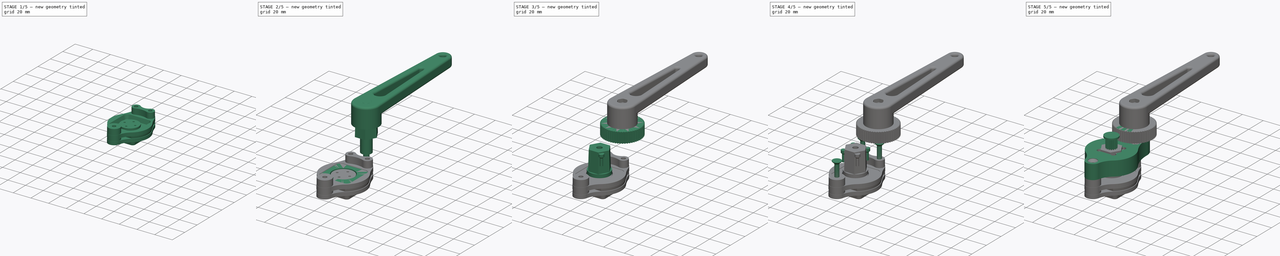
[diagram: build sequence overview — one tinted view per stage of 5, left to right]
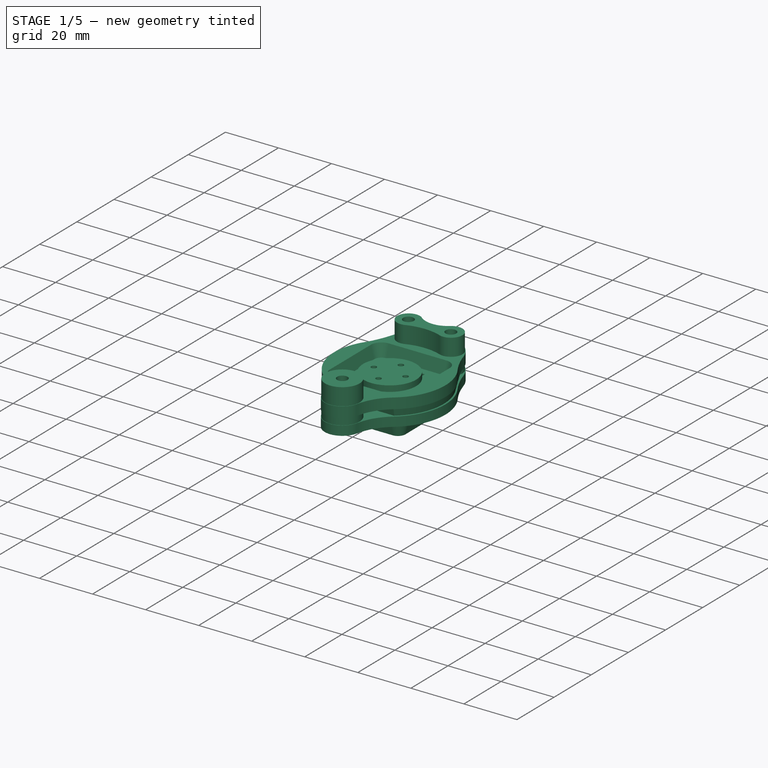
[diagram: stage 1 of 5 — iso view after this stage's code; geometry added in this stage tinted green]
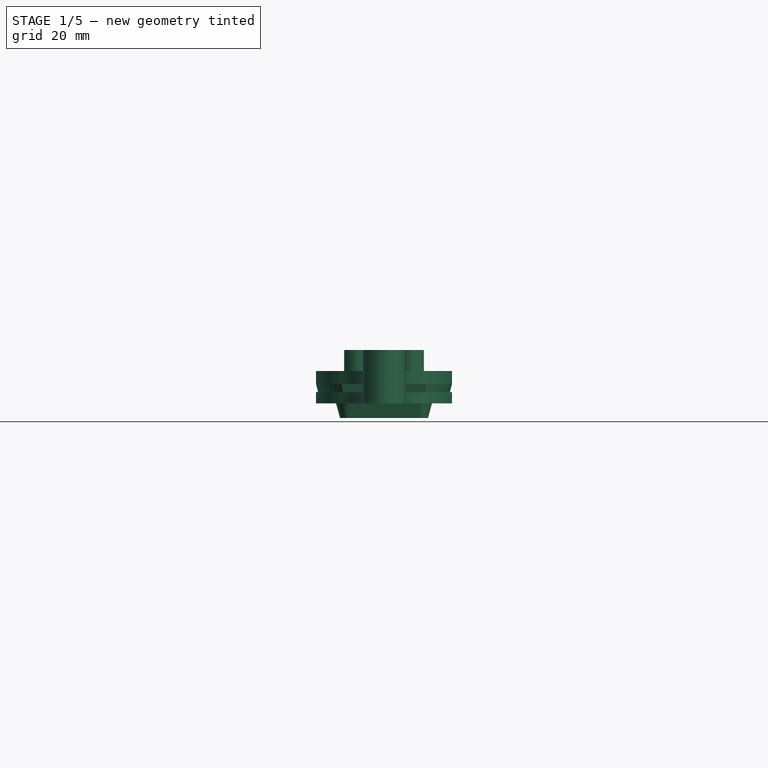
[diagram: stage 1 of 5 — front view after this stage's code; geometry added in this stage tinted green]
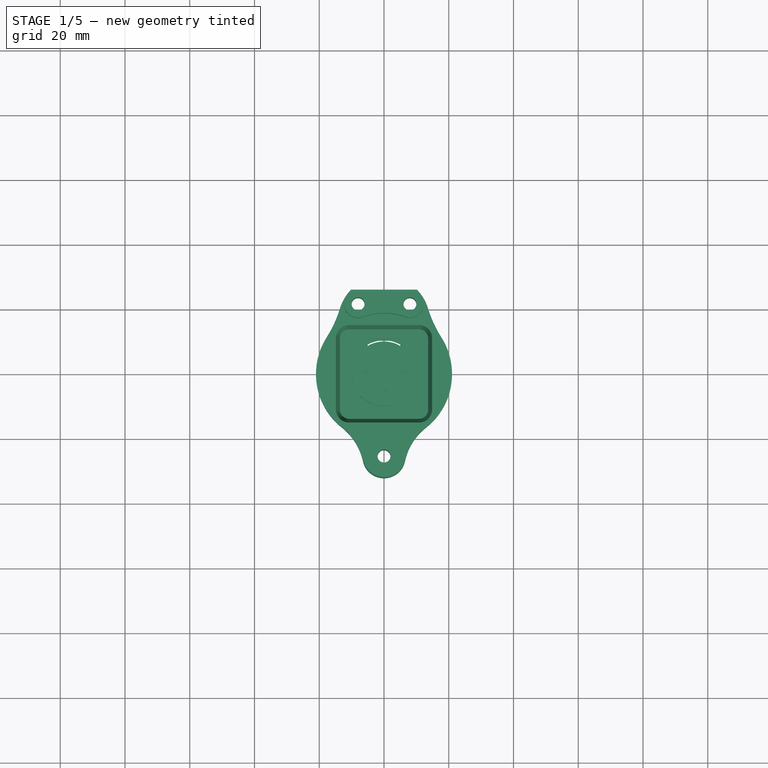
[diagram: stage 1 of 5 — top view after this stage's code; geometry added in this stage tinted green]
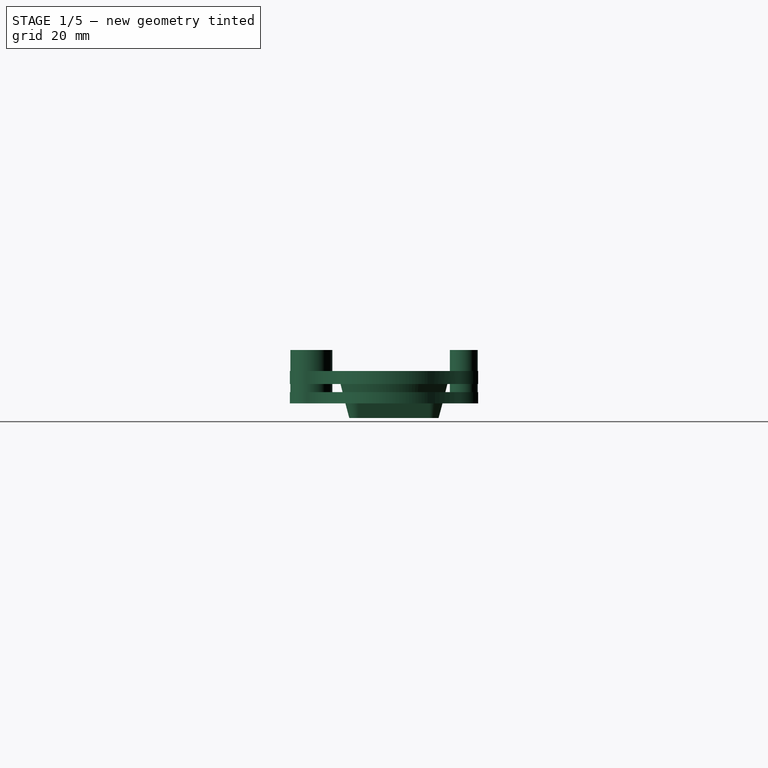
[diagram: stage 1 of 5 — right view after this stage's code; geometry added in this stage tinted green]
FCSTD DOCUMENT  (FreeCAD 1.0R39109 (Git))
Label: leg
License: All rights reserved
LicenseURL: https://en.wikipedia.org/wiki/All_rights_reserved
objects: Sketcher::SketchObject×51, PartDesign::Pad×30, Part::Cylinder×26, Part::MultiFuse×18, PartDesign::Body×15, PartDesign::Hole×12, PartDesign::Pocket×11, Part::Cut×8, Part::Cone×7, Part::FeaturePython×6, Part::Feature×4, PartDesign::Fillet×2, Part::Box×1
note: 352 computed .brp shape members not serialized (recipe doc carries the construction recipe); baked Part::Feature solids carry a one-line shape summary decoded from their .brp

FEATURE [Sketcher::SketchObject] Sketch020  label="SketchMiddle"
  ArcFitTolerance = 1e-06
  AttachmentOffset = pos=(0,0,-2) rot=(0,0,1;0rad)
  AttachmentSupport = -> [XY_Plane008]
  FullyConstrained = true
  MakeInternals = false
  MapMode = 5
  Placement = pos=(0,0,-2) rot=(0,0,1;0rad)
  sketch-geometry (6):
    g0: Circle [constr] CenterX=0 CenterY=0 CenterZ=0 NormalX=0 NormalY=0 NormalZ=1 AngleXU=0 Radius=6
    g1: Circle CenterX=-6 CenterY=0 CenterZ=0 NormalX=0 NormalY=0 NormalZ=1 AngleXU=0 Radius=1
    g2: Circle CenterX=6 CenterY=0 CenterZ=0 NormalX=0 NormalY=0 NormalZ=1 AngleXU=0 Radius=1
    g3: Circle CenterX=0 CenterY=-6 CenterZ=0 NormalX=0 NormalY=0 NormalZ=1 AngleXU=0 Radius=1
    g4: Circle CenterX=0 CenterY=6 CenterZ=0 NormalX=0 NormalY=0 NormalZ=1 AngleXU=0 Radius=1
    g5: Circle CenterX=0 CenterY=0 CenterZ=0 NormalX=0 NormalY=0 NormalZ=1 AngleXU=0 Radius=10
  constraints (14):
    c: Coincident(g0,g-1)
    c: PointOnObject(g1,g0)
    c: PointOnObject(g1,g-1)
    c: Symmetric(g1,g2,g-2)
    c: Diameter(g1) = 2
    c: PointOnObject(g3,g-2)
    c: PointOnObject(g3,g0)
    c: Diameter(g0) = 12
    c: Equal(g1,g4)
    c: Equal(g4,g2)
    c: Equal(g2,g3)
    c: Symmetric(g4,g3,g-1)
    c: Coincident(g5,g0)
    c: Diameter(g5) = 20
FEATURE [PartDesign::Pad] Pad010
  Direction = (0,0,1)
  Length = 1
  Length2 = 10
  Profile = -> Sketch020
  ReferenceAxis = -> Sketch020 [N_Axis]
  Refine = true
  Suppressed = false
  Type = 0
FEATURE [Sketcher::SketchObject] Sketch018  label="SketchTop"
  ArcFitTolerance = 1e-06
  AttachmentSupport = -> [Pad010]
  FullyConstrained = true
  MakeInternals = false
  MapMode = 5
  Placement = pos=(0,0,-2) rot=(1,0,0;3.14159rad)
  sketch-geometry (6):
    g0: Circle [constr] CenterX=0 CenterY=0 CenterZ=0 NormalX=0 NormalY=0 NormalZ=1 AngleXU=0 Radius=6
    g1: Circle CenterX=-6 CenterY=0 CenterZ=0 NormalX=0 NormalY=0 NormalZ=1 AngleXU=0 Radius=1
    g2: Circle CenterX=6 CenterY=0 CenterZ=0 NormalX=0 NormalY=0 NormalZ=1 AngleXU=0 Radius=1
    g3: Circle CenterX=0 CenterY=-6 CenterZ=0 NormalX=0 NormalY=0 NormalZ=1 AngleXU=0 Radius=1
    g4: Circle CenterX=0 CenterY=6 CenterZ=0 NormalX=0 NormalY=0 NormalZ=1 AngleXU=0 Radius=1
    g5: Circle CenterX=0 CenterY=0 CenterZ=0 NormalX=0 NormalY=0 NormalZ=1 AngleXU=0 Radius=10
  constraints (14):
    c: Coincident(g0,g-1)
    c: PointOnObject(g1,g0)
    c: PointOnObject(g1,g-1)
    c: Symmetric(g1,g2,g-2)
    c: Diameter(g1) = 2
    c: PointOnObject(g3,g-2)
    c: PointOnObject(g3,g0)
    c: Diameter(g0) = 12
    c: Equal(g1,g4)
    c: Equal(g4,g2)
    c: Equal(g2,g3)
    c: Symmetric(g4,g3,g-1)
    c: Coincident(g5,g0)
    c: Diameter(g5) = 20
FEATURE [PartDesign::Pad] Pad011
  BaseFeature = -> Pad010
  Direction = (0,0,-1)
  Length = 1.2
  Length2 = 10
  Profile = -> Sketch018
  ReferenceAxis = -> Sketch018 [N_Axis]
  Refine = true
  Suppressed = false
  Type = 0
FEATURE [PartDesign::Body] Body008  label="MagnetHolderTopAS5600"
  AllowCompound = false
  Group = -> [Sketch005,Sketch018,Sketch020,Pad010,Pad011,Pocket,Sketch021,Pocket001,Sketch037,Pad023]
  Origin = -> Origin008
  Placement = pos=(0,0,-2) rot=(0,0,1;0rad)
  Tip = -> Pad023
FEATURE [Sketcher::SketchObject] Sketch040  label="SketchMiddle001"
  ArcFitTolerance = 1e-06
  AttachmentOffset = pos=(0,0,-2) rot=(0,0,1;0rad)
  AttachmentSupport = -> [XY_Plane013]
  FullyConstrained = true
  MakeInternals = false
  MapMode = 5
  Placement = pos=(0,0,-2) rot=(0,0,1;0rad)
  sketch-geometry (6):
    g0: Circle [constr] CenterX=0 CenterY=0 CenterZ=0 NormalX=0 NormalY=0 NormalZ=1 AngleXU=0 Radius=6
    g1: Circle CenterX=-6 CenterY=0 CenterZ=0 NormalX=0 NormalY=0 NormalZ=1 AngleXU=0 Radius=1
    g2: Circle CenterX=6 CenterY=0 CenterZ=0 NormalX=0 NormalY=0 NormalZ=1 AngleXU=0 Radius=1
    g3: Circle CenterX=0 CenterY=-6 CenterZ=0 NormalX=0 NormalY=0 NormalZ=1 AngleXU=0 Radius=1
    g4: Circle CenterX=0 CenterY=6 CenterZ=0 NormalX=0 NormalY=0 NormalZ=1 AngleXU=0 Radius=1
    g5: Circle CenterX=0 CenterY=0 CenterZ=0 NormalX=0 NormalY=0 NormalZ=1 AngleXU=0 Radius=10
  constraints (14):
    c: Coincident(g0,g-1)
    c: PointOnObject(g1,g0)
    c: PointOnObject(g1,g-1)
    c: Symmetric(g1,g2,g-2)
    c: Diameter(g1) = 2
    c: PointOnObject(g3,g-2)
    c: PointOnObject(g3,g0)
    c: Diameter(g0) = 12
    c: Equal(g1,g4)
    c: Equal(g4,g2)
    c: Equal(g2,g3)
    c: Symmetric(g4,g3,g-1)
    c: Coincident(g5,g0)
    c: Diameter(g5) = 20
FEATURE [PartDesign::Pad] Pad024
  Direction = (0,0,1)
  Length = 1
  Length2 = 10
  Profile = -> Sketch040
  ReferenceAxis = -> Sketch040 [N_Axis]
  Refine = true
  Suppressed = false
  Type = 0
FEATURE [Sketcher::SketchObject] Sketch039  label="SketchTop001"
  ArcFitTolerance = 1e-06
  AttachmentSupport = -> [Pad024]
  FullyConstrained = true
  MakeInternals = false
  MapMode = 5
  Placement = pos=(0,0,-2) rot=(1,0,0;3.14159rad)
  sketch-geometry (6):
    g0: Circle [constr] CenterX=0 CenterY=0 CenterZ=0 NormalX=0 NormalY=0 NormalZ=1 AngleXU=0 Radius=6
    g1: Circle CenterX=-6 CenterY=0 CenterZ=0 NormalX=0 NormalY=0 NormalZ=1 AngleXU=0 Radius=1
    g2: Circle CenterX=6 CenterY=0 CenterZ=0 NormalX=0 NormalY=0 NormalZ=1 AngleXU=0 Radius=1
    g3: Circle CenterX=0 CenterY=-6 CenterZ=0 NormalX=0 NormalY=0 NormalZ=1 AngleXU=0 Radius=1
    g4: Circle CenterX=0 CenterY=6 CenterZ=0 NormalX=0 NormalY=0 NormalZ=1 AngleXU=0 Radius=1
    g5: Circle CenterX=0 CenterY=0 CenterZ=0 NormalX=0 NormalY=0 NormalZ=1 AngleXU=0 Radius=10
  constraints (14):
    c: Coincident(g0,g-1)
    c: PointOnObject(g1,g0)
    c: PointOnObject(g1,g-1)
    c: Symmetric(g1,g2,g-2)
    c: Diameter(g1) = 2
    c: PointOnObject(g3,g-2)
    c: PointOnObject(g3,g0)
    c: Diameter(g0) = 12
    c: Equal(g1,g4)
    c: Equal(g4,g2)
    c: Equal(g2,g3)
    c: Symmetric(g4,g3,g-1)
    c: Coincident(g5,g0)
    c: Diameter(g5) = 20
FEATURE [PartDesign::Pad] Pad025
  BaseFeature = -> Pad024
  Direction = (0,0,-1)
  Length = 1.2
  Length2 = 10
  Profile = -> Sketch039
  ReferenceAxis = -> Sketch039 [N_Axis]
  Refine = true
  Suppressed = false
  Type = 0
FEATURE [Sketcher::SketchObject] Sketch038  label="SketchTopPocket001"
  ArcFitTolerance = 1e-06
  AttachmentSupport = -> [Pad025]
  FullyConstrained = true
  MakeInternals = false
  MapMode = 5
  Placement = pos=(0,0,-3.2) rot=(1,0,0;3.14159rad)
  sketch-geometry (10):
    g0: Circle [constr] CenterX=0 CenterY=0 CenterZ=0 NormalX=0 NormalY=0 NormalZ=1 AngleXU=0 Radius=6
    g1: ArcOfCircle CenterX=-22.2126 CenterY=-22.2126 CenterZ=0 NormalX=0 NormalY=0 NormalZ=1 AngleXU=0 Radius=25 StartAngle=0.630502 EndAngle=0.940295
    g2: ArcOfCircle CenterX=7e-16 CenterY=-6 CenterZ=0 NormalX=0 NormalY=0 NormalZ=1 AngleXU=0 Radius=2.5 StartAngle=3.77209 EndAngle=5.65268
    g3: ArcOfCircle CenterX=22.2126 CenterY=-22.2126 CenterZ=0 NormalX=0 NormalY=0 NormalZ=1 AngleXU=0 Radius=25 StartAngle=2.2013 EndAngle=2.51109
    g4: ArcOfCircle CenterX=6 CenterY=-1e-16 CenterZ=0 NormalX=0 NormalY=0 NormalZ=1 AngleXU=0 Radius=2.5 StartAngle=5.34289 EndAngle=7.22348
    g5: ArcOfCircle CenterX=22.2126 CenterY=22.2126 CenterZ=0 NormalX=0 NormalY=0 NormalZ=1 AngleXU=0 Radius=25 StartAngle=3.77209 EndAngle=4.08189
    g6: ArcOfCircle CenterX=5e-16 CenterY=6 CenterZ=0 NormalX=0 NormalY=0 NormalZ=1 AngleXU=0 Radius=2.5 StartAngle=0.630502 EndAngle=2.51109
    g7: ArcOfCircle CenterX=-22.2126 CenterY=22.2126 CenterZ=0 NormalX=0 NormalY=0 NormalZ=1 AngleXU=0 Radius=25 StartAngle=5.34289 EndAngle=5.65268
    g8: ArcOfCircle CenterX=-6 CenterY=-3.4e-15 CenterZ=0 NormalX=0 NormalY=0 NormalZ=1 AngleXU=0 Radius=2.5 StartAngle=2.2013 EndAngle=4.08189
    g9: Circle CenterX=0 CenterY=0 CenterZ=0 NormalX=0 NormalY=0 NormalZ=1 AngleXU=0 Radius=10
  constraints (26):
    c: Coincident(g0,g-1)
    c: Diameter(g0) = 12
    c: Radius(g1) = 25
    c: Tangent(g3,g2) = 1.5708
    c: Tangent(g2,g1) = 1.5708
    c: Tangent(g8,g7) = 1.5708
    c: Tangent(g8,g1) = 1.5708
    c: Tangent(g4,g3) = 1.5708
    c: Tangent(g5,g4) = 1.5708
    c: Tangent(g6,g5) = 1.5708
    c: Tangent(g7,g6) = 1.5708
    c: Radius(g4) = 2.5
    c: PointOnObject(g8,g0)
    c: PointOnObject(g6,g0)
    c: Equal(g1,g7)
    c: Equal(g7,g5)
    c: Equal(g5,g3)
    c: Equal(g4,g6)
    c: Equal(g6,g8)
    c: Equal(g8,g2)
    c: PointOnObject(g4,g0)
    c: PointOnObject(g2,g0)
    c: Symmetric(g5,g3,g-1)
    c: Symmetric(g1,g3,g-2)
    c: Diameter(g9) = 20
    c: Coincident(g9,g0)
FEATURE [PartDesign::Pocket] Pocket004
  BaseFeature = -> Pad025
  Direction = (0,0,1)
  Length = 1
  Length2 = 5
  Profile = -> Sketch038
  ReferenceAxis = -> Sketch038 [N_Axis]
  Refine = true
  Suppressed = false
  TaperAngle = 25
  Type = 0
FEATURE [Sketcher::SketchObject] Sketch041  label="SketchTopScrews001"
  ArcFitTolerance = 1e-06
  AttachmentSupport = -> [Pocket004]
  FullyConstrained = true
  MakeInternals = false
  MapMode = 5
  Placement = pos=(0,0,-3.2) rot=(1,0,0;3.14159rad)
  sketch-geometry (5):
    g0: Circle [constr] CenterX=0 CenterY=0 CenterZ=0 NormalX=0 NormalY=0 NormalZ=1 AngleXU=0 Radius=6
    g1: Circle CenterX=-6 CenterY=0 CenterZ=0 NormalX=0 NormalY=0 NormalZ=1 AngleXU=0 Radius=1.85
    g2: Circle CenterX=6 CenterY=0 CenterZ=0 NormalX=0 NormalY=0 NormalZ=1 AngleXU=0 Radius=1.85
    g3: Circle CenterX=0 CenterY=-6 CenterZ=0 NormalX=0 NormalY=0 NormalZ=1 AngleXU=0 Radius=1.85
    g4: Circle CenterX=0 CenterY=6 CenterZ=0 NormalX=0 NormalY=0 NormalZ=1 AngleXU=0 Radius=1.85
  constraints (12):
    c: Coincident(g0,g-1)
    c: PointOnObject(g1,g0)
    c: PointOnObject(g1,g-1)
    c: Symmetric(g1,g2,g-2)
    c: Diameter(g1) = 3.7
    c: PointOnObject(g3,g-2)
    c: PointOnObject(g3,g0)
    c: Diameter(g0) = 12
    c: Equal(g1,g4)
    c: Equal(g4,g2)
    c: Equal(g2,g3)
    c: Symmetric(g4,g3,g-1)
FEATURE [PartDesign::Pocket] Pocket005
  BaseFeature = -> Pocket004
  Direction = (0,0,1)
  Length = 1
  Length2 = 5
  Profile = -> Sketch041
  ReferenceAxis = -> Sketch041 [N_Axis]
  Refine = true
  Suppressed = false
  TaperAngle = -41
  Type = 0
FEATURE [Sketcher::SketchObject] Sketch042  label="SketchTopMagnet001"
  ArcFitTolerance = 1e-06
  AttachmentSupport = -> [Pocket005]
  FullyConstrained = true
  MakeInternals = false
  MapMode = 5
  Placement = pos=(0,0,-3.2) rot=(1,0,0;3.14159rad)
  sketch-geometry (7):
    g0: Circle [constr] CenterX=0 CenterY=0 CenterZ=0 NormalX=0 NormalY=0 NormalZ=1 AngleXU=0 Radius=6
    g1: Circle [constr] CenterX=-6 CenterY=0 CenterZ=0 NormalX=0 NormalY=0 NormalZ=1 AngleXU=0 Radius=1
    g2: Circle [constr] CenterX=6 CenterY=0 CenterZ=0 NormalX=0 NormalY=0 NormalZ=1 AngleXU=0 Radius=1
    g3: Circle [constr] CenterX=0 CenterY=-6 CenterZ=0 NormalX=0 NormalY=0 NormalZ=1 AngleXU=0 Radius=1
    g4: Circle [constr] CenterX=0 CenterY=6 CenterZ=0 NormalX=0 NormalY=0 NormalZ=1 AngleXU=0 Radius=1
    g5: Circle CenterX=0 CenterY=0 CenterZ=0 NormalX=0 NormalY=0 NormalZ=1 AngleXU=0 Radius=4.95
    g6: Circle CenterX=0 CenterY=0 CenterZ=0 NormalX=0 NormalY=0 NormalZ=1 AngleXU=0 Radius=7
  constraints (16):
    c: Coincident(g0,g-1)
    c: PointOnObject(g1,g0)
    c: PointOnObject(g1,g-1)
    c: Symmetric(g1,g2,g-2)
    c: Diameter(g1) = 2
    c: PointOnObject(g3,g-2)
    c: PointOnObject(g3,g0)
    c: Diameter(g0) = 12
    c: Equal(g1,g4)
    c: Equal(g4,g2)
    c: Equal(g2,g3)
    c: Symmetric(g4,g3,g-1)
    c: Coincident(g5,g0)
    c: Diameter(g5) = 9.9
    c: Coincident(g6,g0)
    c: Diameter(g6) = 14
FEATURE [Sketcher::SketchObject] Sketch043  label="SketchTopScrews002"
  ArcFitTolerance = 1e-06
  AttachmentSupport = -> [Pocket004]
  FullyConstrained = true
  MakeInternals = false
  MapMode = 5
  Placement = pos=(0,0,-3.2) rot=(1,0,0;3.14159rad)
  sketch-geometry (5):
    g0: Circle [constr] CenterX=0 CenterY=0 CenterZ=0 NormalX=0 NormalY=0 NormalZ=1 AngleXU=0 Radius=6
    g1: Circle CenterX=-6 CenterY=0 CenterZ=0 NormalX=0 NormalY=0 NormalZ=1 AngleXU=0 Radius=1.85
    g2: Circle CenterX=6 CenterY=0 CenterZ=0 NormalX=0 NormalY=0 NormalZ=1 AngleXU=0 Radius=1.85
    g3: Circle CenterX=0 CenterY=-6 CenterZ=0 NormalX=0 NormalY=0 NormalZ=1 AngleXU=0 Radius=1.85
    g4: Circle CenterX=0 CenterY=6 CenterZ=0 NormalX=0 NormalY=0 NormalZ=1 AngleXU=0 Radius=1.85
  constraints (12):
    c: Coincident(g0,g-1)
    c: PointOnObject(g1,g0)
    c: PointOnObject(g1,g-1)
    c: Symmetric(g1,g2,g-2)
    c: Diameter(g1) = 3.7
    c: PointOnObject(g3,g-2)
    c: PointOnObject(g3,g0)
    c: Diameter(g0) = 12
    c: Equal(g1,g4)
    c: Equal(g4,g2)
    c: Equal(g2,g3)
    c: Symmetric(g4,g3,g-1)
FEATURE [PartDesign::Pad] Pad026
  BaseFeature = -> Pocket005
  Direction = (0,0,-1)
  Length = 2.4
  Length2 = 10
  Profile = -> Sketch042
  ReferenceAxis = -> Sketch042 [N_Axis]
  Refine = true
  Suppressed = false
  Type = 0
FEATURE [PartDesign::Pocket] Pocket006
  BaseFeature = -> Pad026
  Direction = (0,0,1)
  Length = 5
  Length2 = 5
  Profile = -> Sketch043
  ReferenceAxis = -> Sketch043 [N_Axis]
  Refine = true
  Reversed = true
  Suppressed = false
  Type = 0
FEATURE [PartDesign::Body] Body012  label="MagnetHolderTopMT6835"
  AllowCompound = false
  Group = -> [Sketch038,Sketch039,Sketch040,Pad024,Pad025,Pocket004,Sketch041,Pocket005,Sketch042,Sketch043,Pad026,Pocket006]
  Origin = -> Origin012
  Placement = pos=(0,0,-2) rot=(0,0,1;0rad)
  Tip = -> Pocket006
FEATURE [Sketcher::SketchObject] Sketch046  label="EncoderMiddleBase002"
  ArcFitTolerance = 1e-06
  AttachmentSupport = -> [XY_Plane016]
  FullyConstrained = true
  MakeInternals = false
  MapMode = 5
  sketch-geometry (14):
    g0: Circle CenterX=4.4e-15 CenterY=0 CenterZ=0 NormalX=0 NormalY=0 NormalZ=1 AngleXU=0 Radius=10.5
    g1: ArcOfCircle CenterX=9e-16 CenterY=16.09 CenterZ=0 NormalX=0 NormalY=0 NormalZ=1 AngleXU=0 Radius=14.21 StartAngle=0.297237 EndAngle=0.771758
    g2: ArcOfCircle CenterX=-48.9644 CenterY=31.0884 CenterZ=0 NormalX=0 NormalY=0 NormalZ=1 AngleXU=0 Radius=37 StartAngle=5.71749 EndAngle=5.98595
    g3: ArcOfCircle CenterX=48.9644 CenterY=31.0884 CenterZ=0 NormalX=0 NormalY=0 NormalZ=1 AngleXU=0 Radius=37 StartAngle=3.43883 EndAngle=3.70729
    g4: Circle [constr] CenterX=3e-16 CenterY=-25.5 CenterZ=0 NormalX=0 NormalY=0 NormalZ=1 AngleXU=0 Radius=2
    g5: ArcOfCircle CenterX=3e-16 CenterY=-25.5 CenterZ=0 NormalX=0 NormalY=0 NormalZ=1 AngleXU=0 Radius=6.65 StartAngle=3.35275 EndAngle=6.07203
    g6: ArcOfCircle CenterX=24.1221 CenterY=-30.6706 CenterZ=0 NormalX=0 NormalY=0 NormalZ=1 AngleXU=0 Radius=18.02 StartAngle=2.23724 EndAngle=2.93044
    g7: ArcOfCircle CenterX=-24.1221 CenterY=-30.6706 CenterZ=0 NormalX=0 NormalY=0 NormalZ=1 AngleXU=0 Radius=18.02 StartAngle=0.211157 EndAngle=0.904349
    g8: ArcOfCircle CenterX=4.4e-15 CenterY=0 CenterZ=0 NormalX=0 NormalY=0 NormalZ=1 AngleXU=0 Radius=21 StartAngle=2.57589 EndAngle=4.04594
    g9: ArcOfCircle CenterX=4.4e-15 CenterY=0 CenterZ=0 NormalX=0 NormalY=0 NormalZ=1 AngleXU=0 Radius=21 StartAngle=5.37884 EndAngle=6.84888
    g10: Circle [constr] CenterX=-8 CenterY=21.5 CenterZ=0 NormalX=0 NormalY=0 NormalZ=1 AngleXU=0 Radius=2
    g11: Circle [constr] CenterX=8 CenterY=21.5 CenterZ=0 NormalX=0 NormalY=0 NormalZ=1 AngleXU=0 Radius=2
    g12: LineSegment StartX=-10.1841 StartY=26 StartZ=0 EndX=10.1841 EndY=26 EndZ=0
    g13: ArcOfCircle CenterX=9e-16 CenterY=16.09 CenterZ=0 NormalX=0 NormalY=0 NormalZ=1 AngleXU=0 Radius=14.21 StartAngle=2.36983 EndAngle=2.84436
  constraints (35):
    c: Symmetric(g13,g1,g-2)
    c: Tangent(g3,g1) = 1.5708
    c: Coincident(g5,g4)
    c: Symmetric(g5,g5,g-2)
    c: Radius(g5) = 6.65
    c: Symmetric(g7,g6,g-2)
    c: DistanceY(g4) = -25.5
    c: Tangent(g5,g6) = 1.5708
    c: Tangent(g5,g7) = 1.5708
    c: Radius(g6) = 18.02
    c: Coincident(g8,g0)
    c: Coincident(g9,g0)
    c: Tangent(g8,g2) = 1.5708
    c: Tangent(g9,g3) = 1.5708
    c: Tangent(g6,g9) = 1.5708
    c: Tangent(g7,g8) = 1.5708
    c: Radius(g1) = 14.21
    c: Radius(g8) = 21
    c: Radius(g2) = 37
    c: DistanceY(g0) = 0
    c: Diameter(g0) = 21
    c: DistanceY(g0,g1) = 16.09
    c: Diameter(g10) = 4
    c: DistanceY(g10) = 21.5
    c: DistanceX(g10) = -8
    c: Equal(g11,g10)
    c: Equal(g4,g10)
    c: Symmetric(g11,g10,g-2)
    c: Horizontal(g12)
    c: DistanceY(g12) = 26
    c: Equal(g1,g13)
    c: Coincident(g1,g12)
    c: Coincident(g1,g13)
    c: Coincident(g12,g13)
    c: Tangent(g2,g13) = 1.5708
FEATURE [PartDesign::Pad] Pad031  label="EncoderMiddleBasePad001"
  Direction = (0,0,1)
  Length = 3.5
  Length2 = 10
  Profile = -> Sketch046
  ReferenceAxis = -> Sketch046 [N_Axis]
  Refine = true
  Suppressed = false
  Type = 0
FEATURE [Sketcher::SketchObject] Sketch047  label="EncodeScrewsHoles001"
  ArcFitTolerance = 1e-06
  AttachmentSupport = -> [XY_Plane016]
  FullyConstrained = true
  MakeInternals = false
  MapMode = 5
  sketch-geometry (15):
    g0: Circle [constr] CenterX=2.9e-15 CenterY=0 CenterZ=0 NormalX=0 NormalY=0 NormalZ=1 AngleXU=0 Radius=10.5
    g1: ArcOfCircle [constr] CenterX=4e-16 CenterY=16.09 CenterZ=0 NormalX=0 NormalY=0 NormalZ=1 AngleXU=0 Radius=14.21 StartAngle=0.297237 EndAngle=2.84436
    g2: ArcOfCircle [constr] CenterX=-48.9644 CenterY=31.0884 CenterZ=0 NormalX=0 NormalY=0 NormalZ=1 AngleXU=0 Radius=37 StartAngle=5.71749 EndAngle=5.98595
    g3: ArcOfCircle [constr] CenterX=48.9644 CenterY=31.0884 CenterZ=0 NormalX=0 NormalY=0 NormalZ=1 AngleXU=0 Radius=37 StartAngle=3.43883 EndAngle=3.70729
    g4: Circle CenterX=0 CenterY=-25.5 CenterZ=0 NormalX=0 NormalY=0 NormalZ=1 AngleXU=0 Radius=2
    g5: ArcOfCircle [constr] CenterX=0 CenterY=-25.5 CenterZ=0 NormalX=0 NormalY=0 NormalZ=1 AngleXU=0 Radius=6.65 StartAngle=3.35275 EndAngle=6.07203
    g6: ArcOfCircle [constr] CenterX=24.1221 CenterY=-30.6706 CenterZ=0 NormalX=0 NormalY=0 NormalZ=1 AngleXU=0 Radius=18.02 StartAngle=2.23724 EndAngle=2.93044
    g7: ArcOfCircle [constr] CenterX=-24.1221 CenterY=-30.6706 CenterZ=0 NormalX=0 NormalY=0 NormalZ=1 AngleXU=0 Radius=18.02 StartAngle=0.211157 EndAngle=0.904349
    g8: ArcOfCircle [constr] CenterX=2.9e-15 CenterY=0 CenterZ=0 NormalX=0 NormalY=0 NormalZ=1 AngleXU=0 Radius=21 StartAngle=2.57589 EndAngle=4.04594
    g9: ArcOfCircle [constr] CenterX=2.9e-15 CenterY=0 CenterZ=0 NormalX=0 NormalY=0 NormalZ=1 AngleXU=0 Radius=21 StartAngle=5.37884 EndAngle=6.84888
    g10: Circle CenterX=-8 CenterY=21.5 CenterZ=0 NormalX=0 NormalY=0 NormalZ=1 AngleXU=0 Radius=2
    g11: Circle CenterX=8 CenterY=21.5 CenterZ=0 NormalX=0 NormalY=0 NormalZ=1 AngleXU=0 Radius=2
    g12: Circle CenterX=0 CenterY=-25.5 CenterZ=0 NormalX=0 NormalY=0 NormalZ=1 AngleXU=0 Radius=4
    g13: Circle CenterX=-8 CenterY=21.5 CenterZ=0 NormalX=0 NormalY=0 NormalZ=1 AngleXU=0 Radius=4
    g14: Circle CenterX=8 CenterY=21.5 CenterZ=0 NormalX=0 NormalY=0 NormalZ=1 AngleXU=0 Radius=4
  constraints (35):
    c: Symmetric(g1,g1,g-2)
    c: Tangent(g2,g1) = 1.5708
    c: Tangent(g3,g1) = 1.5708
    c: Coincident(g5,g4)
    c: Symmetric(g5,g5,g-2)
    c: Radius(g5) = 6.65
    c: Symmetric(g7,g6,g-2)
    c: DistanceY(g4) = -25.5
    c: Tangent(g5,g6) = 1.5708
    c: Tangent(g5,g7) = 1.5708
    c: Radius(g6) = 18.02
    c: Coincident(g8,g0)
    c: Coincident(g9,g0)
    c: Tangent(g8,g2) = 1.5708
    c: Tangent(g9,g3) = 1.5708
    c: Tangent(g6,g9) = 1.5708
    c: Tangent(g7,g8) = 1.5708
    c: Radius(g1) = 14.21
    c: Radius(g8) = 21
    c: Radius(g2) = 37
    c: DistanceY(g0) = 0
    c: Diameter(g0) = 21
    c: DistanceY(g0,g1) = 16.09
    c: Diameter(g10) = 4
    c: DistanceY(g10) = 21.5
    c: DistanceX(g10) = -8
    c: Symmetric(g11,g10,g-2)
    c: Coincident(g12,g4)
    c: Coincident(g13,g10)
    c: Coincident(g14,g11)
    c: Diameter(g13) = 8
    c: Diameter(g14) = 8
    c: Diameter(g11) = 4
    c: Diameter(g12) = 8
    c: Diameter(g4) = 4
FEATURE [Sketcher::SketchObject] Sketch049  label="PlatformSketch001"
  ArcFitTolerance = 1e-06
  AttachmentSupport = -> [Pad031]
  FullyConstrained = true
  MakeInternals = false
  MapMode = 5
  Placement = pos=(0,0,3.5) rot=(0,0,1;0rad)
  sketch-geometry (12):
    g0: LineSegment StartX=-14.8 StartY=11 StartZ=0 EndX=-14.8 EndY=-11 EndZ=0
    g1: LineSegment StartX=-10.8 StartY=-15 StartZ=0 EndX=10.8 EndY=-15 EndZ=0
    g2: LineSegment StartX=14.8 StartY=-11 StartZ=0 EndX=14.8 EndY=11 EndZ=0
    g3: LineSegment StartX=10.8 StartY=15 StartZ=0 EndX=-10.8 EndY=15 EndZ=0
    g4: ArcOfCircle CenterX=-10.8 CenterY=11 CenterZ=0 NormalX=0 NormalY=0 NormalZ=1 AngleXU=0 Radius=4 StartAngle=1.5708 EndAngle=3.14159
    g5: GeomPoint [constr] X=-14.8 Y=15 Z=0
    g6: ArcOfCircle CenterX=10.8 CenterY=11 CenterZ=0 NormalX=0 NormalY=0 NormalZ=1 AngleXU=0 Radius=4 StartAngle=1e-16 EndAngle=1.5708
    g7: GeomPoint [constr] X=14.8 Y=15 Z=0
    g8: ArcOfCircle CenterX=-10.8 CenterY=-11 CenterZ=0 NormalX=0 NormalY=0 NormalZ=1 AngleXU=0 Radius=4 StartAngle=3.14159 EndAngle=4.71239
    g9: GeomPoint [constr] X=-14.8 Y=-15 Z=0
    g10: ArcOfCircle CenterX=10.8 CenterY=-11 CenterZ=0 NormalX=0 NormalY=0 NormalZ=1 AngleXU=0 Radius=4 StartAngle=4.71239 EndAngle=6.28319
    g11: GeomPoint [constr] X=14.8 Y=-15 Z=0
  constraints (26):
    c: Vertical(g2)
    c: Horizontal(g1)
    c: Horizontal(g3)
    c: PointOnObject(g5,g0)
    c: PointOnObject(g5,g3)
    c: Tangent(g0,g4) = -1.5708
    c: Tangent(g3,g4) = -1.5708
    c: PointOnObject(g7,g2)
    c: Tangent(g2,g6) = -1.5708
    c: Tangent(g3,g6) = -1.5708
    c: PointOnObject(g9,g0)
    c: PointOnObject(g9,g1)
    c: Tangent(g0,g8) = -1.5708
    c: Tangent(g1,g8) = -1.5708
    c: PointOnObject(g11,g1)
    c: PointOnObject(g11,g2)
    c: Tangent(g1,g10) = -1.5708
    c: Tangent(g2,g10) = -1.5708
    c: Equal(g6,g10)
    c: Radius(g4) = 4
    c: DistanceY(g0,g0) = 22
    c: DistanceY(g5) = 15
    c: DistanceX(g5) = -14.8
    c: Equal(g4,g6)
    c: Symmetric(g5,g7,g-2)
    c: Symmetric(g5,g9,g-1)
FEATURE [PartDesign::Pad] Pad032  label="EncoderPlatformPad001"
  BaseFeature = -> Pad031
  Direction = (0,0,1)
  Length = 4.5
  Length2 = 10
  Profile = -> Sketch049
  ReferenceAxis = -> Sketch049 [N_Axis]
  Refine = true
  Suppressed = false
  TaperAngle = -15
  Type = 0
FEATURE [Sketcher::SketchObject] Sketch050  label="Base001"
  ArcFitTolerance = 1e-06
  AttachmentSupport = -> [XY_Plane017]
  FullyConstrained = true
  MakeInternals = false
  MapMode = 5
  sketch-geometry (12):
    g0: LineSegment StartX=-11.2 StartY=8.9 StartZ=0 EndX=-11.2 EndY=-8.9 EndZ=0
    g1: LineSegment StartX=-8.9 StartY=-11.2 StartZ=0 EndX=8.9 EndY=-11.2 EndZ=0
    g2: LineSegment StartX=11.2 StartY=-8.9 StartZ=0 EndX=11.2 EndY=8.9 EndZ=0
    g3: LineSegment StartX=8.9 StartY=11.2 StartZ=0 EndX=-8.9 EndY=11.2 EndZ=0
    g4: ArcOfCircle CenterX=-8.9 CenterY=-8.9 CenterZ=0 NormalX=0 NormalY=0 NormalZ=1 AngleXU=0 Radius=2.3 StartAngle=3.14159 EndAngle=4.71239
    g5: GeomPoint [constr] X=-11.2 Y=-11.2 Z=0
    g6: ArcOfCircle CenterX=8.9 CenterY=8.9 CenterZ=0 NormalX=0 NormalY=0 NormalZ=1 AngleXU=0 Radius=2.3 StartAngle=1e-16 EndAngle=1.5708
    g7: GeomPoint [constr] X=11.2 Y=11.2 Z=0
    g8: ArcOfCircle CenterX=8.9 CenterY=-8.9 CenterZ=0 NormalX=0 NormalY=0 NormalZ=1 AngleXU=0 Radius=2.3 StartAngle=4.71239 EndAngle=6.28319
    g9: GeomPoint [constr] X=11.2 Y=-11.2 Z=0
    g10: ArcOfCircle CenterX=-8.9 CenterY=8.9 CenterZ=0 NormalX=0 NormalY=0 NormalZ=1 AngleXU=0 Radius=2.3 StartAngle=1.5708 EndAngle=3.14159
    g11: GeomPoint [constr] X=-11.2 Y=11.2 Z=0
  constraints (28):
    c: Vertical(g0)
    c: Vertical(g2)
    c: Horizontal(g1)
    c: Horizontal(g3)
    c: DistanceX(g11,g7) = 22.4
    c: DistanceY(g5,g11) = 22.4
    c: Symmetric(g11,g9,g-1)
    c: PointOnObject(g5,g0)
    c: PointOnObject(g5,g1)
    c: Tangent(g0,g4) = -1.5708
    c: Tangent(g1,g4) = -1.5708
    c: PointOnObject(g7,g2)
    c: PointOnObject(g7,g3)
    c: Tangent(g2,g6) = -1.5708
    c: Tangent(g3,g6) = -1.5708
    c: PointOnObject(g9,g1)
    c: PointOnObject(g9,g2)
    c: Tangent(g1,g8) = -1.5708
    c: Tangent(g2,g8) = -1.5708
    c: PointOnObject(g11,g0)
    c: PointOnObject(g11,g3)
    c: Tangent(g0,g10) = -1.5708
    c: Tangent(g3,g10) = -1.5708
    c: Diameter(g4) = 4.6
    c: Diameter(g10) = 4.6
    c: Diameter(g8) = 4.6
    c: Diameter(g6) = 4.6
    c: DistanceX(g10,g6) = 17.8
FEATURE [PartDesign::Pad] Pad029
  Direction = (0,0,1)
  Length = 1.6
  Length2 = 10
  Midplane = true
  Profile = -> Sketch050
  ReferenceAxis = -> Sketch050 [N_Axis]
  Refine = true
  Suppressed = false
  Type = 0
FEATURE [Sketcher::SketchObject] Sketch051  label="Screws001"
  ArcFitTolerance = 1e-06
  AttachmentSupport = -> [Pad029]
  FullyConstrained = true
  MakeInternals = false
  MapMode = 5
  Placement = pos=(0,0,0.8) rot=(0,0,1;0rad)
  sketch-geometry (5):
    g0: Circle CenterX=-8.9 CenterY=8.9 CenterZ=0 NormalX=0 NormalY=0 NormalZ=1 AngleXU=0 Radius=1
    g1: Circle CenterX=8.9 CenterY=8.9 CenterZ=0 NormalX=0 NormalY=0 NormalZ=1 AngleXU=0 Radius=1
    g2: Circle CenterX=-8.9 CenterY=-8.9 CenterZ=0 NormalX=0 NormalY=0 NormalZ=1 AngleXU=0 Radius=1
    g3: Circle CenterX=8.9 CenterY=-8.9 CenterZ=0 NormalX=0 NormalY=0 NormalZ=1 AngleXU=0 Radius=1
    g4: LineSegment [constr] StartX=-7.9 StartY=8.9 StartZ=0 EndX=7.9 EndY=8.9 EndZ=0
  constraints (14):
    c: Diameter(g0) = 2
    c: Diameter(g1) = 2
    c: Diameter(g2) = 2
    c: Diameter(g3) = 2
    c: Symmetric(g0,g3,g-1)
    c: Symmetric(g2,g1,g-1)
    c: Symmetric(g0,g1,g-2)
    c: DistanceX(g2,g3) = 17.8
    c: DistanceY(g2,g0) = 17.8
    c: PointOnObject(g4,g0)
    c: PointOnObject(g4,g1)
    c: Horizontal(g4)
    c: DistanceX(g4,g4) = 15.8
    c: Perpendicular(g1,g4)
FEATURE [Sketcher::SketchObject] Sketch052  label="Elements001"
  ArcFitTolerance = 1e-06
  FullyConstrained = true
  MakeInternals = false
  MapMode = 5
  Placement = pos=(0,0,0.8) rot=(0,0,1;0rad)
  sketch-geometry (4):
    g0: ArcOfCircle CenterX=0 CenterY=0 CenterZ=0 NormalX=0 NormalY=0 NormalZ=1 AngleXU=0 Radius=9 StartAngle=2.17237 EndAngle=7.25065
    g1: LineSegment StartX=-5.09349 StartY=7.42 StartZ=0 EndX=-5.09349 EndY=10.45 EndZ=0
    g2: LineSegment StartX=-5.09349 StartY=10.45 StartZ=0 EndX=5.10651 EndY=10.45 EndZ=0
    g3: LineSegment StartX=5.10651 StartY=10.45 StartZ=0 EndX=5.10651 EndY=7.41104 EndZ=0
  constraints (12):
    c: Diameter(g0) = 18
    c: Coincident(g0,g-1)
    c: Vertical(g1)
    c: Coincident(g2,g1)
    c: Horizontal(g2)
    c: Coincident(g3,g2)
    c: Vertical(g3)
    c: DistanceX(g2,g2) = 10.2
    c: DistanceY(g1,g1) = 3.03
    c: Coincident(g0,g3)
    c: Coincident(g0,g1)
    c: DistanceY(g2) = 10.45
FEATURE [PartDesign::Pad] Pad030  label="ElementsPad"
  BaseFeature = -> Pad029
  Direction = (0,0,1)
  Length = 3.5
  Length2 = 10
  Profile = -> Sketch052
  ReferenceAxis = -> Sketch052 [N_Axis]
  Refine = true
  Suppressed = false
  TaperAngle = 5
  Type = 0
FEATURE [PartDesign::Hole] Hole011
  BaseFeature = -> Pad030
  CustomThreadClearance = 0
  Depth = 25
  DepthType = 0
  Diameter = 2
  DrillForDepth = false
  DrillPoint = 1
  DrillPointAngle = 118
  HoleCutCountersinkAngle = 90
  HoleCutCustomValues = false
  HoleCutDepth = 0
  HoleCutDiameter = 6.1
  HoleCutType = 0
  ModelThread = false
  Profile = -> Sketch051
  Refine = true
  Suppressed = false
  Tapered = false
  TaperedAngle = 90
  ThreadClass = 0
  ThreadDepth = 25
  ThreadDepthType = 0
  ThreadDirection = 0
  ThreadFit = 0
  ThreadSize = 0
  ThreadType = 0
  Threaded = false
  UseCustomThreadClearance = false
FEATURE [PartDesign::Body] Body014  label="MT6835"
  AllowCompound = false
  Group = -> [Sketch050,Pad029,Sketch051,Sketch052,Pad030,Hole011]
  Origin = -> Origin014
  Placement = pos=(0,0,-7.7) rot=(0,0,1;0rad)
  Tip = -> Hole011
FEATURE [Sketcher::SketchObject] Sketch054  label="EncoderMiddleBase003"
  ArcFitTolerance = 1e-06
  AttachmentSupport = -> [XY_Plane016]
  FullyConstrained = true
  MakeInternals = false
  MapMode = 5
  sketch-geometry (1):
    g0: Circle CenterX=2.9e-15 CenterY=0 CenterZ=0 NormalX=0 NormalY=0 NormalZ=1 AngleXU=0 Radius=10.5
  constraints (2):
    c: Diameter(g0) = 21
    c: Coincident(g0,g-1)
FEATURE [PartDesign::Pocket] Pocket007
  BaseFeature = -> Pad032
  Direction = (0,0,-1)
  Length = 5
  Length2 = 5
  Profile = -> Sketch054
  ReferenceAxis = -> Sketch054 [N_Axis]
  Refine = true
  Reversed = true
  Suppressed = false
  Type = 0
FEATURE [Sketcher::SketchObject] Sketch055  label="EncoderHolderCoverSketch001"
  ArcFitTolerance = 1e-06
  AttachmentOffset = pos=(0,0,-4) rot=(0,0,1;0rad)
  AttachmentSupport = -> [XY_Plane018]
  FullyConstrained = true
  MakeInternals = false
  MapMode = 5
  Placement = pos=(0,0,-4) rot=(0,0,1;0rad)
  sketch-geometry (6):
    g0: ArcOfCircle CenterX=-48.9901 CenterY=31.0358 CenterZ=0 NormalX=0 NormalY=0 NormalZ=1 AngleXU=0 Radius=37 StartAngle=5.71849 EndAngle=5.87945
    g1: ArcOfCircle CenterX=48.9901 CenterY=31.0358 CenterZ=0 NormalX=0 NormalY=0 NormalZ=1 AngleXU=0 Radius=37 StartAngle=3.54533 EndAngle=3.70629
    g2: ArcOfCircle CenterX=0 CenterY=0 CenterZ=0 NormalX=0 NormalY=0 NormalZ=1 AngleXU=0 Radius=20.9936 StartAngle=2.5769 EndAngle=4.04583
    g3: ArcOfCircle CenterX=0 CenterY=0 CenterZ=0 NormalX=0 NormalY=0 NormalZ=1 AngleXU=0 Radius=20.9936 StartAngle=5.37895 EndAngle=6.84788
    g4: LineSegment StartX=-12.98 StartY=-16.5 StartZ=0 EndX=12.98 EndY=-16.5 EndZ=0
    g5: LineSegment StartX=-14.965 StartY=16.5 StartZ=0 EndX=14.965 EndY=16.5 EndZ=0
  constraints (17):
    c: Symmetric(g0,g1,g-2)
    c: Symmetric(g2,g3,g-2)
    c: Tangent(g2,g0) = 1.5708
    c: Tangent(g3,g1) = 1.5708
    c: Radius(g0) = 37
    c: Coincident(g4,g2)
    c: Coincident(g4,g3)
    c: DistanceY(g3,g-1) = 16.5
    c: Symmetric(g0,g1,g-2)
    c: DistanceX(g4,g4) = 25.96
    c: Coincident(g5,g0)
    c: Coincident(g5,g1)
    c: DistanceY(g-1,g1) = 16.5
    c: DistanceX(g5,g5) = 29.93
    c: Coincident(g2,g3)
    c: Coincident(g2,g-1)
    c: Equal(g0,g1)
FEATURE [PartDesign::Pad] Pad033  label="EncoderCoverPad001"
  Direction = (0,0,1)
  Length = 3
  Length2 = 10
  Profile = -> Sketch055
  ReferenceAxis = -> Sketch055 [N_Axis]
  Refine = true
  Reversed = true
  Suppressed = false
  TaperAngle = -14
  Type = 0
FEATURE [Sketcher::SketchObject] Sketch056  label="EncoderCoverHoleSketch001"
  ArcFitTolerance = 1e-06
  AttachmentOffset = pos=(0,0,-4) rot=(0,0,1;0rad)
  AttachmentSupport = -> [XY_Plane018]
  FullyConstrained = true
  MakeInternals = false
  MapMode = 5
  Placement = pos=(0,0,-4) rot=(0,0,1;0rad)
  sketch-geometry (4):
    g0: LineSegment StartX=-5.5 StartY=11 StartZ=0 EndX=-5.5 EndY=8 EndZ=0
    g1: LineSegment StartX=-5.5 StartY=8 StartZ=0 EndX=5.5 EndY=8 EndZ=0
    g2: LineSegment StartX=5.5 StartY=8 StartZ=0 EndX=5.5 EndY=11 EndZ=0
    g3: LineSegment StartX=5.5 StartY=11 StartZ=0 EndX=-5.5 EndY=11 EndZ=0
  constraints (11):
    c: Coincident(g0,g1)
    c: Coincident(g1,g2)
    c: Coincident(g2,g3)
    c: Coincident(g3,g0)
    c: Vertical(g0)
    c: Vertical(g2)
    c: Horizontal(g1)
    c: Symmetric(g0,g2,g-2)
    c: DistanceY(g0,g0) = 3
    c: DistanceX(g3,g3) = 11
    c: DistanceY(g-1,g1) = 8
FEATURE [Sketcher::SketchObject] Sketch057  label="EncoderCoverBaseMT6835"
  ArcFitTolerance = 1e-06
  AttachmentSupport = -> [XY_Plane018]
  FullyConstrained = true
  MakeInternals = false
  MapMode = 5
  sketch-geometry (13):
    g0: ArcOfCircle CenterX=-8e-16 CenterY=16.09 CenterZ=0 NormalX=0 NormalY=0 NormalZ=1 AngleXU=0 Radius=14.21 StartAngle=0.297237 EndAngle=0.771758
    g1: ArcOfCircle CenterX=-48.9644 CenterY=31.0884 CenterZ=0 NormalX=0 NormalY=0 NormalZ=1 AngleXU=0 Radius=37 StartAngle=5.71749 EndAngle=5.98595
    g2: ArcOfCircle CenterX=48.9644 CenterY=31.0884 CenterZ=0 NormalX=0 NormalY=0 NormalZ=1 AngleXU=0 Radius=37 StartAngle=3.43883 EndAngle=3.70729
    g3: Circle CenterX=2e-16 CenterY=-25.5 CenterZ=0 NormalX=0 NormalY=0 NormalZ=1 AngleXU=0 Radius=2
    g4: ArcOfCircle CenterX=2e-16 CenterY=-25.5 CenterZ=0 NormalX=0 NormalY=0 NormalZ=1 AngleXU=0 Radius=6.65 StartAngle=3.35275 EndAngle=6.07203
    g5: ArcOfCircle CenterX=24.1221 CenterY=-30.6706 CenterZ=0 NormalX=0 NormalY=0 NormalZ=1 AngleXU=0 Radius=18.02 StartAngle=2.23724 EndAngle=2.93044
    g6: ArcOfCircle CenterX=-24.1221 CenterY=-30.6706 CenterZ=0 NormalX=0 NormalY=0 NormalZ=1 AngleXU=0 Radius=18.02 StartAngle=0.211157 EndAngle=0.904349
    g7: ArcOfCircle CenterX=0 CenterY=0 CenterZ=0 NormalX=0 NormalY=0 NormalZ=1 AngleXU=0 Radius=21 StartAngle=2.57589 EndAngle=4.04594
    g8: ArcOfCircle CenterX=-9.5e-15 CenterY=0 CenterZ=0 NormalX=0 NormalY=0 NormalZ=1 AngleXU=0 Radius=21 StartAngle=5.37884 EndAngle=6.84888
    g9: Circle CenterX=-8 CenterY=21.5 CenterZ=0 NormalX=0 NormalY=0 NormalZ=1 AngleXU=0 Radius=2
    g10: Circle CenterX=8 CenterY=21.5 CenterZ=0 NormalX=0 NormalY=0 NormalZ=1 AngleXU=0 Radius=2
    g11: LineSegment StartX=-10.1841 StartY=26 StartZ=0 EndX=10.1841 EndY=26 EndZ=0
    g12: ArcOfCircle CenterX=-8e-16 CenterY=16.09 CenterZ=0 NormalX=0 NormalY=0 NormalZ=1 AngleXU=0 Radius=14.21 StartAngle=2.36983 EndAngle=2.84436
  constraints (35):
    c: Symmetric(g12,g0,g-2)
    c: Tangent(g2,g0) = 1.5708
    c: Coincident(g4,g3)
    c: Symmetric(g4,g4,g-2)
    c: Radius(g4) = 6.65
    c: Symmetric(g6,g5,g-2)
    c: DistanceY(g3) = -25.5
    c: Tangent(g4,g5) = 1.5708
    c: Tangent(g4,g6) = 1.5708
    c: Radius(g5) = 18.02
    c: Tangent(g7,g1) = 1.5708
    c: Tangent(g8,g2) = 1.5708
    c: Tangent(g5,g8) = 1.5708
    c: Tangent(g6,g7) = 1.5708
    c: Radius(g0) = 14.21
    c: Radius(g7) = 21
    c: Radius(g1) = 37
    c: Diameter(g9) = 4
    c: DistanceY(g9) = 21.5
    c: DistanceX(g9) = -8
    c: Equal(g3,g9)
    c: Symmetric(g10,g9,g-2)
    c: Equal(g9,g10)
    c: DistanceY(g0) = 16.09
    c: DistanceX(g7) = 0
    c: DistanceY(g7) = 0
    c: DistanceY(g8) = 0
    c: PointOnObject(g11,g12)
    c: Horizontal(g11)
    c: DistanceY(g11) = 26
    c: Equal(g0,g12)
    c: Coincident(g0,g11)
    c: PointOnObject(g12,g11)
    c: Coincident(g0,g12)
    c: Tangent(g1,g12) = 1.5708
FEATURE [PartDesign::Pad] Pad034  label="EncoderCoverBaseMT6836"
  BaseFeature = -> Pad033
  Direction = (0,0,1)
  Length = 4
  Length2 = 10
  Profile = -> Sketch057
  ReferenceAxis = -> Sketch057 [N_Axis]
  Refine = true
  Reversed = true
  Suppressed = false
  Type = 0
FEATURE [Sketcher::SketchObject] Sketch058  label="PlatformSketchCut001"
  ArcFitTolerance = 1e-06
  AttachmentSupport = -> [XY_Plane018]
  FullyConstrained = true
  MakeInternals = false
  MapMode = 5
  sketch-geometry (12):
    g0: LineSegment StartX=-14.85 StartY=11.05 StartZ=0 EndX=-14.85 EndY=-10.95 EndZ=0
    g1: LineSegment StartX=-10.75 StartY=-15.05 StartZ=0 EndX=10.85 EndY=-15.05 EndZ=0
    g2: LineSegment StartX=14.85 StartY=-11.05 StartZ=0 EndX=14.85 EndY=11.05 EndZ=0
    g3: LineSegment StartX=10.85 StartY=15.05 StartZ=0 EndX=-10.85 EndY=15.05 EndZ=0
    g4: ArcOfCircle CenterX=-10.85 CenterY=11.05 CenterZ=0 NormalX=0 NormalY=0 NormalZ=1 AngleXU=0 Radius=4 StartAngle=1.5708 EndAngle=3.14159
    g5: GeomPoint [constr] X=-14.85 Y=15.05 Z=0
    g6: ArcOfCircle CenterX=10.85 CenterY=11.05 CenterZ=0 NormalX=0 NormalY=0 NormalZ=1 AngleXU=0 Radius=4 StartAngle=1e-16 EndAngle=1.5708
    g7: GeomPoint [constr] X=14.85 Y=15.05 Z=0
    g8: ArcOfCircle CenterX=-10.75 CenterY=-10.95 CenterZ=0 NormalX=0 NormalY=0 NormalZ=1 AngleXU=0 Radius=4.1 StartAngle=3.14159 EndAngle=4.71239
    g9: GeomPoint [constr] X=-14.85 Y=-15.05 Z=0
    g10: ArcOfCircle CenterX=10.85 CenterY=-11.05 CenterZ=0 NormalX=0 NormalY=0 NormalZ=1 AngleXU=0 Radius=4 StartAngle=4.71239 EndAngle=6.28319
    g11: GeomPoint [constr] X=14.85 Y=-15.05 Z=0
  constraints (26):
    c: Vertical(g2)
    c: Horizontal(g1)
    c: Horizontal(g3)
    c: PointOnObject(g5,g0)
    c: PointOnObject(g5,g3)
    c: Tangent(g0,g4) = -1.5708
    c: Tangent(g3,g4) = -1.5708
    c: PointOnObject(g7,g2)
    c: Tangent(g2,g6) = -1.5708
    c: Tangent(g3,g6) = -1.5708
    c: PointOnObject(g9,g0)
    c: PointOnObject(g9,g1)
    c: Tangent(g0,g8) = -1.5708
    c: Tangent(g1,g8) = -1.5708
    c: PointOnObject(g11,g1)
    c: PointOnObject(g11,g2)
    c: Tangent(g1,g10) = -1.5708
    c: Tangent(g2,g10) = -1.5708
    c: Equal(g6,g10)
    c: Radius(g4) = 4
    c: DistanceY(g0,g0) = 22
    c: DistanceY(g5) = 15.05
    c: DistanceX(g5) = -14.85
    c: Equal(g4,g6)
    c: Symmetric(g5,g7,g-2)
    c: Symmetric(g5,g9,g-1)
FEATURE [PartDesign::Pocket] Pocket008
  BaseFeature = -> Pad034
  Direction = (0,0,-1)
  Length = 4.6
  Length2 = 5
  Profile = -> Sketch058
  ReferenceAxis = -> Sketch058 [N_Axis]
  Refine = true
  Suppressed = false
  TaperAngle = -15
  Type = 0
FEATURE [Sketcher::SketchObject] Sketch025  label="EncoderNuts"
  ArcFitTolerance = 1e-06
  AttachmentOffset = pos=(0,-2.4,0) rot=(0,0,1;0rad)
  AttachmentSupport = -> [Pocket008]
  FullyConstrained = true
  MakeInternals = false
  MapMode = 45
  Placement = pos=(-9.8e-15,-3.3492,-4) rot=(0,0,1;0rad)
  sketch-geometry (21):
    g0: LineSegment StartX=12 StartY=24.9 StartZ=0 EndX=10 EndY=28.3641 EndZ=0
    g1: LineSegment StartX=10 StartY=28.3641 StartZ=0 EndX=6 EndY=28.3641 EndZ=0
    g2: LineSegment StartX=6 StartY=28.3641 StartZ=0 EndX=4 EndY=24.9 EndZ=0
    g3: LineSegment StartX=4 StartY=24.9 StartZ=0 EndX=6 EndY=21.4359 EndZ=0
    g4: LineSegment StartX=6 StartY=21.4359 StartZ=0 EndX=10 EndY=21.4359 EndZ=0
    g5: LineSegment StartX=10 StartY=21.4359 StartZ=0 EndX=12 EndY=24.9 EndZ=0
    g6: Circle [constr] CenterX=8 CenterY=24.9 CenterZ=0 NormalX=0 NormalY=0 NormalZ=1 AngleXU=0 Radius=4
    g7: LineSegment StartX=-4 StartY=24.9 StartZ=0 EndX=-6 EndY=28.3641 EndZ=0
    g8: LineSegment StartX=-6 StartY=28.3641 StartZ=0 EndX=-10 EndY=28.3641 EndZ=0
    g9: LineSegment StartX=-10 StartY=28.3641 StartZ=0 EndX=-12 EndY=24.9 EndZ=0
    g10: LineSegment StartX=-12 StartY=24.9 StartZ=0 EndX=-10 EndY=21.4359 EndZ=0
    g11: LineSegment StartX=-10 StartY=21.4359 StartZ=0 EndX=-6 EndY=21.4359 EndZ=0
    g12: LineSegment StartX=-6 StartY=21.4359 StartZ=0 EndX=-4 EndY=24.9 EndZ=0
    g13: Circle [constr] CenterX=-8 CenterY=24.9 CenterZ=0 NormalX=0 NormalY=0 NormalZ=1 AngleXU=0 Radius=4
    g14: LineSegment StartX=4 StartY=-22.1 StartZ=0 EndX=2 EndY=-18.6359 EndZ=0
    g15: LineSegment StartX=2 StartY=-18.6359 StartZ=0 EndX=-2 EndY=-18.6359 EndZ=0
    g16: LineSegment StartX=-2 StartY=-18.6359 StartZ=0 EndX=-4 EndY=-22.1 EndZ=0
    g17: LineSegment StartX=-4 StartY=-22.1 StartZ=0 EndX=-2 EndY=-25.5641 EndZ=0
    g18: LineSegment StartX=-2 StartY=-25.5641 StartZ=0 EndX=2 EndY=-25.5641 EndZ=0
    g19: LineSegment StartX=2 StartY=-25.5641 StartZ=0 EndX=4 EndY=-22.1 EndZ=0
    g20: Circle [constr] CenterX=0 CenterY=-22.1 CenterZ=0 NormalX=0 NormalY=0 NormalZ=1 AngleXU=0 Radius=4
  constraints (50):
    c: Coincident(g0,g1)
    c: Coincident(g1,g2)
    c: Coincident(g2,g3)
    c: Coincident(g3,g4)
    c: Coincident(g4,g5)
    c: Coincident(g5,g0)
    c: Equal(g0, g1-g5) x5
    c: PointOnObject(g0,g6)
    c: PointOnObject(g1,g6)
    c: PointOnObject(g2,g6)
    c: PointOnObject(g3,g6)
    c: PointOnObject(g4,g6)
    c: PointOnObject(g5,g6)
    c: Horizontal(g1)
    c: Coincident(g7,g8)
    c: Coincident(g8,g9)
    c: Coincident(g9,g10)
    c: Coincident(g10,g11)
    c: Coincident(g11,g12)
    c: Coincident(g12,g7)
    c: Equal(g7, g8-g12) x5
    c: PointOnObject(g7,g13)
    c: PointOnObject(g8,g13)
    c: PointOnObject(g9,g13)
    c: PointOnObject(g10,g13)
    c: PointOnObject(g11,g13)
    c: PointOnObject(g12,g13)
    c: Horizontal(g8)
    c: DistanceY(g13) = 24.9
    c: Symmetric(g6,g13,g-2)
    c: DistanceX(g13) = -8
    c: Coincident(g14,g15)
    c: Coincident(g15,g16)
    c: Coincident(g16,g17)
    c: Coincident(g17,g18)
    c: Coincident(g18,g19)
    c: Coincident(g19,g14)
    c: Equal(g14, g15-g19) x5
    c: PointOnObject(g14,g20)
    c: PointOnObject(g15,g20)
    c: PointOnObject(g16,g20)
    c: PointOnObject(g17,g20)
    c: PointOnObject(g18,g20)
    c: PointOnObject(g19,g20)
    c: PointOnObject(g20,g-2)
    c: Horizontal(g15)
    c: Diameter(g20) = 8
    c: Equal(g20,g6)
    c: Equal(g6,g13)
    c: DistanceY(g20,g6) = 47
FEATURE [PartDesign::Pocket] Pocket009
  BaseFeature = -> Pocket008
  Direction = (0,0,-1)
  Length = 2
  Length2 = 5
  Profile = -> Sketch025
  ReferenceAxis = -> Sketch025 [N_Axis]
  Refine = true
  Reversed = true
  Suppressed = false
  Type = 0
FEATURE [PartDesign::Pocket] Pocket010
  BaseFeature = -> Pocket009
  Direction = (0,0,-1)
  Length = 5
  Length2 = 5
  Profile = -> Sketch056
  ReferenceAxis = -> Sketch056 [N_Axis]
  Refine = true
  Suppressed = false
  Type = 0
FEATURE [PartDesign::Body] Body016  label="EncoderHolderCoverMT6835"
  AllowCompound = false
  Group = -> [Sketch055,Pad033,Sketch056,Sketch057,Sketch058,Pad034,Pocket008,Sketch025,Pocket009,Pocket010]
  Origin = -> Origin016
  Placement = pos=(0,0,-10) rot=(0,0,1;0rad)
  Tip = -> Pocket010
FEATURE [Sketcher::SketchObject] Sketch060  label="EncoderBottomLegsMT6835"
  ArcFitTolerance = 1e-06
  AttachmentSupport = -> [XY_Plane016]
  FullyConstrained = true
  MakeInternals = false
  MapMode = 5
  sketch-geometry (4):
    g0: ArcOfCircle CenterX=-8 CenterY=21.57 CenterZ=0 NormalX=0 NormalY=0 NormalZ=1 AngleXU=0 Radius=4.3094 StartAngle=0.997052 EndAngle=5.06733
    g1: ArcOfCircle CenterX=8 CenterY=21.57 CenterZ=0 NormalX=0 NormalY=0 NormalZ=1 AngleXU=0 Radius=4.3094 StartAngle=4.35745 EndAngle=8.42773
    g2: ArcOfCircle CenterX=0 CenterY=-0.0145516 CenterZ=0 NormalX=0 NormalY=0 NormalZ=1 AngleXU=0 Radius=18.71 StartAngle=1.21586 EndAngle=1.92574
    g3: ArcOfCircle CenterX=0 CenterY=31.53 CenterZ=0 NormalX=0 NormalY=0 NormalZ=1 AngleXU=0 Radius=8.5 StartAngle=3.98356 EndAngle=5.44121
  constraints (13):
    c: DistanceX(g0,g-1) = 8
    c: Radius(g3) = 8.5
    c: Coincident(g1,g3)
    c: Coincident(g0,g3)
    c: Radius(g0) = 4.3094
    c: Tangent(g0,g2) = 1.5708
    c: Tangent(g1,g2) = 1.5708
    c: Symmetric(g0,g1,g-2)
    c: DistanceY(g0) = 21.57
    c: DistanceY(g3) = 31.53
    c: PointOnObject(g3,g-2)
    c: Radius(g2) = 18.71
    c: PointOnObject(g2,g-2)
FEATURE [PartDesign::Pad] Pad036  label="EncLegsPad"
  BaseFeature = -> Pocket007
  Direction = (0,0,1)
  Length = 13
  Length2 = 10
  Profile = -> Sketch060
  ReferenceAxis = -> Sketch060 [N_Axis]
  Refine = true
  Reversed = true
  Suppressed = false
  Type = 0
FEATURE [Sketcher::SketchObject] Sketch061  label="EncoderBottomLeg6835_1"
  ArcFitTolerance = 1e-06
  AttachmentSupport = -> [XY_Plane016]
  FullyConstrained = true
  MakeInternals = false
  MapMode = 5
  sketch-geometry (1):
    g0: Circle CenterX=0 CenterY=-25.5 CenterZ=0 NormalX=0 NormalY=0 NormalZ=1 AngleXU=0 Radius=6.5
  constraints (3):
    c: Radius(g0) = 6.5
    c: PointOnObject(g0,g-2)
    c: DistanceY(g0) = -25.5
FEATURE [PartDesign::Pad] Pad037  label="EncLegPad"
  BaseFeature = -> Pad036
  Direction = (0,0,1)
  Length = 13
  Length2 = 10
  Profile = -> Sketch061
  ReferenceAxis = -> Sketch061 [N_Axis]
  Refine = true
  Reversed = true
  Suppressed = false
  Type = 0
FEATURE [PartDesign::Hole] Hole012
  BaseFeature = -> Pad037
  CustomThreadClearance = 0
  Depth = 50
  DepthType = 0
  Diameter = 4
  DrillForDepth = false
  DrillPoint = 1
  DrillPointAngle = 118
  HoleCutCountersinkAngle = 90
  HoleCutCustomValues = false
  HoleCutDepth = 0
  HoleCutDiameter = 6.1
  HoleCutType = 0
  ModelThread = false
  Profile = -> Sketch047
  Refine = true
  Suppressed = false
  Tapered = true
  TaperedAngle = 90
  ThreadClass = 0
  ThreadDepth = 50
  ThreadDepthType = 0
  ThreadDirection = 0
  ThreadFit = 0
  ThreadSize = 0
  ThreadType = 0
  Threaded = false
  UseCustomThreadClearance = false
FEATURE [PartDesign::Hole] Hole013
  BaseFeature = -> Hole012
  CustomThreadClearance = 0
  Depth = 25
  DepthType = 0
  Diameter = 4
  DrillForDepth = false
  DrillPoint = 1
  DrillPointAngle = 118
  HoleCutCountersinkAngle = 90
  HoleCutCustomValues = false
  HoleCutDepth = 0
  HoleCutDiameter = 6.1
  HoleCutType = 0
  ModelThread = false
  Profile = -> Sketch047
  Refine = true
  Reversed = true
  Suppressed = false
  Tapered = false
  TaperedAngle = 90
  ThreadClass = 0
  ThreadDepth = 25
  ThreadDepthType = 0
  ThreadDirection = 0
  ThreadFit = 0
  ThreadSize = 0
  ThreadType = 0
  Threaded = false
  UseCustomThreadClearance = false
FEATURE [PartDesign::Body] Body015  label="EncoderHolderMT6835"
  AllowCompound = false
  Group = -> [Sketch046,Sketch049,Sketch047,Pad031,Pad032,Sketch054,Pocket007,Sketch060,Pad036,Sketch061,Pad037,Hole012,Hole013]
  Origin = -> Origin015
  Placement = pos=(0,0,-0.5) rot=(0,1,0;3.14159rad)
  Tip = -> Hole013
FEATURE [Part::Cut] Cut010  label="EncoderMT6835HolderCut"
  Base = -> Body015
  Placement = pos=(0,0,-6) rot=(0,0,1;0rad)
  Refine = true
  Tool = -> Body014
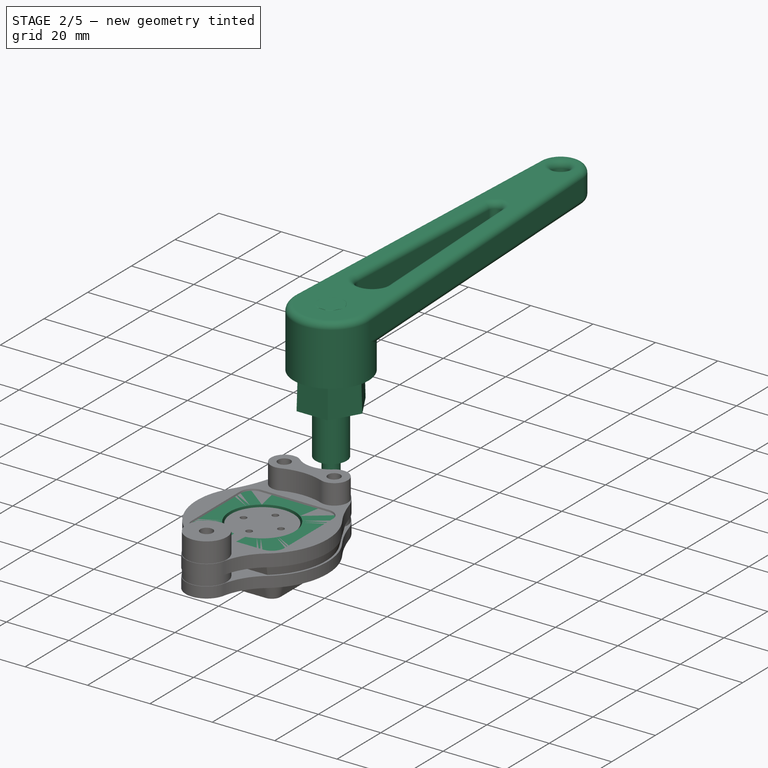
[diagram: stage 2 of 5 — iso view after this stage's code; geometry added in this stage tinted green]
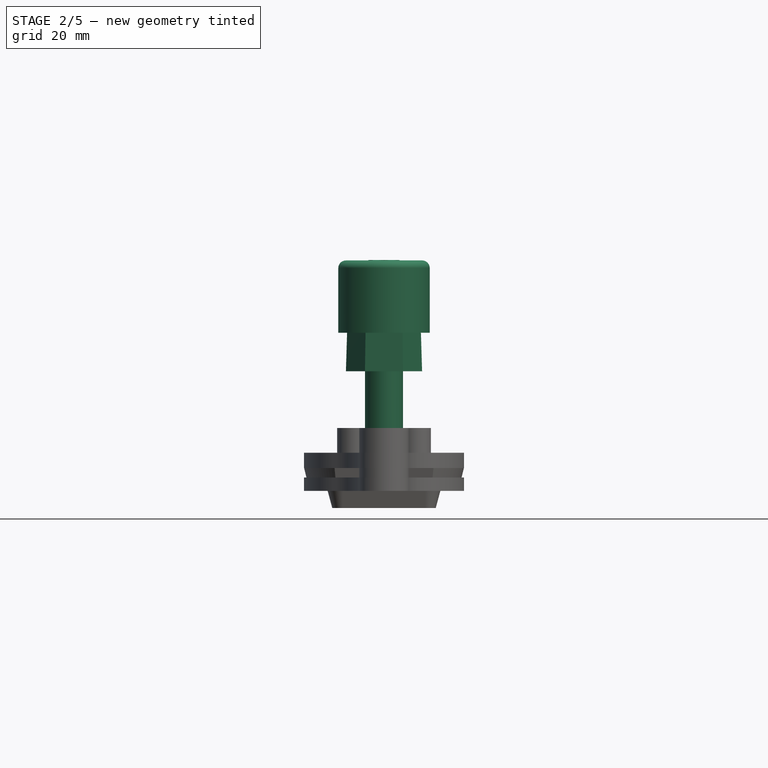
[diagram: stage 2 of 5 — front view after this stage's code; geometry added in this stage tinted green]
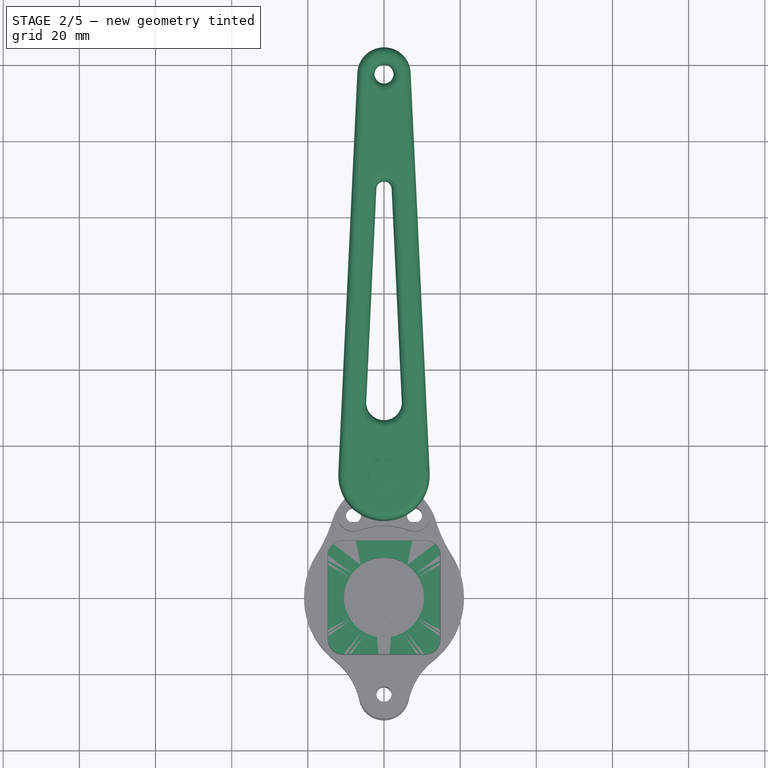
[diagram: stage 2 of 5 — top view after this stage's code; geometry added in this stage tinted green]
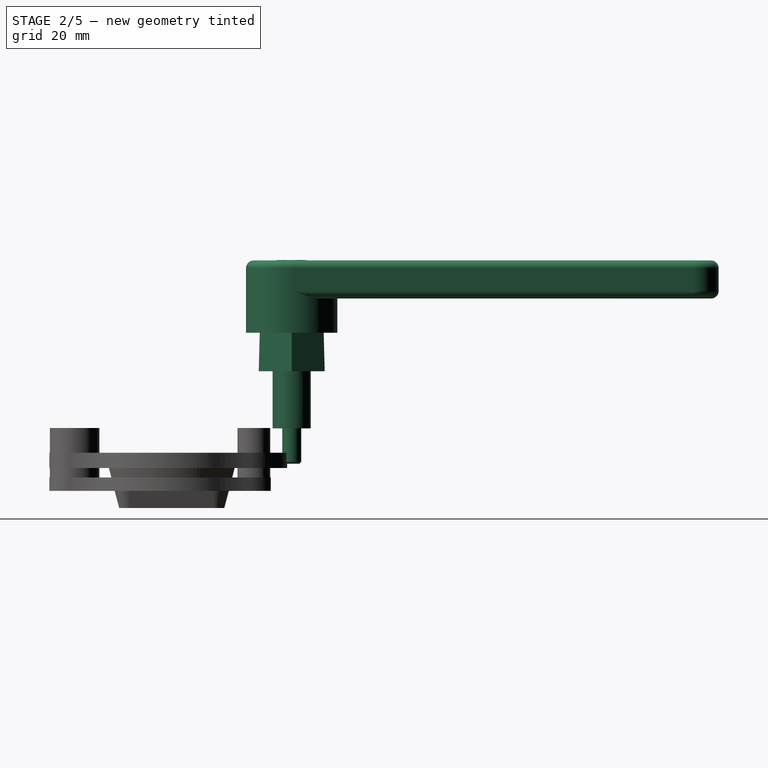
[diagram: stage 2 of 5 — right view after this stage's code; geometry added in this stage tinted green]
FEATURE [Part::Cylinder] Cylinder011  label="LegBase1"
  Angle = 360
  AttacherType = Attacher::AttachEngine3D
  FirstAngle = 0
  Height = 11
  Placement = pos=(0,31.5,31.5) rot=(0,0,1;0rad)
  Radius = 12
  SecondAngle = 0
FEATURE [PartDesign::Pad] Pad001
  Direction = (0,0,1)
  Length = 10
  Length2 = 10
  Profile = -> Sketch003
  ReferenceAxis = -> Sketch003 [N_Axis]
  Refine = true
  Suppressed = false
  Type = 0
FEATURE [PartDesign::Fillet] Fillet
  Base = -> Pad001 [Edge1,Edge2,Edge3,Edge4,Edge5,Edge6,Edge7,Edge8,Edge9,Edge10,Edge11,Edge12,Edge13,Edge14,Edge15,Edge16,Edge17,Edge18,Edge19,Edge20,Edge21,Edge22,Edge23,Edge24,Edge25,Edge26,Edge27]
  BaseFeature = -> Pad001
  Radius = 2
  Refine = true
  SupportTransform = false
  Suppressed = false
  UseAllEdges = true
FEATURE [PartDesign::Body] Body005  label="Shaft"
  AllowCompound = false
  Group = -> [Sketch009,Sketch010,Pad004,Hole,Sketch011,Pad005,Hole001]
  Origin = -> Origin005
  Placement = pos=(0,31.5,21.4) rot=(0,0,1;0rad)
  Tip = -> Hole001
FEATURE [Sketcher::SketchObject] Sketch012  label="ShaftHexagon001"
  ArcFitTolerance = 1e-06
  AttachmentSupport = -> [XY_Plane006]
  FullyConstrained = true
  MakeInternals = false
  MapMode = 5
  sketch-geometry (7):
    g0: LineSegment StartX=10 StartY=2e-16 StartZ=0 EndX=5 EndY=8.66025 EndZ=0
    g1: LineSegment StartX=5 StartY=8.66025 StartZ=0 EndX=-5 EndY=8.66025 EndZ=0
    g2: LineSegment StartX=-5 StartY=8.66025 StartZ=0 EndX=-10 EndY=1.3e-15 EndZ=0
    g3: LineSegment StartX=-10 StartY=1.3e-15 StartZ=0 EndX=-5 EndY=-8.66025 EndZ=0
    g4: LineSegment StartX=-5 StartY=-8.66025 StartZ=0 EndX=5 EndY=-8.66025 EndZ=0
    g5: LineSegment StartX=5 StartY=-8.66025 StartZ=0 EndX=10 EndY=2e-16 EndZ=0
    g6: Circle [constr] CenterX=0 CenterY=0 CenterZ=0 NormalX=0 NormalY=0 NormalZ=1 AngleXU=0 Radius=10
  constraints (16):
    c: Coincident(g0,g1)
    c: Coincident(g1,g2)
    c: Coincident(g2,g3)
    c: Coincident(g3,g4)
    c: Coincident(g4,g5)
    c: Coincident(g5,g0)
    c: Equal(g0, g1-g5) x5
    c: PointOnObject(g0,g6)
    c: PointOnObject(g1,g6)
    c: PointOnObject(g2,g6)
    c: PointOnObject(g3,g6)
    c: PointOnObject(g4,g6)
    c: PointOnObject(g5,g6)
    c: Radius(g6) = 10
    c: Coincident(g6,g-1)
    c: PointOnObject(g5,g-1)
FEATURE [PartDesign::Pad] Pad006  label="ShaftHexagonPad001"
  Direction = (0,0,1)
  Length = 22
  Length2 = 10
  Profile = -> Sketch012
  ReferenceAxis = -> Sketch012 [N_Axis]
  Refine = true
  Suppressed = false
  TaperAngle = -1.5
  Type = 0
FEATURE [Sketcher::SketchObject] Sketch013  label="ShaftAxis001"
  ArcFitTolerance = 1e-06
  AttachmentSupport = -> [XY_Plane006]
  FullyConstrained = true
  MakeInternals = false
  MapMode = 5
  sketch-geometry (1):
    g0: Circle CenterX=0 CenterY=0 CenterZ=0 NormalX=0 NormalY=0 NormalZ=1 AngleXU=0 Radius=2.5
  constraints (2):
    c: Diameter(g0) = 5
    c: Coincident(g0,g-1)
FEATURE [PartDesign::Hole] Hole002  label="HexagonHole001"
  BaseFeature = -> Pad006
  CustomThreadClearance = 0
  Depth = 69.5068
  DepthType = 0
  Diameter = 5
  DrillForDepth = false
  DrillPoint = 1
  DrillPointAngle = 118
  HoleCutCountersinkAngle = 90
  HoleCutCustomValues = false
  HoleCutDepth = 0
  HoleCutDiameter = 6.1
  HoleCutType = 0
  ModelThread = false
  Profile = -> Sketch013
  Refine = true
  Reversed = true
  Suppressed = false
  Tapered = false
  TaperedAngle = 90
  ThreadClass = 0
  ThreadDepth = 69.5068
  ThreadDepthType = 0
  ThreadDirection = 0
  ThreadFit = 0
  ThreadSize = 0
  ThreadType = 0
  Threaded = false
  UseCustomThreadClearance = false
FEATURE [Sketcher::SketchObject] Sketch014
  ArcFitTolerance = 1e-06
  AttachmentSupport = -> [XY_Plane006]
  FullyConstrained = true
  MakeInternals = false
  MapMode = 5
  sketch-geometry (1):
    g0: Circle CenterX=0 CenterY=0 CenterZ=0 NormalX=0 NormalY=0 NormalZ=1 AngleXU=0 Radius=5
  constraints (3):
    c: Diameter(g0) = 10
    c: DistanceX(g0) = 0
    c: DistanceY(g0) = 0
FEATURE [PartDesign::Pad] Pad007  label="ShaftPad001"
  BaseFeature = -> Hole002
  Direction = (0,0,1)
  Length = 15
  Length2 = 10
  Profile = -> Sketch014
  ReferenceAxis = -> Sketch014 [N_Axis]
  Refine = true
  Reversed = true
  Suppressed = false
  Type = 0
FEATURE [PartDesign::Hole] Hole003  label="ShaftHole001"
  BaseFeature = -> Pad007
  CustomThreadClearance = 0
  Depth = 25
  DepthType = 0
  Diameter = 5
  DrillForDepth = false
  DrillPoint = 1
  DrillPointAngle = 118
  HoleCutCountersinkAngle = 90
  HoleCutCustomValues = false
  HoleCutDepth = 0
  HoleCutDiameter = 6.1
  HoleCutType = 0
  ModelThread = false
  Profile = -> Sketch013
  Refine = true
  Suppressed = false
  Tapered = false
  TaperedAngle = 90
  ThreadClass = 0
  ThreadDepth = 25
  ThreadDepthType = 0
  ThreadDirection = 0
  ThreadFit = 0
  ThreadSize = 0
  ThreadType = 0
  Threaded = false
  UseCustomThreadClearance = false
FEATURE [PartDesign::Body] Body007  label="ShaftCutLarge"
  AllowCompound = false
  Group = -> [Sketch015,Sketch016,Pad008,Hole004,Sketch017,Pad009,Hole005]
  Origin = -> Origin007
  Placement = pos=(0,31.5,21.4) rot=(0,0,1;0rad)
  Tip = -> Hole005
FEATURE [Part::MultiFuse] Fusion028  label="LegBase"
  Refine = true
  Shapes = -> [Body002,Cylinder011]
FEATURE [Part::MultiFuse] Fusion029  label="LegCut"
  Refine = true
  Shapes = -> [Body006,Part__Feature002]
FEATURE [Sketcher::SketchObject] Sketch005  label="SketchTopPocket"
  ArcFitTolerance = 1e-06
  AttachmentSupport = -> [Pad011]
  FullyConstrained = true
  MakeInternals = false
  MapMode = 5
  Placement = pos=(0,0,-3.2) rot=(1,0,0;3.14159rad)
  sketch-geometry (10):
    g0: Circle [constr] CenterX=0 CenterY=0 CenterZ=0 NormalX=0 NormalY=0 NormalZ=1 AngleXU=0 Radius=6
    g1: ArcOfCircle CenterX=-22.2126 CenterY=-22.2126 CenterZ=0 NormalX=0 NormalY=0 NormalZ=1 AngleXU=0 Radius=25 StartAngle=0.630502 EndAngle=0.940295
    g2: ArcOfCircle CenterX=7e-16 CenterY=-6 CenterZ=0 NormalX=0 NormalY=0 NormalZ=1 AngleXU=0 Radius=2.5 StartAngle=3.77209 EndAngle=5.65268
    g3: ArcOfCircle CenterX=22.2126 CenterY=-22.2126 CenterZ=0 NormalX=0 NormalY=0 NormalZ=1 AngleXU=0 Radius=25 StartAngle=2.2013 EndAngle=2.51109
    g4: ArcOfCircle CenterX=6 CenterY=-1e-16 CenterZ=0 NormalX=0 NormalY=0 NormalZ=1 AngleXU=0 Radius=2.5 StartAngle=5.34289 EndAngle=7.22348
    g5: ArcOfCircle CenterX=22.2126 CenterY=22.2126 CenterZ=0 NormalX=0 NormalY=0 NormalZ=1 AngleXU=0 Radius=25 StartAngle=3.77209 EndAngle=4.08189
    g6: ArcOfCircle CenterX=5e-16 CenterY=6 CenterZ=0 NormalX=0 NormalY=0 NormalZ=1 AngleXU=0 Radius=2.5 StartAngle=0.630502 EndAngle=2.51109
    g7: ArcOfCircle CenterX=-22.2126 CenterY=22.2126 CenterZ=0 NormalX=0 NormalY=0 NormalZ=1 AngleXU=0 Radius=25 StartAngle=5.34289 EndAngle=5.65268
    g8: ArcOfCircle CenterX=-6 CenterY=-3.4e-15 CenterZ=0 NormalX=0 NormalY=0 NormalZ=1 AngleXU=0 Radius=2.5 StartAngle=2.2013 EndAngle=4.08189
    g9: Circle CenterX=0 CenterY=0 CenterZ=0 NormalX=0 NormalY=0 NormalZ=1 AngleXU=0 Radius=10
  constraints (26):
    c: Coincident(g0,g-1)
    c: Diameter(g0) = 12
    c: Radius(g1) = 25
    c: Tangent(g3,g2) = 1.5708
    c: Tangent(g2,g1) = 1.5708
    c: Tangent(g8,g7) = 1.5708
    c: Tangent(g8,g1) = 1.5708
    c: Tangent(g4,g3) = 1.5708
    c: Tangent(g5,g4) = 1.5708
    c: Tangent(g6,g5) = 1.5708
    c: Tangent(g7,g6) = 1.5708
    c: Radius(g4) = 2.5
    c: PointOnObject(g8,g0)
    c: PointOnObject(g6,g0)
    c: Equal(g1,g7)
    c: Equal(g7,g5)
    c: Equal(g5,g3)
    c: Equal(g4,g6)
    c: Equal(g6,g8)
    c: Equal(g8,g2)
    c: PointOnObject(g4,g0)
    c: PointOnObject(g2,g0)
    c: Symmetric(g5,g3,g-1)
    c: Symmetric(g1,g3,g-2)
    c: Diameter(g9) = 20
    c: Coincident(g9,g0)
FEATURE [PartDesign::Pocket] Pocket
  BaseFeature = -> Pad011
  Direction = (0,0,1)
  Length = 1
  Length2 = 5
  Profile = -> Sketch005
  ReferenceAxis = -> Sketch005 [N_Axis]
  Refine = true
  Suppressed = false
  TaperAngle = 25
  Type = 0
FEATURE [Sketcher::SketchObject] Sketch021  label="SketchTopScrews"
  ArcFitTolerance = 1e-06
  AttachmentSupport = -> [Pocket]
  FullyConstrained = true
  MakeInternals = false
  MapMode = 5
  Placement = pos=(0,0,-3.2) rot=(1,0,0;3.14159rad)
  sketch-geometry (5):
    g0: Circle [constr] CenterX=0 CenterY=0 CenterZ=0 NormalX=0 NormalY=0 NormalZ=1 AngleXU=0 Radius=6
    g1: Circle CenterX=-6 CenterY=0 CenterZ=0 NormalX=0 NormalY=0 NormalZ=1 AngleXU=0 Radius=1.85
    g2: Circle CenterX=6 CenterY=0 CenterZ=0 NormalX=0 NormalY=0 NormalZ=1 AngleXU=0 Radius=1.85
    g3: Circle CenterX=0 CenterY=-6 CenterZ=0 NormalX=0 NormalY=0 NormalZ=1 AngleXU=0 Radius=1.85
    g4: Circle CenterX=0 CenterY=6 CenterZ=0 NormalX=0 NormalY=0 NormalZ=1 AngleXU=0 Radius=1.85
  constraints (12):
    c: Coincident(g0,g-1)
    c: PointOnObject(g1,g0)
    c: PointOnObject(g1,g-1)
    c: Symmetric(g1,g2,g-2)
    c: Diameter(g1) = 3.7
    c: PointOnObject(g3,g-2)
    c: PointOnObject(g3,g0)
    c: Diameter(g0) = 12
    c: Equal(g1,g4)
    c: Equal(g4,g2)
    c: Equal(g2,g3)
    c: Symmetric(g4,g3,g-1)
FEATURE [PartDesign::Pocket] Pocket001
  BaseFeature = -> Pocket
  Direction = (0,0,1)
  Length = 1
  Length2 = 5
  Profile = -> Sketch021
  ReferenceAxis = -> Sketch021 [N_Axis]
  Refine = true
  Suppressed = false
  TaperAngle = -41
  Type = 0
FEATURE [Sketcher::SketchObject] Sketch022  label="EncoderMiddleBase"
  ArcFitTolerance = 1e-06
  AttachmentSupport = -> [XY_Plane009]
  FullyConstrained = true
  MakeInternals = false
  MapMode = 5
  sketch-geometry (12):
    g0: Circle CenterX=2.9e-15 CenterY=0 CenterZ=0 NormalX=0 NormalY=0 NormalZ=1 AngleXU=0 Radius=10.5
    g1: ArcOfCircle CenterX=4e-16 CenterY=16.09 CenterZ=0 NormalX=0 NormalY=0 NormalZ=1 AngleXU=0 Radius=14.21 StartAngle=0.297237 EndAngle=2.84436
    g2: ArcOfCircle CenterX=-48.9644 CenterY=31.0884 CenterZ=0 NormalX=0 NormalY=0 NormalZ=1 AngleXU=0 Radius=37 StartAngle=5.71749 EndAngle=5.98595
    g3: ArcOfCircle CenterX=48.9644 CenterY=31.0884 CenterZ=0 NormalX=0 NormalY=0 NormalZ=1 AngleXU=0 Radius=37 StartAngle=3.43883 EndAngle=3.70729
    g4: Circle [constr] CenterX=1e-16 CenterY=-25.5 CenterZ=0 NormalX=0 NormalY=0 NormalZ=1 AngleXU=0 Radius=2
    g5: ArcOfCircle CenterX=1e-16 CenterY=-25.5 CenterZ=0 NormalX=0 NormalY=0 NormalZ=1 AngleXU=0 Radius=6.65 StartAngle=3.35275 EndAngle=6.07203
    g6: ArcOfCircle CenterX=24.1221 CenterY=-30.6706 CenterZ=0 NormalX=0 NormalY=0 NormalZ=1 AngleXU=0 Radius=18.02 StartAngle=2.23724 EndAngle=2.93044
    g7: ArcOfCircle CenterX=-24.1221 CenterY=-30.6706 CenterZ=0 NormalX=0 NormalY=0 NormalZ=1 AngleXU=0 Radius=18.02 StartAngle=0.211157 EndAngle=0.904349
    g8: ArcOfCircle CenterX=2.9e-15 CenterY=0 CenterZ=0 NormalX=0 NormalY=0 NormalZ=1 AngleXU=0 Radius=21 StartAngle=2.57589 EndAngle=4.04594
    g9: ArcOfCircle CenterX=2.9e-15 CenterY=0 CenterZ=0 NormalX=0 NormalY=0 NormalZ=1 AngleXU=0 Radius=21 StartAngle=5.37884 EndAngle=6.84888
    g10: Circle [constr] CenterX=-8 CenterY=21.5 CenterZ=0 NormalX=0 NormalY=0 NormalZ=1 AngleXU=0 Radius=2
    g11: Circle [constr] CenterX=8 CenterY=21.5 CenterZ=0 NormalX=0 NormalY=0 NormalZ=1 AngleXU=0 Radius=2
  constraints (29):
    c: Symmetric(g1,g1,g-2)
    c: Tangent(g2,g1) = 1.5708
    c: Tangent(g3,g1) = 1.5708
    c: Coincident(g5,g4)
    c: Symmetric(g5,g5,g-2)
    c: Radius(g5) = 6.65
    c: Symmetric(g7,g6,g-2)
    c: DistanceY(g4) = -25.5
    c: Tangent(g5,g6) = 1.5708
    c: Tangent(g5,g7) = 1.5708
    c: Radius(g6) = 18.02
    c: Coincident(g8,g0)
    c: Coincident(g9,g0)
    c: Tangent(g8,g2) = 1.5708
    c: Tangent(g9,g3) = 1.5708
    c: Tangent(g6,g9) = 1.5708
    c: Tangent(g7,g8) = 1.5708
    c: Radius(g1) = 14.21
    c: Radius(g8) = 21
    c: Radius(g2) = 37
    c: DistanceY(g0) = 0
    c: Diameter(g0) = 21
    c: DistanceY(g0,g1) = 16.09
    c: Diameter(g10) = 4
    c: DistanceY(g10) = 21.5
    c: DistanceX(g10) = -8
    c: Equal(g11,g10)
    c: Equal(g4,g10)
    c: Symmetric(g11,g10,g-2)
FEATURE [Sketcher::SketchObject] Sketch023  label="EncodeScrewsHoles"
  ArcFitTolerance = 1e-06
  AttachmentSupport = -> [XY_Plane009]
  FullyConstrained = true
  MakeInternals = false
  MapMode = 5
  sketch-geometry (15):
    g0: Circle [constr] CenterX=2.9e-15 CenterY=0 CenterZ=0 NormalX=0 NormalY=0 NormalZ=1 AngleXU=0 Radius=10.5
    g1: ArcOfCircle [constr] CenterX=4e-16 CenterY=16.09 CenterZ=0 NormalX=0 NormalY=0 NormalZ=1 AngleXU=0 Radius=14.21 StartAngle=0.297237 EndAngle=2.84436
    g2: ArcOfCircle [constr] CenterX=-48.9644 CenterY=31.0884 CenterZ=0 NormalX=0 NormalY=0 NormalZ=1 AngleXU=0 Radius=37 StartAngle=5.71749 EndAngle=5.98595
    g3: ArcOfCircle [constr] CenterX=48.9644 CenterY=31.0884 CenterZ=0 NormalX=0 NormalY=0 NormalZ=1 AngleXU=0 Radius=37 StartAngle=3.43883 EndAngle=3.70729
    g4: Circle CenterX=0 CenterY=-25.5 CenterZ=0 NormalX=0 NormalY=0 NormalZ=1 AngleXU=0 Radius=2
    g5: ArcOfCircle [constr] CenterX=0 CenterY=-25.5 CenterZ=0 NormalX=0 NormalY=0 NormalZ=1 AngleXU=0 Radius=6.65 StartAngle=3.35275 EndAngle=6.07203
    g6: ArcOfCircle [constr] CenterX=24.1221 CenterY=-30.6706 CenterZ=0 NormalX=0 NormalY=0 NormalZ=1 AngleXU=0 Radius=18.02 StartAngle=2.23724 EndAngle=2.93044
    g7: ArcOfCircle [constr] CenterX=-24.1221 CenterY=-30.6706 CenterZ=0 NormalX=0 NormalY=0 NormalZ=1 AngleXU=0 Radius=18.02 StartAngle=0.211157 EndAngle=0.904349
    g8: ArcOfCircle [constr] CenterX=2.9e-15 CenterY=0 CenterZ=0 NormalX=0 NormalY=0 NormalZ=1 AngleXU=0 Radius=21 StartAngle=2.57589 EndAngle=4.04594
    g9: ArcOfCircle [constr] CenterX=2.9e-15 CenterY=0 CenterZ=0 NormalX=0 NormalY=0 NormalZ=1 AngleXU=0 Radius=21 StartAngle=5.37884 EndAngle=6.84888
    g10: Circle CenterX=-8 CenterY=21.5 CenterZ=0 NormalX=0 NormalY=0 NormalZ=1 AngleXU=0 Radius=2
    g11: Circle CenterX=8 CenterY=21.5 CenterZ=0 NormalX=0 NormalY=0 NormalZ=1 AngleXU=0 Radius=2
    g12: Circle CenterX=0 CenterY=-25.5 CenterZ=0 NormalX=0 NormalY=0 NormalZ=1 AngleXU=0 Radius=4
    g13: Circle CenterX=-8 CenterY=21.5 CenterZ=0 NormalX=0 NormalY=0 NormalZ=1 AngleXU=0 Radius=4
    g14: Circle CenterX=8 CenterY=21.5 CenterZ=0 NormalX=0 NormalY=0 NormalZ=1 AngleXU=0 Radius=4
  constraints (35):
    c: Symmetric(g1,g1,g-2)
    c: Tangent(g2,g1) = 1.5708
    c: Tangent(g3,g1) = 1.5708
    c: Coincident(g5,g4)
    c: Symmetric(g5,g5,g-2)
    c: Radius(g5) = 6.65
    c: Symmetric(g7,g6,g-2)
    c: DistanceY(g4) = -25.5
    c: Tangent(g5,g6) = 1.5708
    c: Tangent(g5,g7) = 1.5708
    c: Radius(g6) = 18.02
    c: Coincident(g8,g0)
    c: Coincident(g9,g0)
    c: Tangent(g8,g2) = 1.5708
    c: Tangent(g9,g3) = 1.5708
    c: Tangent(g6,g9) = 1.5708
    c: Tangent(g7,g8) = 1.5708
    c: Radius(g1) = 14.21
    c: Radius(g8) = 21
    c: Radius(g2) = 37
    c: DistanceY(g0) = 0
    c: Diameter(g0) = 21
    c: DistanceY(g0,g1) = 16.09
    c: Diameter(g10) = 4
    c: DistanceY(g10) = 21.5
    c: DistanceX(g10) = -8
    c: Symmetric(g11,g10,g-2)
    c: Coincident(g12,g4)
    c: Coincident(g13,g10)
    c: Coincident(g14,g11)
    c: Diameter(g13) = 8
    c: Diameter(g14) = 8
    c: Diameter(g11) = 4
    c: Diameter(g12) = 8
    c: Diameter(g4) = 4
FEATURE [Sketcher::SketchObject] Sketch027  label="Base"
  ArcFitTolerance = 1e-06
  AttachmentSupport = -> [XY_Plane010]
  FullyConstrained = true
  MakeInternals = false
  MapMode = 5
  sketch-geometry (12):
    g0: LineSegment StartX=-11.5 StartY=8.5 StartZ=0 EndX=-11.5 EndY=-8.5 EndZ=0
    g1: LineSegment StartX=-8.5 StartY=-11.5 StartZ=0 EndX=8.5 EndY=-11.5 EndZ=0
    g2: LineSegment StartX=11.5 StartY=-8.5 StartZ=0 EndX=11.5 EndY=8.5 EndZ=0
    g3: LineSegment StartX=8.5 StartY=11.5 StartZ=0 EndX=-8.5 EndY=11.5 EndZ=0
    g4: ArcOfCircle CenterX=-8.5 CenterY=-8.5 CenterZ=0 NormalX=0 NormalY=0 NormalZ=1 AngleXU=0 Radius=3 StartAngle=3.14159 EndAngle=4.71239
    g5: GeomPoint [constr] X=-11.5 Y=-11.5 Z=0
    g6: ArcOfCircle CenterX=8.5 CenterY=8.5 CenterZ=0 NormalX=0 NormalY=0 NormalZ=1 AngleXU=0 Radius=3 StartAngle=3e-16 EndAngle=1.5708
    g7: GeomPoint [constr] X=11.5 Y=11.5 Z=0
    g8: ArcOfCircle CenterX=8.5 CenterY=-8.5 CenterZ=0 NormalX=0 NormalY=0 NormalZ=1 AngleXU=0 Radius=3 StartAngle=4.71239 EndAngle=6.28319
    g9: GeomPoint [constr] X=11.5 Y=-11.5 Z=0
    g10: ArcOfCircle CenterX=-8.5 CenterY=8.5 CenterZ=0 NormalX=0 NormalY=0 NormalZ=1 AngleXU=0 Radius=3 StartAngle=1.5708 EndAngle=3.14159
    g11: GeomPoint [constr] X=-11.5 Y=11.5 Z=0
  constraints (27):
    c: Vertical(g0)
    c: Vertical(g2)
    c: Horizontal(g1)
    c: Horizontal(g3)
    c: DistanceX(g11,g7) = 23
    c: DistanceY(g5,g11) = 23
    c: Symmetric(g11,g9,g-1)
    c: PointOnObject(g5,g0)
    c: PointOnObject(g5,g1)
    c: Tangent(g0,g4) = -1.5708
    c: Tangent(g1,g4) = -1.5708
    c: PointOnObject(g7,g2)
    c: PointOnObject(g7,g3)
    c: Tangent(g2,g6) = -1.5708
    c: Tangent(g3,g6) = -1.5708
    c: PointOnObject(g9,g1)
    c: PointOnObject(g9,g2)
    c: Tangent(g1,g8) = -1.5708
    c: Tangent(g2,g8) = -1.5708
    c: PointOnObject(g11,g0)
    c: PointOnObject(g11,g3)
    c: Tangent(g0,g10) = -1.5708
    c: Tangent(g3,g10) = -1.5708
    c: Diameter(g4) = 6
    c: Diameter(g10) = 6
    c: Diameter(g8) = 6
    c: Diameter(g6) = 6
FEATURE [PartDesign::Pad] Pad015  label="Pad16"
  Direction = (0,0,1)
  Length = 1.6
  Length2 = 10
  Midplane = true
  Profile = -> Sketch027
  ReferenceAxis = -> Sketch027 [N_Axis]
  Refine = true
  Suppressed = false
  Type = 0
FEATURE [Sketcher::SketchObject] Sketch028  label="Screws"
  ArcFitTolerance = 1e-06
  AttachmentSupport = -> [Pad015]
  FullyConstrained = true
  MakeInternals = false
  MapMode = 5
  Placement = pos=(0,0,0.8) rot=(0,0,1;0rad)
  sketch-geometry (4):
    g0: Circle CenterX=-8.5 CenterY=8.5 CenterZ=0 NormalX=0 NormalY=0 NormalZ=1 AngleXU=0 Radius=1.5
    g1: Circle CenterX=8.5 CenterY=8.5 CenterZ=0 NormalX=0 NormalY=0 NormalZ=1 AngleXU=0 Radius=1.5
    g2: Circle CenterX=-8.5 CenterY=-8.5 CenterZ=0 NormalX=0 NormalY=0 NormalZ=1 AngleXU=0 Radius=1.5
    g3: Circle CenterX=8.5 CenterY=-8.5 CenterZ=0 NormalX=0 NormalY=0 NormalZ=1 AngleXU=0 Radius=1.5
  constraints (9):
    c: Diameter(g0) = 3
    c: Diameter(g1) = 3
    c: Diameter(g2) = 3
    c: Diameter(g3) = 3
    c: Symmetric(g0,g3,g-1)
    c: Symmetric(g2,g1,g-1)
    c: Symmetric(g0,g1,g-2)
    c: DistanceX(g2,g3) = 17
    c: DistanceY(g2,g0) = 17
FEATURE [Sketcher::SketchObject] Sketch029  label="Elements"
  ArcFitTolerance = 1e-06
  FullyConstrained = true
  MakeInternals = false
  MapMode = 5
  Placement = pos=(0,0,0.8) rot=(0,0,1;0rad)
  sketch-geometry (21):
    g0: ArcOfCircle CenterX=-5 CenterY=7 CenterZ=0 NormalX=0 NormalY=0 NormalZ=1 AngleXU=0 Radius=1.5 StartAngle=1.5708 EndAngle=4.71239
    g1: ArcOfCircle CenterX=5 CenterY=7 CenterZ=0 NormalX=0 NormalY=0 NormalZ=1 AngleXU=0 Radius=1.5 StartAngle=4.71239 EndAngle=7.85398
    g2: LineSegment StartX=-5 StartY=8.5 StartZ=0 EndX=5 EndY=8.5 EndZ=0
    g3: LineSegment StartX=-5 StartY=5.5 StartZ=0 EndX=5 EndY=5.5 EndZ=0
    g4: ArcOfCircle CenterX=-3.5 CenterY=-6 CenterZ=0 NormalX=0 NormalY=0 NormalZ=1 AngleXU=0 Radius=1.5 StartAngle=1.5708 EndAngle=4.71239
    g5: ArcOfCircle CenterX=3.5 CenterY=-6 CenterZ=0 NormalX=0 NormalY=0 NormalZ=1 AngleXU=0 Radius=1.5 StartAngle=4.71239 EndAngle=7.85398
    g6: LineSegment StartX=-3.5 StartY=-4.5 StartZ=0 EndX=3.5 EndY=-4.5 EndZ=0
    g7: LineSegment StartX=-3.5 StartY=-7.5 StartZ=0 EndX=3.5 EndY=-7.5 EndZ=0
    g8: LineSegment StartX=-3.5 StartY=-3.5 StartZ=0 EndX=3.5 EndY=-3.5 EndZ=0
    g9: LineSegment StartX=3.5 StartY=-3.5 StartZ=0 EndX=3.5 EndY=3.5 EndZ=0
    g10: LineSegment StartX=3.5 StartY=3.5 StartZ=0 EndX=-3.5 EndY=3.5 EndZ=0
    g11: LineSegment StartX=-3.5 StartY=3.5 StartZ=0 EndX=-3.5 EndY=-3.5 EndZ=0
    g12: GeomPoint [constr] X=0 Y=0 Z=0
    g13: ArcOfCircle CenterX=-6.8 CenterY=-5.5 CenterZ=0 NormalX=0 NormalY=0 NormalZ=1 AngleXU=0 Radius=1.2 StartAngle=3.14159 EndAngle=6.28319
    g14: ArcOfCircle CenterX=-6.8 CenterY=4 CenterZ=0 NormalX=0 NormalY=0 NormalZ=1 AngleXU=0 Radius=1.2 StartAngle=1e-16 EndAngle=3.14159
    g15: LineSegment StartX=-8 StartY=-5.5 StartZ=0 EndX=-8 EndY=4 EndZ=0
    g16: LineSegment StartX=-5.6 StartY=-5.5 StartZ=0 EndX=-5.6 EndY=4 EndZ=0
    g17: ArcOfCircle CenterX=5.8 CenterY=3.38 CenterZ=0 NormalX=0 NormalY=0 NormalZ=1 AngleXU=0 Radius=1 StartAngle=2e-16 EndAngle=3.14159
    g18: ArcOfCircle CenterX=5.8 CenterY=-3.38 CenterZ=0 NormalX=0 NormalY=0 NormalZ=1 AngleXU=0 Radius=1 StartAngle=3.14159 EndAngle=6.28319
    g19: LineSegment StartX=6.8 StartY=3.38 StartZ=0 EndX=6.8 EndY=-3.38 EndZ=0
    g20: LineSegment StartX=4.8 StartY=3.38 StartZ=0 EndX=4.8 EndY=-3.38 EndZ=0
  constraints (49):
    c: Tangent(g0,g2) = 1.5708
    c: Tangent(g0,g3) = -1.5708
    c: Tangent(g1,g2) = 1.5708
    c: Tangent(g1,g3) = -1.5708
    c: Equal(g0,g1)
    c: Tangent(g4,g6) = 1.5708
    c: Tangent(g4,g7) = -1.5708
    c: Tangent(g5,g6) = 1.5708
    c: Tangent(g5,g7) = -1.5708
    c: Equal(g4,g5)
    c: Symmetric(g4,g5,g-2)
    c: Symmetric(g0,g1,g-2)
    c: Radius(g0) = 1.5
    c: Radius(g4) = 1.5
    c: Coincident(g8,g9)
    c: Coincident(g9,g10)
    c: Coincident(g10,g11)
    c: Coincident(g11,g8)
    c: Horizontal(g8)
    c: Horizontal(g10)
    c: Vertical(g9)
    c: Vertical(g11)
    c: Symmetric(g10,g8,g12)
    c: Distance(g9,g11) = 7
    c: Distance(g8,g10) = 7
    c: Coincident(g12,g-1)
    c: DistanceX(g12,g1) = 5
    c: DistanceX(g12,g5) = 3.5
    c: DistanceY(g12,g1) = 7
    c: DistanceY(g5,g12) = 6
    c: Tangent(g13,g15) = 1.5708
    c: Tangent(g13,g16) = -1.5708
    c: Tangent(g14,g15) = 1.5708
    c: Tangent(g14,g16) = -1.5708
    c: Equal(g13,g14)
    c: Radius(g14) = 1.2
    c: DistanceY(g14) = 4
    c: DistanceY(g13,g-1) = 5.5
    c: Tangent(g17,g19) = 1.5708
    c: Tangent(g17,g20) = -1.5708
    c: Tangent(g18,g19) = 1.5708
    c: Tangent(g18,g20) = -1.5708
    c: Equal(g17,g18)
    c: Radius(g17) = 1
    c: Symmetric(g17,g18,g-1)
    c: DistanceY(g18,g-1) = 3.38
    c: DistanceX(g18) = 5.8
    c: Vertical(g15)
    c: DistanceX(g13,g12) = 6.8
FEATURE [PartDesign::Pad] Pad017  label="Pad15"
  BaseFeature = -> Pad015
  Direction = (0,0,1)
  Length = 1.5
  Length2 = 10
  Profile = -> Sketch029
  ReferenceAxis = -> Sketch029 [N_Axis]
  Refine = true
  Suppressed = false
  Type = 0
FEATURE [PartDesign::Hole] Hole008
  BaseFeature = -> Pad017
  CustomThreadClearance = 0
  Depth = 25
  DepthType = 0
  Diameter = 3
  DrillForDepth = false
  DrillPoint = 1
  DrillPointAngle = 118
  HoleCutCountersinkAngle = 90
  HoleCutCustomValues = false
  HoleCutDepth = 0
  HoleCutDiameter = 6.1
  HoleCutType = 0
  ModelThread = false
  Profile = -> Sketch028
  Refine = true
  Suppressed = false
  Tapered = false
  TaperedAngle = 90
  ThreadClass = 0
  ThreadDepth = 25
  ThreadDepthType = 0
  ThreadDirection = 0
  ThreadFit = 0
  ThreadSize = 0
  ThreadType = 0
  Threaded = false
  UseCustomThreadClearance = false
FEATURE [PartDesign::Body] Body001  label="AS5600"
  AllowCompound = false
  Group = -> [Sketch027,Pad015,Sketch028,Sketch029,Pad017,Hole008]
  Origin = -> Origin001
  Placement = pos=(0,0,-7.7) rot=(0,0,1;0rad)
  Tip = -> Hole008
FEATURE [Sketcher::SketchObject] Sketch030  label="EncoderMiddlePocket1"
  ArcFitTolerance = 1e-06
  FullyConstrained = true
  MakeInternals = false
  MapMode = 5
  Placement = pos=(0,0,5) rot=(0,0,1;0rad)
  sketch-geometry (8):
    g0: ArcOfCircle CenterX=4e-16 CenterY=16.09 CenterZ=0 NormalX=0 NormalY=0 NormalZ=1 AngleXU=0 Radius=15 StartAngle=0.29262 EndAngle=2.84897
    g1: ArcOfCircle CenterX=-49.7896 CenterY=31.09 CenterZ=0 NormalX=0 NormalY=0 NormalZ=1 AngleXU=0 Radius=37 StartAngle=5.77234 EndAngle=5.99057
    g2: ArcOfCircle CenterX=49.7896 CenterY=31.09 CenterZ=0 NormalX=0 NormalY=0 NormalZ=1 AngleXU=0 Radius=37 StartAngle=3.43421 EndAngle=3.65244
    g3: ArcOfCircle CenterX=1e-16 CenterY=-25.5 CenterZ=0 NormalX=0 NormalY=0 NormalZ=1 AngleXU=0 Radius=7.79981 StartAngle=3.36843 EndAngle=6.05635
    g4: ArcOfCircle CenterX=25.5189 CenterY=-31.39 CenterZ=0 NormalX=0 NormalY=0 NormalZ=1 AngleXU=0 Radius=18.39 StartAngle=1.57079 EndAngle=2.91476
    g5: ArcOfCircle CenterX=-25.5189 CenterY=-31.39 CenterZ=0 NormalX=0 NormalY=0 NormalZ=1 AngleXU=0 Radius=18.39 StartAngle=0.226837 EndAngle=1.5708
    g6: LineSegment StartX=-17.5134 StartY=13 StartZ=0 EndX=17.5134 EndY=13 EndZ=0
    g7: LineSegment StartX=-25.5189 StartY=-13 StartZ=0 EndX=25.5189 EndY=-13 EndZ=0
  constraints (22):
    c: Symmetric(g0,g0,g-2)
    c: Tangent(g1,g0) = 1.5708
    c: Tangent(g2,g0) = 1.5708
    c: Symmetric(g3,g3,g-2)
    c: Symmetric(g5,g4,g-2)
    c: Tangent(g3,g4) = 1.5708
    c: Tangent(g3,g5) = 1.5708
    c: Radius(g0) = 15
    c: Radius(g1) = 37
    c: DistanceY(g1) = 31.09
    c: Symmetric(g2,g1,g-2)
    c: Coincident(g6,g1)
    c: Coincident(g6,g2)
    c: Coincident(g7,g5)
    c: Coincident(g7,g4)
    c: DistanceY(g3) = -25.5
    c: DistanceY(g5) = -13
    c: DistanceX(g3) = -7.6
    c: DistanceY(g0) = 16.09
    c: DistanceY(g1) = 13
    c: Radius(g4) = 18.39
    c: DistanceY(g5) = -31.39
FEATURE [Sketcher::SketchObject] Sketch031  label="EncoderHolderCoverSketch"
  ArcFitTolerance = 1e-06
  AttachmentOffset = pos=(0,0,-4) rot=(0,0,1;0rad)
  AttachmentSupport = -> [XY_Plane011]
  FullyConstrained = true
  MakeInternals = false
  MapMode = 5
  Placement = pos=(0,0,-4) rot=(0,0,1;0rad)
  sketch-geometry (6):
    g0: ArcOfCircle CenterX=-48.9901 CenterY=31.0358 CenterZ=0 NormalX=0 NormalY=0 NormalZ=1 AngleXU=0 Radius=37 StartAngle=5.71849 EndAngle=5.87945
    g1: ArcOfCircle CenterX=48.9901 CenterY=31.0358 CenterZ=0 NormalX=0 NormalY=0 NormalZ=1 AngleXU=0 Radius=37 StartAngle=3.54533 EndAngle=3.70629
    g2: ArcOfCircle CenterX=0 CenterY=0 CenterZ=0 NormalX=0 NormalY=0 NormalZ=1 AngleXU=0 Radius=20.9936 StartAngle=2.5769 EndAngle=4.04583
    g3: ArcOfCircle CenterX=0 CenterY=0 CenterZ=0 NormalX=0 NormalY=0 NormalZ=1 AngleXU=0 Radius=20.9936 StartAngle=5.37895 EndAngle=6.84788
    g4: LineSegment StartX=-12.98 StartY=-16.5 StartZ=0 EndX=12.98 EndY=-16.5 EndZ=0
    g5: LineSegment StartX=-14.965 StartY=16.5 StartZ=0 EndX=14.965 EndY=16.5 EndZ=0
  constraints (17):
    c: Symmetric(g0,g1,g-2)
    c: Symmetric(g2,g3,g-2)
    c: Tangent(g2,g0) = 1.5708
    c: Tangent(g3,g1) = 1.5708
    c: Radius(g0) = 37
    c: Coincident(g4,g2)
    c: Coincident(g4,g3)
    c: DistanceY(g3,g-1) = 16.5
    c: Symmetric(g0,g1,g-2)
    c: DistanceX(g4,g4) = 25.96
    c: Coincident(g5,g0)
    c: Coincident(g5,g1)
    c: DistanceY(g-1,g1) = 16.5
    c: DistanceX(g5,g5) = 29.93
    c: Coincident(g2,g3)
    c: Coincident(g2,g-1)
    c: Equal(g0,g1)
FEATURE [Sketcher::SketchObject] Sketch032  label="EncoderCoverHoleSketch"
  ArcFitTolerance = 1e-06
  AttachmentOffset = pos=(0,0,-4) rot=(0,0,1;0rad)
  AttachmentSupport = -> [XY_Plane011]
  FullyConstrained = true
  MakeInternals = false
  MapMode = 5
  Placement = pos=(0,0,-4) rot=(0,0,1;0rad)
  sketch-geometry (1):
    g0: Circle CenterX=0 CenterY=0 CenterZ=0 NormalX=0 NormalY=0 NormalZ=1 AngleXU=0 Radius=10.25
  constraints (2):
    c: Diameter(g0) = 20.5
    c: Coincident(g0,g-1)
FEATURE [Sketcher::SketchObject] Sketch034  label="EncoderCoverBase"
  ArcFitTolerance = 1e-06
  AttachmentSupport = -> [XY_Plane011]
  FullyConstrained = true
  MakeInternals = false
  MapMode = 5
  sketch-geometry (11):
    g0: ArcOfCircle CenterX=4e-16 CenterY=16.09 CenterZ=0 NormalX=0 NormalY=0 NormalZ=1 AngleXU=0 Radius=14.21 StartAngle=0.297237 EndAngle=2.84436
    g1: ArcOfCircle CenterX=-48.9644 CenterY=31.0884 CenterZ=0 NormalX=0 NormalY=0 NormalZ=1 AngleXU=0 Radius=37 StartAngle=5.71749 EndAngle=5.98595
    g2: ArcOfCircle CenterX=48.9644 CenterY=31.0884 CenterZ=0 NormalX=0 NormalY=0 NormalZ=1 AngleXU=0 Radius=37 StartAngle=3.43883 EndAngle=3.70729
    g3: Circle CenterX=1e-16 CenterY=-25.5 CenterZ=0 NormalX=0 NormalY=0 NormalZ=1 AngleXU=0 Radius=2
    g4: ArcOfCircle CenterX=1e-16 CenterY=-25.5 CenterZ=0 NormalX=0 NormalY=0 NormalZ=1 AngleXU=0 Radius=6.65 StartAngle=3.35275 EndAngle=6.07203
    g5: ArcOfCircle CenterX=24.1221 CenterY=-30.6706 CenterZ=0 NormalX=0 NormalY=0 NormalZ=1 AngleXU=0 Radius=18.02 StartAngle=2.23724 EndAngle=2.93044
    g6: ArcOfCircle CenterX=-24.1221 CenterY=-30.6706 CenterZ=0 NormalX=0 NormalY=0 NormalZ=1 AngleXU=0 Radius=18.02 StartAngle=0.211157 EndAngle=0.904349
    g7: ArcOfCircle CenterX=2.9e-15 CenterY=0 CenterZ=0 NormalX=0 NormalY=0 NormalZ=1 AngleXU=0 Radius=21 StartAngle=2.57589 EndAngle=4.04594
    g8: ArcOfCircle CenterX=2.9e-15 CenterY=0 CenterZ=0 NormalX=0 NormalY=0 NormalZ=1 AngleXU=0 Radius=21 StartAngle=5.37884 EndAngle=6.84888
    g9: Circle CenterX=-8 CenterY=21.5 CenterZ=0 NormalX=0 NormalY=0 NormalZ=1 AngleXU=0 Radius=2
    g10: Circle CenterX=8 CenterY=21.5 CenterZ=0 NormalX=0 NormalY=0 NormalZ=1 AngleXU=0 Radius=2
  constraints (28):
    c: Symmetric(g0,g0,g-2)
    c: Tangent(g1,g0) = 1.5708
    c: Tangent(g2,g0) = 1.5708
    c: Coincident(g4,g3)
    c: Symmetric(g4,g4,g-2)
    c: Radius(g4) = 6.65
    c: Symmetric(g6,g5,g-2)
    c: DistanceY(g3) = -25.5
    c: Tangent(g4,g5) = 1.5708
    c: Tangent(g4,g6) = 1.5708
    c: Radius(g5) = 18.02
    c: Tangent(g7,g1) = 1.5708
    c: Tangent(g8,g2) = 1.5708
    c: Tangent(g5,g8) = 1.5708
    c: Tangent(g6,g7) = 1.5708
    c: Radius(g0) = 14.21
    c: Radius(g7) = 21
    c: Radius(g1) = 37
    c: Diameter(g9) = 4
    c: DistanceY(g9) = 21.5
    c: DistanceX(g9) = -8
    c: Equal(g3,g9)
    c: Symmetric(g10,g9,g-2)
    c: Equal(g9,g10)
    c: DistanceY(g0) = 16.09
    c: DistanceX(g7) = 0
    c: DistanceY(g7) = 0
    c: DistanceY(g8) = 0
FEATURE [PartDesign::Pad] Pad020  label="EncoderMiddleBasePad"
  Direction = (0,0,1)
  Length = 3.5
  Length2 = 10
  Profile = -> Sketch022
  ReferenceAxis = -> Sketch022 [N_Axis]
  Refine = true
  Suppressed = false
  Type = 0
FEATURE [Sketcher::SketchObject] Sketch026  label="PlatformSketch"
  ArcFitTolerance = 1e-06
  AttachmentSupport = -> [Pad020]
  FullyConstrained = true
  MakeInternals = false
  MapMode = 5
  Placement = pos=(0,0,3.5) rot=(0,0,1;0rad)
  sketch-geometry (12):
    g0: LineSegment StartX=-14.8 StartY=11 StartZ=0 EndX=-14.8 EndY=-11 EndZ=0
    g1: LineSegment StartX=-10.8 StartY=-15 StartZ=0 EndX=10.8 EndY=-15 EndZ=0
    g2: LineSegment StartX=14.8 StartY=-11 StartZ=0 EndX=14.8 EndY=11 EndZ=0
    g3: LineSegment StartX=10.8 StartY=15 StartZ=0 EndX=-10.8 EndY=15 EndZ=0
    g4: ArcOfCircle CenterX=-10.8 CenterY=11 CenterZ=0 NormalX=0 NormalY=0 NormalZ=1 AngleXU=0 Radius=4 StartAngle=1.5708 EndAngle=3.14159
    g5: GeomPoint [constr] X=-14.8 Y=15 Z=0
    g6: ArcOfCircle CenterX=10.8 CenterY=11 CenterZ=0 NormalX=0 NormalY=0 NormalZ=1 AngleXU=0 Radius=4 StartAngle=1e-16 EndAngle=1.5708
    g7: GeomPoint [constr] X=14.8 Y=15 Z=0
    g8: ArcOfCircle CenterX=-10.8 CenterY=-11 CenterZ=0 NormalX=0 NormalY=0 NormalZ=1 AngleXU=0 Radius=4 StartAngle=3.14159 EndAngle=4.71239
    g9: GeomPoint [constr] X=-14.8 Y=-15 Z=0
    g10: ArcOfCircle CenterX=10.8 CenterY=-11 CenterZ=0 NormalX=0 NormalY=0 NormalZ=1 AngleXU=0 Radius=4 StartAngle=4.71239 EndAngle=6.28319
    g11: GeomPoint [constr] X=14.8 Y=-15 Z=0
  constraints (26):
    c: Vertical(g2)
    c: Horizontal(g1)
    c: Horizontal(g3)
    c: PointOnObject(g5,g0)
    c: PointOnObject(g5,g3)
    c: Tangent(g0,g4) = -1.5708
    c: Tangent(g3,g4) = -1.5708
    c: PointOnObject(g7,g2)
    c: Tangent(g2,g6) = -1.5708
    c: Tangent(g3,g6) = -1.5708
    c: PointOnObject(g9,g0)
    c: PointOnObject(g9,g1)
    c: Tangent(g0,g8) = -1.5708
    c: Tangent(g1,g8) = -1.5708
    c: PointOnObject(g11,g1)
    c: PointOnObject(g11,g2)
    c: Tangent(g1,g10) = -1.5708
    c: Tangent(g2,g10) = -1.5708
    c: Equal(g6,g10)
    c: Radius(g4) = 4
    c: DistanceY(g0,g0) = 22
    c: DistanceY(g5) = 15
    c: DistanceX(g5) = -14.8
    c: Equal(g4,g6)
    c: Symmetric(g5,g7,g-2)
    c: Symmetric(g5,g9,g-1)
FEATURE [PartDesign::Pad] Pad021  label="EncoderPlatformPad"
  BaseFeature = -> Pad020
  Direction = (0,0,1)
  Length = 4.5
  Length2 = 10
  Profile = -> Sketch026
  ReferenceAxis = -> Sketch026 [N_Axis]
  Refine = true
  Suppressed = false
  TaperAngle = -15
  Type = 0
FEATURE [Sketcher::SketchObject] Sketch035  label="PlatformSketchCut"
  ArcFitTolerance = 1e-06
  AttachmentSupport = -> [XY_Plane011]
  FullyConstrained = true
  MakeInternals = false
  MapMode = 5
  sketch-geometry (12):
    g0: LineSegment StartX=-14.85 StartY=11.05 StartZ=0 EndX=-14.85 EndY=-10.95 EndZ=0
    g1: LineSegment StartX=-10.75 StartY=-15.05 StartZ=0 EndX=10.85 EndY=-15.05 EndZ=0
    g2: LineSegment StartX=14.85 StartY=-11.05 StartZ=0 EndX=14.85 EndY=11.05 EndZ=0
    g3: LineSegment StartX=10.85 StartY=15.05 StartZ=0 EndX=-10.85 EndY=15.05 EndZ=0
    g4: ArcOfCircle CenterX=-10.85 CenterY=11.05 CenterZ=0 NormalX=0 NormalY=0 NormalZ=1 AngleXU=0 Radius=4 StartAngle=1.5708 EndAngle=3.14159
    g5: GeomPoint [constr] X=-14.85 Y=15.05 Z=0
    g6: ArcOfCircle CenterX=10.85 CenterY=11.05 CenterZ=0 NormalX=0 NormalY=0 NormalZ=1 AngleXU=0 Radius=4 StartAngle=1e-16 EndAngle=1.5708
    g7: GeomPoint [constr] X=14.85 Y=15.05 Z=0
    g8: ArcOfCircle CenterX=-10.75 CenterY=-10.95 CenterZ=0 NormalX=0 NormalY=0 NormalZ=1 AngleXU=0 Radius=4.1 StartAngle=3.14159 EndAngle=4.71239
    g9: GeomPoint [constr] X=-14.85 Y=-15.05 Z=0
    g10: ArcOfCircle CenterX=10.85 CenterY=-11.05 CenterZ=0 NormalX=0 NormalY=0 NormalZ=1 AngleXU=0 Radius=4 StartAngle=4.71239 EndAngle=6.28319
    g11: GeomPoint [constr] X=14.85 Y=-15.05 Z=0
  constraints (26):
    c: Vertical(g2)
    c: Horizontal(g1)
    c: Horizontal(g3)
    c: PointOnObject(g5,g0)
    c: PointOnObject(g5,g3)
    c: Tangent(g0,g4) = -1.5708
    c: Tangent(g3,g4) = -1.5708
    c: PointOnObject(g7,g2)
    c: Tangent(g2,g6) = -1.5708
    c: Tangent(g3,g6) = -1.5708
    c: PointOnObject(g9,g0)
    c: PointOnObject(g9,g1)
    c: Tangent(g0,g8) = -1.5708
    c: Tangent(g1,g8) = -1.5708
    c: PointOnObject(g11,g1)
    c: PointOnObject(g11,g2)
    c: Tangent(g1,g10) = -1.5708
    c: Tangent(g2,g10) = -1.5708
    c: Equal(g6,g10)
    c: Radius(g4) = 4
    c: DistanceY(g0,g0) = 22
    c: DistanceY(g5) = 15.05
    c: DistanceX(g5) = -14.85
    c: Equal(g4,g6)
    c: Symmetric(g5,g7,g-2)
    c: Symmetric(g5,g9,g-1)
FEATURE [PartDesign::Hole] Hole010
  BaseFeature = -> Pad021
  CustomThreadClearance = 0
  Depth = 25
  DepthType = 0
  Diameter = 4
  DrillForDepth = false
  DrillPoint = 1
  DrillPointAngle = 118
  HoleCutCountersinkAngle = 90
  HoleCutCustomValues = false
  HoleCutDepth = 0
  HoleCutDiameter = 6.1
  HoleCutType = 0
  ModelThread = false
  Profile = -> Sketch023
  Refine = true
  Reversed = true
  Suppressed = false
  Tapered = false
  TaperedAngle = 90
  ThreadClass = 0
  ThreadDepth = 25
  ThreadDepthType = 0
  ThreadDirection = 0
  ThreadFit = 0
  ThreadSize = 0
  ThreadType = 0
  Threaded = false
  UseCustomThreadClearance = false
FEATURE [PartDesign::Pad] Pad018  label="EncoderCoverPad"
  Direction = (0,0,1)
  Length = 3
  Length2 = 10
  Profile = -> Sketch031
  ReferenceAxis = -> Sketch031 [N_Axis]
  Refine = true
  Reversed = true
  Suppressed = false
  TaperAngle = -14
  Type = 0
FEATURE [PartDesign::Hole] Hole009  label="EncoderCoverHole"
  BaseFeature = -> Pad018
  CustomThreadClearance = 0
  Depth = 25
  DepthType = 0
  Diameter = 20
  DrillForDepth = false
  DrillPoint = 1
  DrillPointAngle = 118
  HoleCutCountersinkAngle = 90
  HoleCutCustomValues = false
  HoleCutDepth = 0
  HoleCutDiameter = 0
  HoleCutType = 0
  ModelThread = false
  Profile = -> Sketch032
  Refine = true
  Suppressed = false
  Tapered = false
  TaperedAngle = 90
  ThreadClass = 0
  ThreadDepth = 25
  ThreadDepthType = 0
  ThreadDirection = 0
  ThreadFit = 0
  ThreadSize = 0
  ThreadType = 0
  Threaded = false
  UseCustomThreadClearance = false
FEATURE [PartDesign::Pad] Pad022
  BaseFeature = -> Hole009
  Direction = (0,0,1)
  Length = 4
  Length2 = 10
  Profile = -> Sketch034
  ReferenceAxis = -> Sketch034 [N_Axis]
  Refine = true
  Reversed = true
  Suppressed = false
  Type = 0
FEATURE [PartDesign::Pocket] Pocket002
  BaseFeature = -> Pad022
  Direction = (0,0,-1)
  Length = 4.6
  Length2 = 5
  Profile = -> Sketch035
  ReferenceAxis = -> Sketch035 [N_Axis]
  Refine = true
  Suppressed = false
  TaperAngle = -15
  Type = 0
FEATURE [PartDesign::Body] Body010  label="EncoderHolderCoverAS5600"
  AllowCompound = false
  Group = -> [Sketch031,Pad018,Sketch032,Hole009,Sketch034,Sketch035,Pad022,Pocket002]
  Origin = -> Origin010
  Placement = pos=(0,0,-4) rot=(0,0,1;0rad)
  Tip = -> Pocket002
FEATURE [Sketcher::SketchObject] Sketch036  label="EncoderMiddleBase001"
  ArcFitTolerance = 1e-06
  AttachmentSupport = -> [XY_Plane009]
  FullyConstrained = true
  MakeInternals = false
  MapMode = 5
  sketch-geometry (1):
    g0: Circle CenterX=2.9e-15 CenterY=0 CenterZ=0 NormalX=0 NormalY=0 NormalZ=1 AngleXU=0 Radius=10.5
  constraints (2):
    c: Diameter(g0) = 21
    c: Coincident(g0,g-1)
FEATURE [PartDesign::Pocket] Pocket003
  BaseFeature = -> Hole010
  Direction = (0,0,-1)
  Length = 5
  Length2 = 5
  Profile = -> Sketch036
  ReferenceAxis = -> Sketch036 [N_Axis]
  Refine = true
  Reversed = true
  Suppressed = false
  Type = 0
FEATURE [PartDesign::Body] Body009  label="EncoderHolder"
  AllowCompound = false
  Group = -> [Sketch030,Sketch022,Sketch026,Sketch023,Pad020,Pad021,Hole010,Sketch036,Pocket003]
  Origin = -> Origin009
  Placement = pos=(0,0,-0.5) rot=(0,1,0;3.14159rad)
  Tip = -> Pocket003
FEATURE [Part::Cut] Cut009  label="HolderAS5600"
  Base = -> Body009
  Refine = true
  Tool = -> Body001
FEATURE [Sketcher::SketchObject] Sketch037  label="SketchTopMagnet"
  ArcFitTolerance = 1e-06
  AttachmentOffset = pos=(0,0,-2) rot=(0,0,1;0rad)
  AttachmentSupport = -> [Pocket001]
  FullyConstrained = true
  MakeInternals = false
  MapMode = 5
  Placement = pos=(0,0,-1.2) rot=(1,0,0;3.14159rad)
  sketch-geometry (7):
    g0: Circle [constr] CenterX=0 CenterY=0 CenterZ=0 NormalX=0 NormalY=0 NormalZ=1 AngleXU=0 Radius=6
    g1: Circle [constr] CenterX=-6 CenterY=0 CenterZ=0 NormalX=0 NormalY=0 NormalZ=1 AngleXU=0 Radius=1
    g2: Circle [constr] CenterX=6 CenterY=0 CenterZ=0 NormalX=0 NormalY=0 NormalZ=1 AngleXU=0 Radius=1
    g3: Circle [constr] CenterX=0 CenterY=-6 CenterZ=0 NormalX=0 NormalY=0 NormalZ=1 AngleXU=0 Radius=1
    g4: Circle [constr] CenterX=0 CenterY=6 CenterZ=0 NormalX=0 NormalY=0 NormalZ=1 AngleXU=0 Radius=1
    g5: Circle CenterX=0 CenterY=0 CenterZ=0 NormalX=0 NormalY=0 NormalZ=1 AngleXU=0 Radius=1.95
    g6: Circle CenterX=0 CenterY=0 CenterZ=0 NormalX=0 NormalY=0 NormalZ=1 AngleXU=0 Radius=3
  constraints (16):
    c: Coincident(g0,g-1)
    c: PointOnObject(g1,g0)
    c: PointOnObject(g1,g-1)
    c: Symmetric(g1,g2,g-2)
    c: Diameter(g1) = 2
    c: PointOnObject(g3,g-2)
    c: PointOnObject(g3,g0)
    c: Diameter(g0) = 12
    c: Equal(g1,g4)
    c: Equal(g4,g2)
    c: Equal(g2,g3)
    c: Symmetric(g4,g3,g-1)
    c: Coincident(g5,g0)
    c: Diameter(g5) = 3.9
    c: Coincident(g6,g0)
    c: Diameter(g6) = 6
FEATURE [PartDesign::Pad] Pad023
  BaseFeature = -> Pocket001
  Direction = (0,0,-1)
  Length = 3.4
  Length2 = 10
  Profile = -> Sketch037
  ReferenceAxis = -> Sketch037 [N_Axis]
  Refine = true
  Suppressed = false
  Type = 0
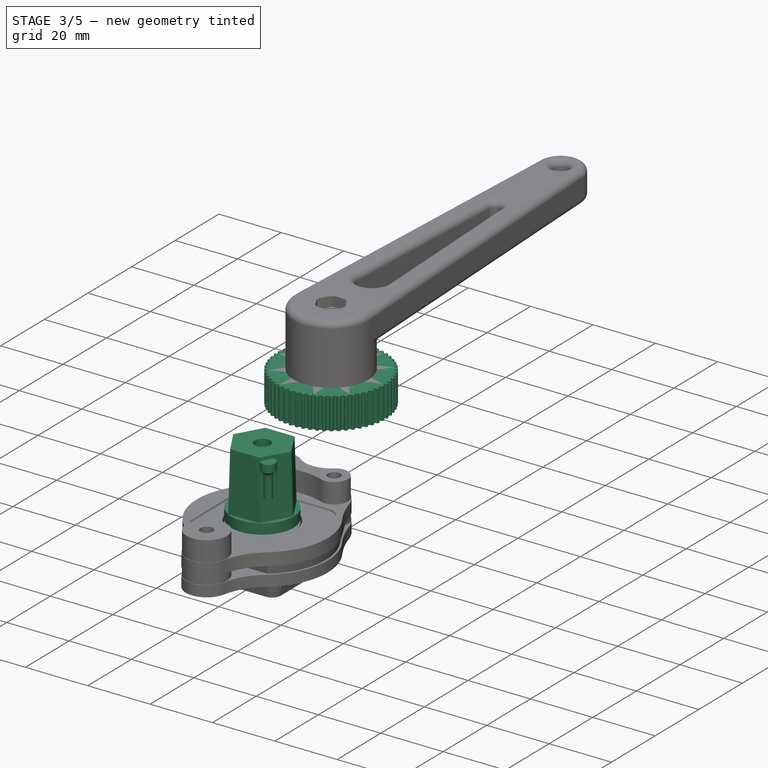
[diagram: stage 3 of 5 — iso view after this stage's code; geometry added in this stage tinted green]
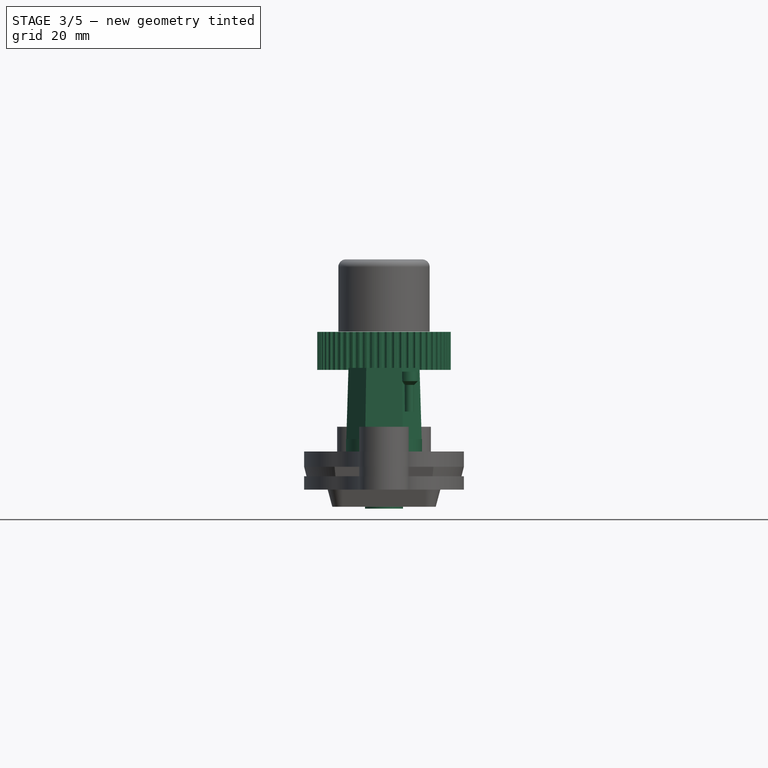
[diagram: stage 3 of 5 — front view after this stage's code; geometry added in this stage tinted green]
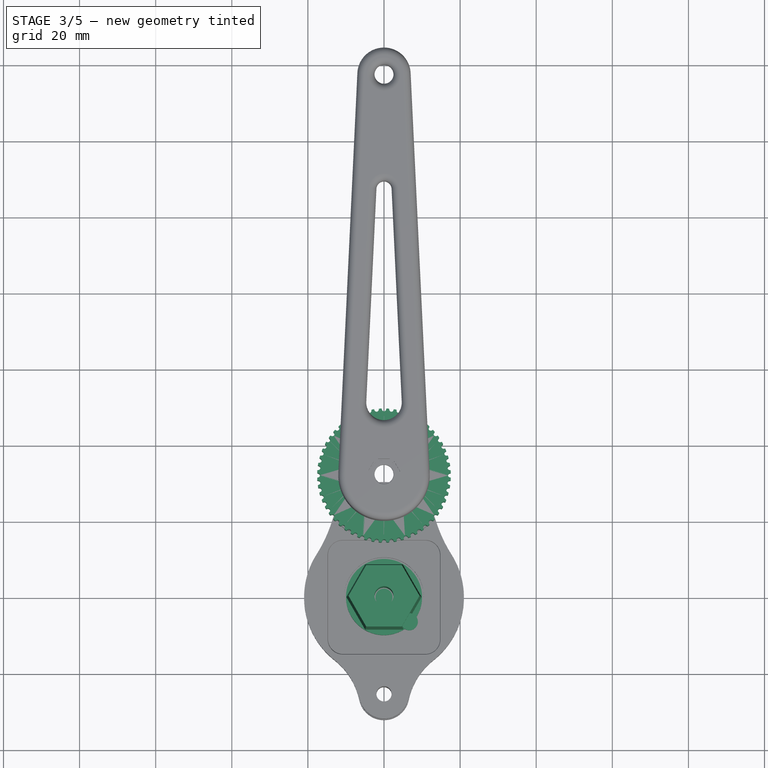
[diagram: stage 3 of 5 — top view after this stage's code; geometry added in this stage tinted green]
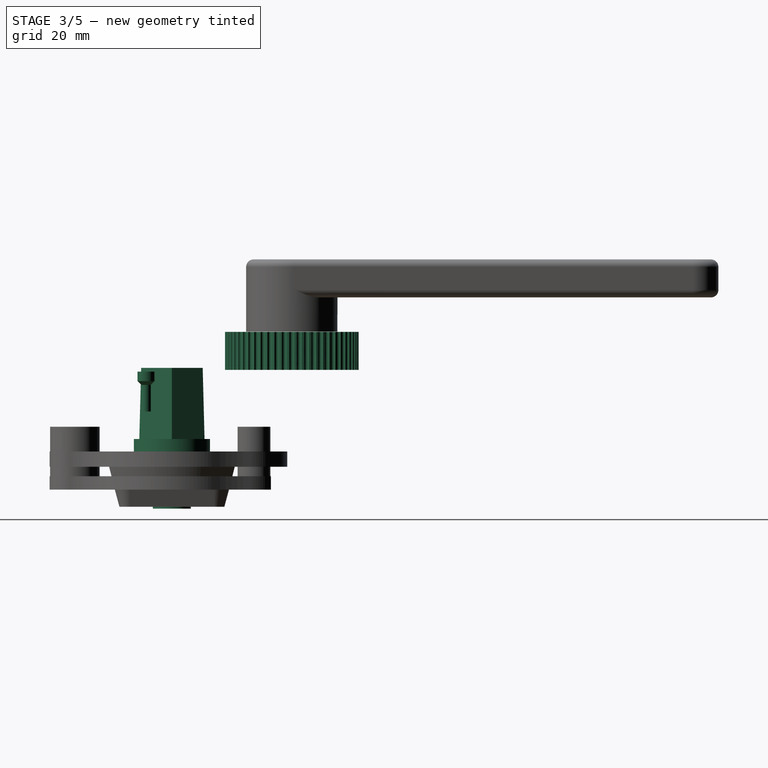
[diagram: stage 3 of 5 — right view after this stage's code; geometry added in this stage tinted green]
FEATURE [Part::Cylinder] Cylinder024
  Angle = 360
  AttacherType = Attacher::AttachEngine3D
  FirstAngle = 0
  Height = 2.5
  Placement = pos=(0,0,-2) rot=(0,0,1;0rad)
  Radius = 2.25
  SecondAngle = 0
FEATURE [Part::Cone] Cone006
  Angle = 360
  AttacherType = Attacher::AttachEngine3D
  Height = 1
  Placement = pos=(0,0,-3) rot=(0,0,1;0rad)
  Radius1 = 1.25
  Radius2 = 2.25
FEATURE [Part::Cylinder] Cylinder025
  Angle = 360
  AttacherType = Attacher::AttachEngine3D
  FirstAngle = 0
  Height = 8
  Placement = pos=(0,0,-10) rot=(0,0,1;0rad)
  Radius = 1.25
  SecondAngle = 0
FEATURE [Part::Cylinder] Cylinder026
  Angle = 360
  AttacherType = Attacher::AttachEngine3D
  FirstAngle = 0
  Height = 2.5
  Placement = pos=(0,0,-2) rot=(0,0,1;0rad)
  Radius = 2.25
  SecondAngle = 0
FEATURE [Part::MultiFuse] Fusion022  label="M2.5_16_003"
  Placement = pos=(6.65,-6.79,20.51) rot=(0,0,1;0rad)
  Refine = true
  Shapes = -> [Cone006,Cylinder025,Cylinder026]
FEATURE [Sketcher::SketchObject] Sketch004  label="SketchBottom"
  ArcFitTolerance = 1e-06
  AttachmentSupport = -> [XY_Plane003]
  FullyConstrained = true
  MakeInternals = false
  MapMode = 5
  sketch-geometry (13):
    g0: Circle [constr] CenterX=0 CenterY=0 CenterZ=0 NormalX=0 NormalY=0 NormalZ=1 AngleXU=0 Radius=6
    g1: Circle CenterX=-6 CenterY=0 CenterZ=0 NormalX=0 NormalY=0 NormalZ=1 AngleXU=0 Radius=1
    g2: Circle CenterX=6 CenterY=0 CenterZ=0 NormalX=0 NormalY=0 NormalZ=1 AngleXU=0 Radius=1
    g3: Circle CenterX=0 CenterY=-6 CenterZ=0 NormalX=0 NormalY=0 NormalZ=1 AngleXU=0 Radius=1
    g4: Circle CenterX=0 CenterY=6 CenterZ=0 NormalX=0 NormalY=0 NormalZ=1 AngleXU=0 Radius=1
    g5: Circle CenterX=0 CenterY=0 CenterZ=0 NormalX=0 NormalY=0 NormalZ=1 AngleXU=0 Radius=10
    g6: LineSegment StartX=4.00104 StartY=-2.31 StartZ=0 EndX=4.00104 EndY=2.31 EndZ=0
    g7: LineSegment StartX=4.00104 StartY=2.31 StartZ=0 EndX=1.1e-15 EndY=4.62 EndZ=0
    g8: LineSegment StartX=1.1e-15 StartY=4.62 StartZ=0 EndX=-4.00104 EndY=2.31 EndZ=0
    g9: LineSegment StartX=-4.00104 StartY=2.31 StartZ=0 EndX=-4.00104 EndY=-2.31 EndZ=0
    g10: LineSegment StartX=-4.00104 StartY=-2.31 StartZ=0 EndX=-7e-16 EndY=-4.62 EndZ=0
    g11: LineSegment StartX=-7e-16 StartY=-4.62 StartZ=0 EndX=4.00104 EndY=-2.31 EndZ=0
    g12: Circle [constr] CenterX=0 CenterY=0 CenterZ=0 NormalX=0 NormalY=0 NormalZ=1 AngleXU=0 Radius=4.62
  constraints (30):
    c: Coincident(g0,g-1)
    c: PointOnObject(g1,g0)
    c: PointOnObject(g1,g-1)
    c: Symmetric(g1,g2,g-2)
    c: Diameter(g1) = 2
    c: PointOnObject(g3,g-2)
    c: PointOnObject(g3,g0)
    c: Diameter(g0) = 12
    c: Equal(g1,g4)
    c: Equal(g4,g2)
    c: Equal(g2,g3)
    c: Symmetric(g4,g3,g-1)
    c: Coincident(g5,g0)
    c: Coincident(g6,g7)
    c: Coincident(g7,g8)
    c: Coincident(g8,g9)
    c: Coincident(g9,g10)
    c: Coincident(g10,g11)
    c: Coincident(g11,g6)
    c: Equal(g6, g7-g11) x5
    c: PointOnObject(g6,g12)
    c: PointOnObject(g7,g12)
    c: PointOnObject(g8,g12)
    c: PointOnObject(g9,g12)
    c: PointOnObject(g10,g12)
    c: PointOnObject(g11,g12)
    c: Coincident(g12,g0)
    c: Diameter(g12) = 9.24
    c: Vertical(g6)
    c: Diameter(g5) = 20
FEATURE [PartDesign::Pad] Pad002  label="BottomPad"
  Direction = (0,0,1)
  Length = 3.3
  Length2 = 10
  Profile = -> Sketch004
  ReferenceAxis = -> Sketch004 [N_Axis]
  Refine = true
  Suppressed = false
  Type = 0
FEATURE [PartDesign::Body] Body003  label="MagnetHolderBase"
  AllowCompound = false
  Group = -> [Sketch004,Pad002]
  Origin = -> Origin003
  Placement = pos=(0,0,-3) rot=(0,0,1;0rad)
  Tip = -> Pad002
FEATURE [Part::Feature] Part__Feature  label="ISO7046-M2x8_"
  Placement = pos=(0,6,-5.3) rot=(0,1,0;3.14159rad)
  shape: bbox 3.6 x 3.6 x 8 mm, 27 faces (baked)
FEATURE [Part::FeaturePython] BevelGear003  label="ShaftBevelGear003"  # WARN: FeaturePython — macro-defined, semantics opaque (R4)
  AttacherType = Attacher::AttachEngine3D
  Placement = pos=(0,0,21.5) rot=(0,0,1;0rad)
  angular_backlash = 0
  backlash = 0
  beta = 0
  clearance = 0.1
  dw = 15
  height = 22
  module = 1.5
  num_teeth = 10
  numpoints = 20
  pitch_angle = 2
  pressure_angle = 31
  reset_origin = true
  version = 1.3.0
  expr: angular_backlash = backlash / dw * 360 ° / pi
  expr: dw = num_teeth * module
FEATURE [Part::FeaturePython] BevelGear004  label="ShaftBevelGear004"  # WARN: FeaturePython — macro-defined, semantics opaque (R4)
  AttacherType = Attacher::AttachEngine3D
  Placement = pos=(0,0,21.4) rot=(0,0,1;0rad)
  angular_backlash = 0
  backlash = 0
  beta = 0
  clearance = 0.1
  dw = 15
  height = 22
  module = 1.5
  num_teeth = 10
  numpoints = 20
  pitch_angle = 2
  pressure_angle = 31
  reset_origin = true
  version = 1.3.0
  expr: angular_backlash = backlash / dw * 360 ° / pi
  expr: dw = num_teeth * module
FEATURE [Part::Cylinder] Cylinder028  label="LegBase002"
  Angle = 360
  AttacherType = Attacher::AttachEngine3D
  FirstAngle = 0
  Height = 11
  Placement = pos=(0,0,31.5) rot=(0,0,1;0rad)
  Radius = 12
  SecondAngle = 0
FEATURE [Part::Feature] Part__Feature005  label="ISO4017-M5x50_005"
  Placement = pos=(0,0,47.1) rot=(0,1,0;0rad)
  shape: bbox 9.238 x 9.238 x 53.5 mm, 21 faces (baked)
FEATURE [Part::MultiFuse] Fusion027  label="LegCut001"
  Refine = true
  Shapes = -> [BevelGear003,Part__Feature005]
FEATURE [Sketcher::SketchObject] Sketch008  label="LegSketch001"
  ArcFitTolerance = 1e-06
  AttachmentOffset = pos=(0,0,9.5) rot=(0,0,1;0rad)
  AttachmentSupport = -> [XY_Plane004]
  FullyConstrained = true
  MakeInternals = false
  MapMode = 2
  Placement = pos=(0,0,9.5) rot=(0,0,1;0rad)
  sketch-geometry (9):
    g0: ArcOfCircle CenterX=-2e-16 CenterY=0 CenterZ=0 NormalX=0 NormalY=0 NormalZ=1 AngleXU=0 Radius=12 StartAngle=3.09401 EndAngle=6.33077
    g1: Circle CenterX=-1.6e-15 CenterY=105.119 CenterZ=0 NormalX=0 NormalY=0 NormalZ=1 AngleXU=0 Radius=2.5
    g2: ArcOfCircle CenterX=-1.6e-15 CenterY=105.119 CenterZ=0 NormalX=0 NormalY=0 NormalZ=1 AngleXU=0 Radius=7 StartAngle=0.0475831 EndAngle=3.09401
    g3: LineSegment StartX=-11.9864 StartY=0.570782 StartZ=0 EndX=-6.99208 EndY=105.452 EndZ=0
    g4: LineSegment StartX=11.9864 StartY=0.570782 StartZ=0 EndX=6.99208 EndY=105.452 EndZ=0
    g5: ArcOfCircle CenterX=0 CenterY=75 CenterZ=0 NormalX=0 NormalY=0 NormalZ=1 AngleXU=0 Radius=2 StartAngle=0.0475831 EndAngle=3.09401
    g6: LineSegment StartX=-4.66471 StartY=19.0886 StartZ=0 EndX=-1.99774 EndY=75.0951 EndZ=0
    g7: LineSegment StartX=4.66471 StartY=19.0886 StartZ=0 EndX=1.99774 EndY=75.0951 EndZ=0
    g8: ArcOfCircle CenterX=-5.7e-15 CenterY=18.8665 CenterZ=0 NormalX=0 NormalY=0 NormalZ=1 AngleXU=0 Radius=4.67 StartAngle=3.09401 EndAngle=6.33077
  constraints (22):
    c: Radius(g0) = 12
    c: Symmetric(g0,g0,g-2)
    c: Diameter(g1) = 5
    c: Tangent(g2,g3) = 1.5708
    c: Tangent(g2,g4) = -1.5708
    c: Radius(g2) = 7
    c: Equal(g4,g3)
    c: Coincident(g1,g2)
    c: Coincident(g3,g0)
    c: Distance(g4) = 105
    c: DistanceY(g0) = 0
    c: Tangent(g5,g6) = 1.5708
    c: Tangent(g5,g7) = -1.5708
    c: Radius(g5) = 2
    c: DistanceY(g5) = 75
    c: PointOnObject(g5,g-2)
    c: Tangent(g4,g0) = -1.5708
    c: Parallel(g7,g4)
    c: Parallel(g6,g3)
    c: Radius(g8) = 4.67
    c: Tangent(g8,g6) = 1.5708
    c: Tangent(g8,g7) = -1.5708
FEATURE [PartDesign::Pad] Pad003
  Direction = (0,0,1)
  Length = 10
  Length2 = 10
  Profile = -> Sketch008
  ReferenceAxis = -> Sketch008 [N_Axis]
  Refine = true
  Suppressed = false
  Type = 0
FEATURE [PartDesign::Fillet] Fillet001
  Base = -> Pad003 [Edge1,Edge2,Edge3,Edge4,Edge5,Edge6,Edge7,Edge8,Edge9,Edge10,Edge11,Edge12,Edge13,Edge14,Edge15,Edge16,Edge17,Edge18,Edge19,Edge20,Edge21,Edge22,Edge23,Edge24,Edge25,Edge26,Edge27]
  BaseFeature = -> Pad003
  Radius = 2
  Refine = true
  SupportTransform = false
  Suppressed = false
  UseAllEdges = true
FEATURE [PartDesign::Body] Body004  label="Leg002"
  AllowCompound = false
  Group = -> [Sketch008,Pad003,Fillet001]
  Origin = -> Origin004
  Placement = pos=(0,0,31) rot=(0,0,1;0rad)
  Tip = -> Fillet001
FEATURE [Part::MultiFuse] Fusion026  label="LegGroup001"
  Refine = true
  Shapes = -> [Body004,Cylinder028]
FEATURE [Part::Cut] Cut006  label="LegOld001"
  Base = -> Fusion026
  Placement = pos=(0,31.5,0) rot=(0,0,1;0rad)
  Refine = true
  Tool = -> Fusion027
FEATURE [Part::FeaturePython] TimingGear003  label="LargePulley001"  # WARN: FeaturePython — macro-defined, semantics opaque (R4)
  AttacherType = Attacher::AttachEngine3D
  Placement = pos=(0,0,21.45) rot=(0,0,1;0rad)
  h = 0.75
  height = 10
  num_teeth = 56
  offset = 0.4
  pitch = 2
  r0 = 0.555
  r1 = 1
  rs = 0.15
  type = 0
  u = 0.254
  version = 1.3.0
FEATURE [Part::Cut] Cut007  label="LargeOld001"
  Base = -> TimingGear003
  Placement = pos=(0,31.5,0) rot=(0,0,1;0rad)
  Refine = true
  Tool = -> BevelGear004
FEATURE [Sketcher::SketchObject] Sketch009  label="ShaftHexagon"
  ArcFitTolerance = 1e-06
  AttachmentSupport = -> [XY_Plane005]
  FullyConstrained = true
  MakeInternals = false
  MapMode = 5
  sketch-geometry (7):
    g0: LineSegment StartX=10 StartY=2e-16 StartZ=0 EndX=5 EndY=8.66025 EndZ=0
    g1: LineSegment StartX=5 StartY=8.66025 StartZ=0 EndX=-5 EndY=8.66025 EndZ=0
    g2: LineSegment StartX=-5 StartY=8.66025 StartZ=0 EndX=-10 EndY=1.3e-15 EndZ=0
    g3: LineSegment StartX=-10 StartY=1.3e-15 StartZ=0 EndX=-5 EndY=-8.66025 EndZ=0
    g4: LineSegment StartX=-5 StartY=-8.66025 StartZ=0 EndX=5 EndY=-8.66025 EndZ=0
    g5: LineSegment StartX=5 StartY=-8.66025 StartZ=0 EndX=10 EndY=2e-16 EndZ=0
    g6: Circle [constr] CenterX=0 CenterY=0 CenterZ=0 NormalX=0 NormalY=0 NormalZ=1 AngleXU=0 Radius=10
  constraints (16):
    c: Coincident(g0,g1)
    c: Coincident(g1,g2)
    c: Coincident(g2,g3)
    c: Coincident(g3,g4)
    c: Coincident(g4,g5)
    c: Coincident(g5,g0)
    c: Equal(g0, g1-g5) x5
    c: PointOnObject(g0,g6)
    c: PointOnObject(g1,g6)
    c: PointOnObject(g2,g6)
    c: PointOnObject(g3,g6)
    c: PointOnObject(g4,g6)
    c: PointOnObject(g5,g6)
    c: Radius(g6) = 10
    c: Coincident(g6,g-1)
    c: PointOnObject(g5,g-1)
FEATURE [Sketcher::SketchObject] Sketch010  label="ShaftAxis"
  ArcFitTolerance = 1e-06
  AttachmentSupport = -> [XY_Plane005]
  FullyConstrained = true
  MakeInternals = false
  MapMode = 5
  sketch-geometry (1):
    g0: Circle CenterX=0 CenterY=0 CenterZ=0 NormalX=0 NormalY=0 NormalZ=1 AngleXU=0 Radius=2.5
  constraints (2):
    c: Diameter(g0) = 5
    c: Coincident(g0,g-1)
FEATURE [PartDesign::Pad] Pad004  label="ShaftHexagonPad"
  Direction = (0,0,1)
  Length = 22
  Length2 = 10
  Profile = -> Sketch009
  ReferenceAxis = -> Sketch009 [N_Axis]
  Refine = true
  Suppressed = false
  TaperAngle = -1.5
  Type = 0
FEATURE [PartDesign::Hole] Hole  label="HexagonHole"
  BaseFeature = -> Pad004
  CustomThreadClearance = 0
  Depth = 69.5068
  DepthType = 0
  Diameter = 5
  DrillForDepth = false
  DrillPoint = 1
  DrillPointAngle = 118
  HoleCutCountersinkAngle = 90
  HoleCutCustomValues = false
  HoleCutDepth = 0
  HoleCutDiameter = 6.1
  HoleCutType = 0
  ModelThread = false
  Profile = -> Sketch010
  Refine = true
  Reversed = true
  Suppressed = false
  Tapered = false
  TaperedAngle = 90
  ThreadClass = 0
  ThreadDepth = 69.5068
  ThreadDepthType = 0
  ThreadDirection = 0
  ThreadFit = 0
  ThreadSize = 0
  ThreadType = 0
  Threaded = false
  UseCustomThreadClearance = false
FEATURE [Sketcher::SketchObject] Sketch011
  ArcFitTolerance = 1e-06
  AttachmentSupport = -> [XY_Plane005]
  FullyConstrained = true
  MakeInternals = false
  MapMode = 5
  sketch-geometry (1):
    g0: Circle CenterX=0 CenterY=0 CenterZ=0 NormalX=0 NormalY=0 NormalZ=1 AngleXU=0 Radius=5
  constraints (3):
    c: Diameter(g0) = 10
    c: DistanceX(g0) = 0
    c: DistanceY(g0) = 0
FEATURE [PartDesign::Pad] Pad005  label="ShaftPad"
  BaseFeature = -> Hole
  Direction = (0,0,1)
  Length = 15
  Length2 = 10
  Profile = -> Sketch011
  ReferenceAxis = -> Sketch011 [N_Axis]
  Refine = true
  Reversed = true
  Suppressed = false
  Type = 0
FEATURE [PartDesign::Hole] Hole001  label="ShaftHole"
  BaseFeature = -> Pad005
  CustomThreadClearance = 0
  Depth = 25
  DepthType = 0
  Diameter = 5
  DrillForDepth = false
  DrillPoint = 1
  DrillPointAngle = 118
  HoleCutCountersinkAngle = 90
  HoleCutCustomValues = false
  HoleCutDepth = 0
  HoleCutDiameter = 6.1
  HoleCutType = 0
  ModelThread = false
  Profile = -> Sketch010
  Refine = true
  Suppressed = false
  Tapered = false
  TaperedAngle = 90
  ThreadClass = 0
  ThreadDepth = 25
  ThreadDepthType = 0
  ThreadDirection = 0
  ThreadFit = 0
  ThreadSize = 0
  ThreadType = 0
  Threaded = false
  UseCustomThreadClearance = false
FEATURE [PartDesign::Body] Body006  label="ShaftCutLeg"
  AllowCompound = false
  Group = -> [Sketch012,Sketch013,Pad006,Hole002,Sketch014,Pad007,Hole003]
  Origin = -> Origin006
  Placement = pos=(0,31.5,21.4) rot=(0,0,1;0rad)
  Tip = -> Hole003
FEATURE [Sketcher::SketchObject] Sketch015  label="ShaftHexagon002"
  ArcFitTolerance = 1e-06
  AttachmentSupport = -> [XY_Plane007]
  FullyConstrained = true
  MakeInternals = false
  MapMode = 5
  sketch-geometry (7):
    g0: LineSegment StartX=10 StartY=2e-16 StartZ=0 EndX=5 EndY=8.66025 EndZ=0
    g1: LineSegment StartX=5 StartY=8.66025 StartZ=0 EndX=-5 EndY=8.66025 EndZ=0
    g2: LineSegment StartX=-5 StartY=8.66025 StartZ=0 EndX=-10 EndY=1.3e-15 EndZ=0
    g3: LineSegment StartX=-10 StartY=1.3e-15 StartZ=0 EndX=-5 EndY=-8.66025 EndZ=0
    g4: LineSegment StartX=-5 StartY=-8.66025 StartZ=0 EndX=5 EndY=-8.66025 EndZ=0
    g5: LineSegment StartX=5 StartY=-8.66025 StartZ=0 EndX=10 EndY=2e-16 EndZ=0
    g6: Circle [constr] CenterX=0 CenterY=0 CenterZ=0 NormalX=0 NormalY=0 NormalZ=1 AngleXU=0 Radius=10
  constraints (16):
    c: Coincident(g0,g1)
    c: Coincident(g1,g2)
    c: Coincident(g2,g3)
    c: Coincident(g3,g4)
    c: Coincident(g4,g5)
    c: Coincident(g5,g0)
    c: Equal(g0, g1-g5) x5
    c: PointOnObject(g0,g6)
    c: PointOnObject(g1,g6)
    c: PointOnObject(g2,g6)
    c: PointOnObject(g3,g6)
    c: PointOnObject(g4,g6)
    c: PointOnObject(g5,g6)
    c: Radius(g6) = 10
    c: Coincident(g6,g-1)
    c: PointOnObject(g5,g-1)
FEATURE [PartDesign::Pad] Pad008  label="ShaftHexagonPad002"
  Direction = (0,0,1)
  Length = 22
  Length2 = 10
  Profile = -> Sketch015
  ReferenceAxis = -> Sketch015 [N_Axis]
  Refine = true
  Suppressed = false
  TaperAngle = -1.5
  Type = 0
FEATURE [Sketcher::SketchObject] Sketch016  label="ShaftAxis002"
  ArcFitTolerance = 1e-06
  AttachmentSupport = -> [XY_Plane007]
  FullyConstrained = true
  MakeInternals = false
  MapMode = 5
  sketch-geometry (1):
    g0: Circle CenterX=0 CenterY=0 CenterZ=0 NormalX=0 NormalY=0 NormalZ=1 AngleXU=0 Radius=2.5
  constraints (2):
    c: Diameter(g0) = 5
    c: Coincident(g0,g-1)
FEATURE [PartDesign::Hole] Hole004  label="HexagonHole002"
  BaseFeature = -> Pad008
  CustomThreadClearance = 0
  Depth = 69.5068
  DepthType = 0
  Diameter = 5
  DrillForDepth = false
  DrillPoint = 1
  DrillPointAngle = 118
  HoleCutCountersinkAngle = 90
  HoleCutCustomValues = false
  HoleCutDepth = 0
  HoleCutDiameter = 6.1
  HoleCutType = 0
  ModelThread = false
  Profile = -> Sketch016
  Refine = true
  Reversed = true
  Suppressed = false
  Tapered = false
  TaperedAngle = 90
  ThreadClass = 0
  ThreadDepth = 69.5068
  ThreadDepthType = 0
  ThreadDirection = 0
  ThreadFit = 0
  ThreadSize = 0
  ThreadType = 0
  Threaded = false
  UseCustomThreadClearance = false
FEATURE [Sketcher::SketchObject] Sketch017
  ArcFitTolerance = 1e-06
  AttachmentSupport = -> [XY_Plane007]
  FullyConstrained = true
  MakeInternals = false
  MapMode = 5
  sketch-geometry (1):
    g0: Circle CenterX=0 CenterY=0 CenterZ=0 NormalX=0 NormalY=0 NormalZ=1 AngleXU=0 Radius=5
  constraints (3):
    c: Diameter(g0) = 10
    c: DistanceX(g0) = 0
    c: DistanceY(g0) = 0
FEATURE [PartDesign::Pad] Pad009  label="ShaftPad002"
  BaseFeature = -> Hole004
  Direction = (0,0,1)
  Length = 15
  Length2 = 10
  Profile = -> Sketch017
  ReferenceAxis = -> Sketch017 [N_Axis]
  Refine = true
  Reversed = true
  Suppressed = false
  Type = 0
FEATURE [PartDesign::Hole] Hole005  label="ShaftHole002"
  BaseFeature = -> Pad009
  CustomThreadClearance = 0
  Depth = 25
  DepthType = 0
  Diameter = 5
  DrillForDepth = false
  DrillPoint = 1
  DrillPointAngle = 118
  HoleCutCountersinkAngle = 90
  HoleCutCustomValues = false
  HoleCutDepth = 0
  HoleCutDiameter = 6.1
  HoleCutType = 0
  ModelThread = false
  Profile = -> Sketch016
  Refine = true
  Suppressed = false
  Tapered = false
  TaperedAngle = 90
  ThreadClass = 0
  ThreadDepth = 25
  ThreadDepthType = 0
  ThreadDirection = 0
  ThreadFit = 0
  ThreadSize = 0
  ThreadType = 0
  Threaded = false
  UseCustomThreadClearance = false
FEATURE [Part::Cut] Cut008  label="Leg"
  Base = -> Fusion028
  Refine = true
  Tool = -> Fusion029
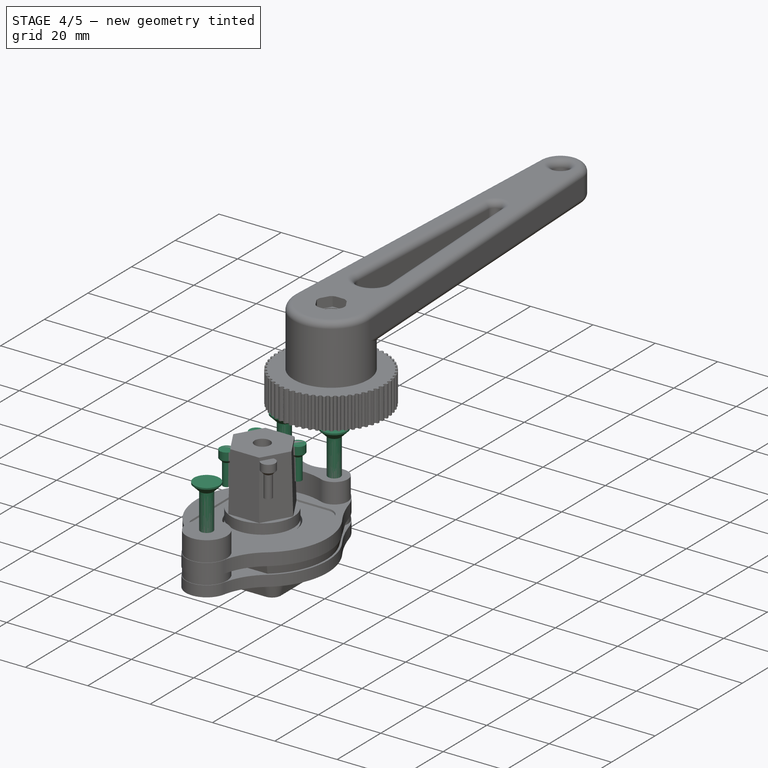
[diagram: stage 4 of 5 — iso view after this stage's code; geometry added in this stage tinted green]
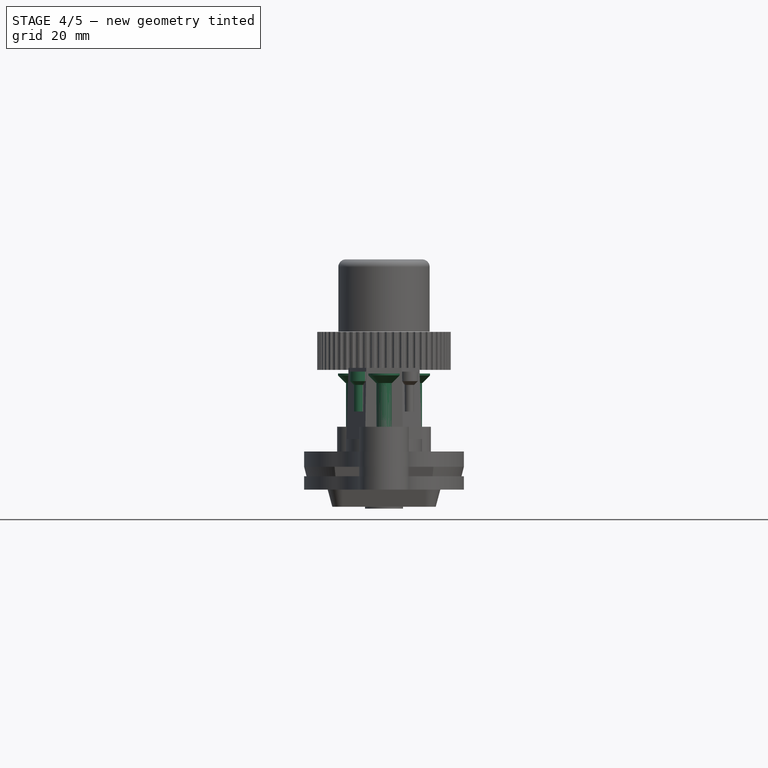
[diagram: stage 4 of 5 — front view after this stage's code; geometry added in this stage tinted green]
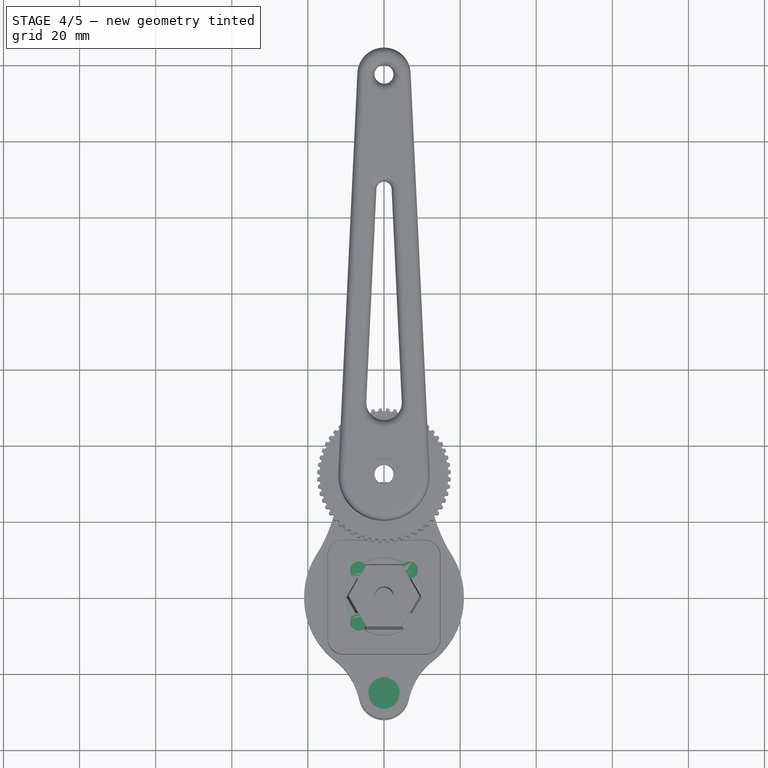
[diagram: stage 4 of 5 — top view after this stage's code; geometry added in this stage tinted green]
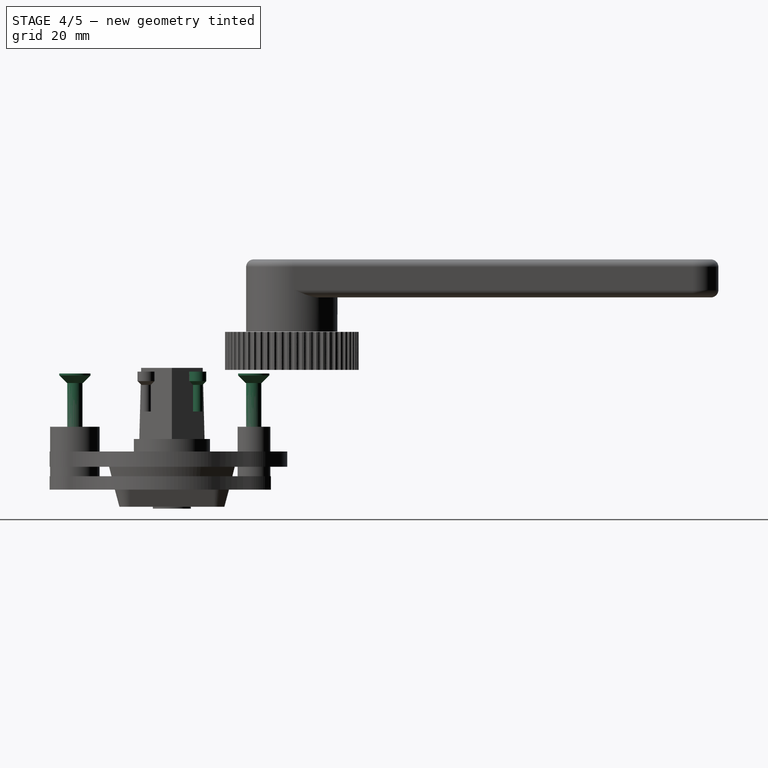
[diagram: stage 4 of 5 — right view after this stage's code; geometry added in this stage tinted green]
FEATURE [Part::Cone] Cone
  Angle = 360
  AttacherType = Attacher::AttachEngine3D
  Height = 2
  Placement = pos=(0,-25.5,18) rot=(0,0,1;0rad)
  Radius1 = 2.1
  Radius2 = 4.1
FEATURE [Part::Cylinder] Cylinder013  label="CylinderS"
  Angle = 360
  AttacherType = Attacher::AttachEngine3D
  FirstAngle = 0
  Height = 30
  Placement = pos=(0,-25.5,-9.5) rot=(0,0,1;0rad)
  Radius = 2
  SecondAngle = 0
FEATURE [Part::Cylinder] Cylinder014  label="CylinderH"
  Angle = 360
  AttacherType = Attacher::AttachEngine3D
  FirstAngle = 0
  Height = 0.5
  Placement = pos=(0,-25.5,20) rot=(0,0,1;0rad)
  Radius = 4.1
  SecondAngle = 0
FEATURE [Part::MultiFuse] Fusion014  label="M4x30_000"
  Placement = pos=(0,0,0.01) rot=(0,0,1;0rad)
  Refine = true
  Shapes = -> [Cylinder014,Cone,Cylinder013]
FEATURE [Part::Cone] Cone001
  Angle = 360
  AttacherType = Attacher::AttachEngine3D
  Height = 2
  Placement = pos=(0,-25.5,18) rot=(0,0,1;0rad)
  Radius1 = 2.1
  Radius2 = 4.1
FEATURE [Part::Cylinder] Cylinder015  label="CylinderS001"
  Angle = 360
  AttacherType = Attacher::AttachEngine3D
  FirstAngle = 0
  Height = 30
  Placement = pos=(0,-25.5,-9.5) rot=(0,0,1;0rad)
  Radius = 2
  SecondAngle = 0
FEATURE [Part::Cylinder] Cylinder016  label="CylinderH001"
  Angle = 360
  AttacherType = Attacher::AttachEngine3D
  FirstAngle = 0
  Height = 0.5
  Placement = pos=(0,-25.5,20) rot=(0,0,1;0rad)
  Radius = 4.1
  SecondAngle = 0
FEATURE [Part::MultiFuse] Fusion015  label="M4x30_001"
  Placement = pos=(8,47,0.01) rot=(0,0,1;0rad)
  Refine = true
  Shapes = -> [Cylinder016,Cone001,Cylinder015]
FEATURE [Part::Cone] Cone002
  Angle = 360
  AttacherType = Attacher::AttachEngine3D
  Height = 2
  Placement = pos=(0,-25.5,18) rot=(0,0,1;0rad)
  Radius1 = 2.1
  Radius2 = 4.1
FEATURE [Part::Cylinder] Cylinder017  label="CylinderS002"
  Angle = 360
  AttacherType = Attacher::AttachEngine3D
  FirstAngle = 0
  Height = 30
  Placement = pos=(0,-25.5,-9.5) rot=(0,0,1;0rad)
  Radius = 2
  SecondAngle = 0
FEATURE [Part::Cylinder] Cylinder018  label="CylinderH002"
  Angle = 360
  AttacherType = Attacher::AttachEngine3D
  FirstAngle = 0
  Height = 0.5
  Placement = pos=(0,-25.5,20) rot=(0,0,1;0rad)
  Radius = 4.1
  SecondAngle = 0
FEATURE [Part::MultiFuse] Fusion016  label="M4x30_002"
  Placement = pos=(-8,47,0.01) rot=(0,0,1;0rad)
  Refine = true
  Shapes = -> [Cylinder018,Cone002,Cylinder017]
FEATURE [Part::Cone] Cone003
  Angle = 360
  AttacherType = Attacher::AttachEngine3D
  Height = 1
  Placement = pos=(0,0,-3) rot=(0,0,1;0rad)
  Radius1 = 1.25
  Radius2 = 2.25
FEATURE [Part::Cylinder] Cylinder019
  Angle = 360
  AttacherType = Attacher::AttachEngine3D
  FirstAngle = 0
  Height = 8
  Placement = pos=(0,0,-10) rot=(0,0,1;0rad)
  Radius = 1.25
  SecondAngle = 0
FEATURE [Part::Cylinder] Cylinder020
  Angle = 360
  AttacherType = Attacher::AttachEngine3D
  FirstAngle = 0
  Height = 2.5
  Placement = pos=(0,0,-2) rot=(0,0,1;0rad)
  Radius = 2.25
  SecondAngle = 0
FEATURE [Part::MultiFuse] Fusion019  label="M2.5_16_000"
  Placement = pos=(-6.65,6.785,20.51) rot=(0,0,1;0rad)
  Refine = true
  Shapes = -> [Cone003,Cylinder019,Cylinder020]
FEATURE [Part::Cone] Cone004
  Angle = 360
  AttacherType = Attacher::AttachEngine3D
  Height = 1
  Placement = pos=(0,0,-3) rot=(0,0,1;0rad)
  Radius1 = 1.25
  Radius2 = 2.25
FEATURE [Part::Cylinder] Cylinder021
  Angle = 360
  AttacherType = Attacher::AttachEngine3D
  FirstAngle = 0
  Height = 8
  Placement = pos=(0,0,-10) rot=(0,0,1;0rad)
  Radius = 1.25
  SecondAngle = 0
FEATURE [Part::Cylinder] Cylinder022
  Angle = 360
  AttacherType = Attacher::AttachEngine3D
  FirstAngle = 0
  Height = 2.5
  Placement = pos=(0,0,-2) rot=(0,0,1;0rad)
  Radius = 2.25
  SecondAngle = 0
FEATURE [Part::MultiFuse] Fusion020  label="M2.5_16_001"
  Placement = pos=(6.65,6.785,20.51) rot=(0,0,1;0rad)
  Refine = true
  Shapes = -> [Cone004,Cylinder021,Cylinder022]
FEATURE [Part::Cone] Cone005
  Angle = 360
  AttacherType = Attacher::AttachEngine3D
  Height = 1
  Placement = pos=(0,0,-3) rot=(0,0,1;0rad)
  Radius1 = 1.25
  Radius2 = 2.25
FEATURE [Part::Cylinder] Cylinder023
  Angle = 360
  AttacherType = Attacher::AttachEngine3D
  FirstAngle = 0
  Height = 8
  Placement = pos=(0,0,-10) rot=(0,0,1;0rad)
  Radius = 1.25
  SecondAngle = 0
FEATURE [Part::MultiFuse] Fusion021  label="M2.5_16_002"
  Placement = pos=(-6.65,-6.79,20.51) rot=(0,0,1;0rad)
  Refine = true
  Shapes = -> [Cone005,Cylinder023,Cylinder024]
FEATURE [Part::MultiFuse] Fusion023  label="MotorScrews"
  Refine = true
  Shapes = -> [Fusion019,Fusion020,Fusion021,Fusion022]
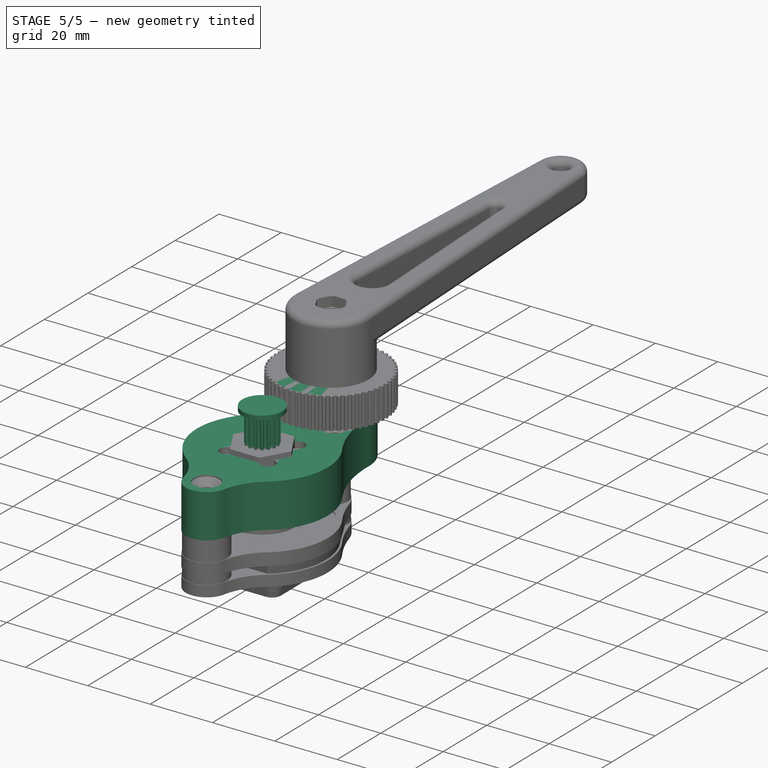
[diagram: stage 5 of 5 — iso view after this stage's code; geometry added in this stage tinted green]
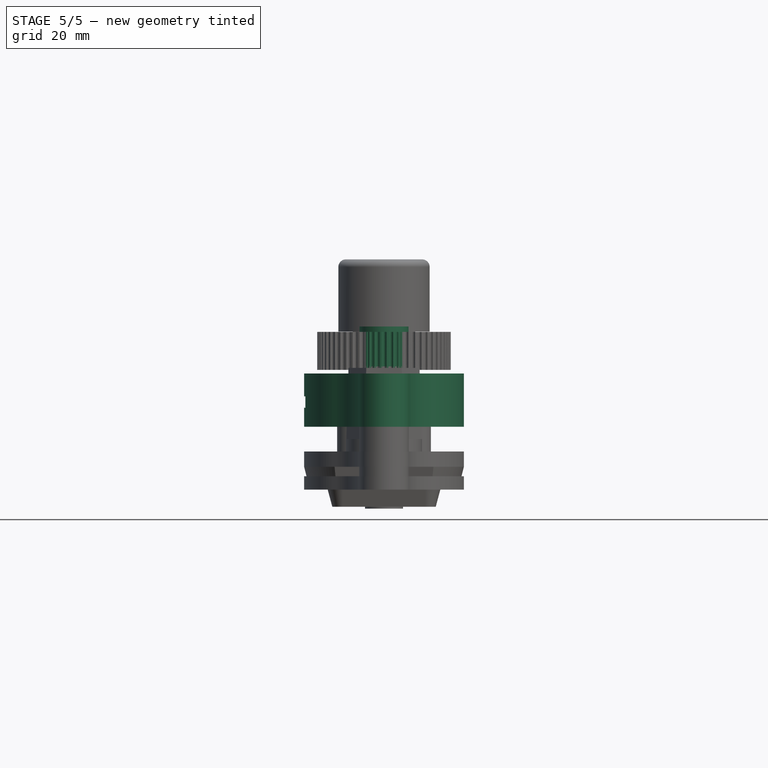
[diagram: stage 5 of 5 — front view after this stage's code; geometry added in this stage tinted green]
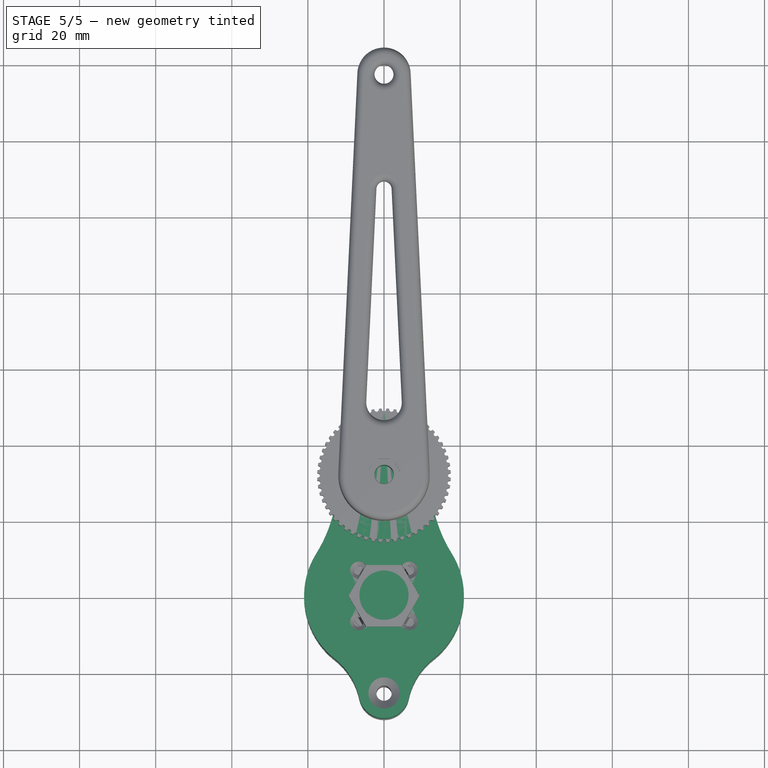
[diagram: stage 5 of 5 — top view after this stage's code; geometry added in this stage tinted green]
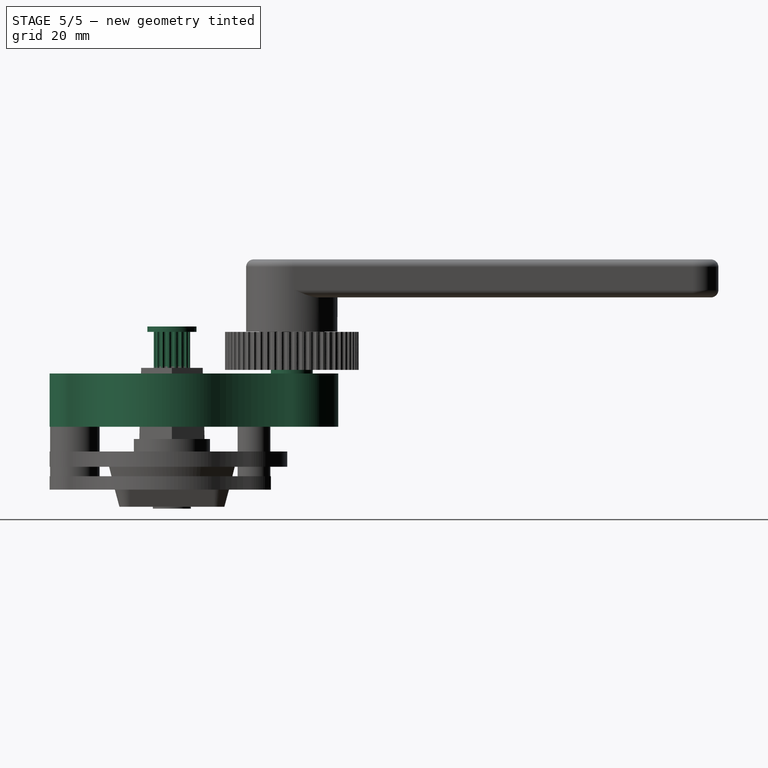
[diagram: stage 5 of 5 — right view after this stage's code; geometry added in this stage tinted green]
FEATURE [Part::Cylinder] Cylinder  label="motor_stator"
  Angle = 360
  AttacherType = Attacher::AttachEngine3D
  FirstAngle = 0
  Height = 3.3
  Placement = pos=(0,0,11) rot=(0,0,1;0rad)
  Radius = 17.2
  SecondAngle = 0
FEATURE [Part::Cylinder] Cylinder001  label="motor_hole"
  Angle = 360
  AttacherType = Attacher::AttachEngine3D
  FirstAngle = 0
  Height = 15.2
  Radius = 2.4
  SecondAngle = 0
FEATURE [Sketcher::SketchObject] Sketch001  label="SketchScrews"
  ArcFitTolerance = 1e-06
  AttachmentOffset = pos=(0,0,0) rot=(0,0,1;0.785398rad)
  AttachmentSupport = -> [Cylinder]
  FullyConstrained = true
  MakeInternals = false
  MapMode = 5
  Placement = pos=(0,0,14.3) rot=(0,0,1;0.785398rad)
  sketch-geometry (12):
    g0: LineSegment [constr] StartX=-8.03436 StartY=7.9 StartZ=0 EndX=-8.03436 EndY=-7.9 EndZ=0
    g1: LineSegment [constr] StartX=-8.03436 StartY=-7.9 StartZ=0 EndX=8.03436 EndY=-7.9 EndZ=0
    g2: LineSegment [constr] StartX=8.03436 StartY=-7.9 StartZ=0 EndX=8.03436 EndY=7.9 EndZ=0
    g3: LineSegment [constr] StartX=8.03436 StartY=7.9 StartZ=0 EndX=-8.03436 EndY=7.9 EndZ=0
    g4: LineSegment [constr] StartX=-5.53436 StartY=6.65 StartZ=0 EndX=-5.53436 EndY=-6.65 EndZ=0
    g5: LineSegment [constr] StartX=-5.53436 StartY=-6.65 StartZ=0 EndX=5.53436 EndY=-6.65 EndZ=0
    g6: LineSegment [constr] StartX=5.53436 StartY=-6.65 StartZ=0 EndX=5.53436 EndY=6.65 EndZ=0
    g7: LineSegment [constr] StartX=5.53436 StartY=6.65 StartZ=0 EndX=-5.53436 EndY=6.65 EndZ=0
    g8: Circle CenterX=-6.78436 CenterY=-6.65 CenterZ=0 NormalX=0 NormalY=0 NormalZ=1 AngleXU=0 Radius=1.25
    g9: Circle CenterX=-6.78436 CenterY=6.65 CenterZ=0 NormalX=0 NormalY=0 NormalZ=1 AngleXU=0 Radius=1.25
    g10: Circle CenterX=6.78436 CenterY=6.65 CenterZ=0 NormalX=0 NormalY=0 NormalZ=1 AngleXU=0 Radius=1.25
    g11: Circle CenterX=6.78436 CenterY=-6.65 CenterZ=0 NormalX=0 NormalY=0 NormalZ=1 AngleXU=0 Radius=1.25
  constraints (33):
    c: Coincident(g0,g1)
    c: Coincident(g1,g2)
    c: Coincident(g2,g3)
    c: Coincident(g3,g0)
    c: Vertical(g0)
    c: Vertical(g2)
    c: Horizontal(g1)
    c: Horizontal(g3)
    c: Symmetric(g0,g1,g-1)
    c: Coincident(g4,g5)
    c: Coincident(g5,g6)
    c: Coincident(g6,g7)
    c: Coincident(g7,g4)
    c: Vertical(g4)
    c: Vertical(g6)
    c: Horizontal(g5)
    c: Horizontal(g7)
    c: Symmetric(g4,g5,g-1)
    c: Diameter(g8) = 2.5
    c: Diameter(g9) = 2.5
    c: Diameter(g10) = 2.5
    c: Diameter(g11) = 2.5
    c: Symmetric(g8,g10,g-1)
    c: Symmetric(g8,g9,g-1)
    c: Symmetric(g11,g9,g-1)
    c: Tangent(g8,g1)
    c: Tangent(g11,g2)
    c: Tangent(g4,g8) = 1.5708
    c: DistanceY(g4,g4) = 13.3
    c: DistanceX(g7,g7) = 11.0687
    c: DistanceY(g11,g10) = 13.3
    c: Distance(g11,g9) = 19
    c: DistanceY(g-1,g10) = 6.65
FEATURE [Part::FeaturePython] TimingGear  # WARN: FeaturePython — macro-defined, semantics opaque (R4)
  AttacherType = Attacher::AttachEngine3D
  Placement = pos=(0,0,21.45) rot=(0,0,1;0rad)
  h = 0.75
  height = 10
  num_teeth = 16
  offset = 0.4
  pitch = 2
  r0 = 0.555
  r1 = 1
  rs = 0.15
  type = 0
  u = 0.254
  version = 1.3.0
FEATURE [Part::Cylinder] Cylinder002  label="Cylinder"
  Angle = 360
  AttacherType = Attacher::AttachEngine3D
  FirstAngle = 0
  Height = 7.4
  Placement = pos=(0,0,14) rot=(0,0,1;0rad)
  Radius = 6.45
  SecondAngle = 0
FEATURE [Part::Cylinder] Cylinder003
  Angle = 360
  AttacherType = Attacher::AttachEngine3D
  FirstAngle = 0
  Height = 1.4
  Placement = pos=(0,0,31.45) rot=(0,0,1;0rad)
  Radius = 6.45
  SecondAngle = 0
FEATURE [Sketcher::SketchObject] Sketch  label="HipSketch"
  ArcFitTolerance = 1e-06
  AttachmentOffset = pos=(0,0,14) rot=(0,0,1;0rad)
  AttachmentSupport = -> [XY_Plane]
  FullyConstrained = true
  MakeInternals = false
  MapMode = 5
  Placement = pos=(0,0,14) rot=(0,0,1;0rad)
  sketch-geometry (11):
    g0: Circle CenterX=-1e-16 CenterY=0 CenterZ=0 NormalX=0 NormalY=0 NormalZ=1 AngleXU=0 Radius=6.5
    g1: ArcOfCircle CenterX=0 CenterY=31.5 CenterZ=0 NormalX=0 NormalY=0 NormalZ=1 AngleXU=0 Radius=12.21 StartAngle=6.2671 EndAngle=9.44087
    g2: ArcOfCircle CenterX=-49.2036 CenterY=30.7083 CenterZ=0 NormalX=0 NormalY=0 NormalZ=1 AngleXU=0 Radius=37 StartAngle=5.72523 EndAngle=6.29927
    g3: ArcOfCircle CenterX=49.2036 CenterY=30.7083 CenterZ=0 NormalX=0 NormalY=0 NormalZ=1 AngleXU=0 Radius=37 StartAngle=3.1255 EndAngle=3.69955
    g4: Circle CenterX=0 CenterY=31.5 CenterZ=0 NormalX=0 NormalY=0 NormalZ=1 AngleXU=0 Radius=2.5
    g5: Circle CenterX=-2e-16 CenterY=-25.5 CenterZ=0 NormalX=0 NormalY=0 NormalZ=1 AngleXU=0 Radius=2
    g6: ArcOfCircle CenterX=-2e-16 CenterY=-25.5 CenterZ=0 NormalX=0 NormalY=0 NormalZ=1 AngleXU=0 Radius=6.65 StartAngle=3.35275 EndAngle=6.07203
    g7: ArcOfCircle CenterX=24.1221 CenterY=-30.6706 CenterZ=0 NormalX=0 NormalY=0 NormalZ=1 AngleXU=0 Radius=18.02 StartAngle=2.23724 EndAngle=2.93044
    g8: ArcOfCircle CenterX=-24.1221 CenterY=-30.6706 CenterZ=0 NormalX=0 NormalY=0 NormalZ=1 AngleXU=0 Radius=18.02 StartAngle=0.211157 EndAngle=0.904349
    g9: ArcOfCircle CenterX=-1e-16 CenterY=0 CenterZ=0 NormalX=0 NormalY=0 NormalZ=1 AngleXU=0 Radius=21 StartAngle=2.58364 EndAngle=4.04594
    g10: ArcOfCircle CenterX=-1e-16 CenterY=0 CenterZ=0 NormalX=0 NormalY=0 NormalZ=1 AngleXU=0 Radius=21 StartAngle=5.37884 EndAngle=6.84114
  constraints (26):
    c: Symmetric(g1,g1,g-2)
    c: Tangent(g2,g1) = 1.5708
    c: Tangent(g3,g1) = 1.5708
    c: DistanceY(g1) = 31.5
    c: Radius(g4) = 2.5
    c: Coincident(g4,g1)
    c: Diameter(g5) = 4
    c: Coincident(g6,g5)
    c: Symmetric(g6,g6,g-2)
    c: Radius(g6) = 6.65
    c: Symmetric(g8,g7,g-2)
    c: DistanceY(g5) = -25.5
    c: Tangent(g6,g7) = 1.5708
    c: Tangent(g6,g8) = 1.5708
    c: Radius(g7) = 18.02
    c: Coincident(g9,g0)
    c: Coincident(g10,g0)
    c: Tangent(g9,g2) = 1.5708
    c: Tangent(g10,g3) = 1.5708
    c: Tangent(g7,g10) = 1.5708
    c: Tangent(g8,g9) = 1.5708
    c: Radius(g1) = 12.21
    c: Radius(g9) = 21
    c: Radius(g2) = 37
    c: DistanceY(g0) = 0
    c: Diameter(g0) = 13
FEATURE [Part::MultiFuse] Fusion  label="Small"
  Refine = true
  Shapes = -> [Cylinder002,TimingGear,Cylinder003]
FEATURE [Part::Cylinder] Cylinder004  label="Bearing1"
  Angle = 360
  AttacherType = Attacher::AttachEngine3D
  FirstAngle = 0
  Height = 3.9
  Placement = pos=(0,0,16.7) rot=(0,0,1;0rad)
  Radius = 7.5
  SecondAngle = 0
FEATURE [Part::Cylinder] Cylinder007  label="Bearing2"
  Angle = 360
  AttacherType = Attacher::AttachEngine3D
  FirstAngle = 0
  Height = 3.9
  Placement = pos=(0,0,6.5) rot=(0,0,1;0rad)
  Radius = 7.5
  SecondAngle = 0
FEATURE [Sketcher::SketchObject] Sketch003  label="LegSketch"
  ArcFitTolerance = 1e-06
  AttachmentOffset = pos=(0,0,9.5) rot=(0,0,1;0rad)
  AttachmentSupport = -> [XY_Plane002]
  FullyConstrained = true
  MakeInternals = false
  MapMode = 2
  Placement = pos=(0,0,9.5) rot=(0,0,1;0rad)
  sketch-geometry (9):
    g0: ArcOfCircle CenterX=-2e-16 CenterY=0 CenterZ=0 NormalX=0 NormalY=0 NormalZ=1 AngleXU=0 Radius=12 StartAngle=3.09401 EndAngle=6.33077
    g1: Circle CenterX=-1.6e-15 CenterY=105.119 CenterZ=0 NormalX=0 NormalY=0 NormalZ=1 AngleXU=0 Radius=2.5
    g2: ArcOfCircle CenterX=-1.6e-15 CenterY=105.119 CenterZ=0 NormalX=0 NormalY=0 NormalZ=1 AngleXU=0 Radius=7 StartAngle=0.0475831 EndAngle=3.09401
    g3: LineSegment StartX=-11.9864 StartY=0.570782 StartZ=0 EndX=-6.99208 EndY=105.452 EndZ=0
    g4: LineSegment StartX=11.9864 StartY=0.570782 StartZ=0 EndX=6.99208 EndY=105.452 EndZ=0
    g5: ArcOfCircle CenterX=0 CenterY=75 CenterZ=0 NormalX=0 NormalY=0 NormalZ=1 AngleXU=0 Radius=2 StartAngle=0.0475831 EndAngle=3.09401
    g6: LineSegment StartX=-4.66471 StartY=19.0886 StartZ=0 EndX=-1.99774 EndY=75.0951 EndZ=0
    g7: LineSegment StartX=4.66471 StartY=19.0886 StartZ=0 EndX=1.99774 EndY=75.0951 EndZ=0
    g8: ArcOfCircle CenterX=-5.7e-15 CenterY=18.8665 CenterZ=0 NormalX=0 NormalY=0 NormalZ=1 AngleXU=0 Radius=4.67 StartAngle=3.09401 EndAngle=6.33077
  constraints (22):
    c: Radius(g0) = 12
    c: Symmetric(g0,g0,g-2)
    c: Diameter(g1) = 5
    c: Tangent(g2,g3) = 1.5708
    c: Tangent(g2,g4) = -1.5708
    c: Radius(g2) = 7
    c: Equal(g4,g3)
    c: Coincident(g1,g2)
    c: Coincident(g3,g0)
    c: Distance(g4) = 105
    c: DistanceY(g0) = 0
    c: Tangent(g5,g6) = 1.5708
    c: Tangent(g5,g7) = -1.5708
    c: Radius(g5) = 2
    c: DistanceY(g5) = 75
    c: PointOnObject(g5,g-2)
    c: Tangent(g4,g0) = -1.5708
    c: Parallel(g7,g4)
    c: Parallel(g6,g3)
    c: Radius(g8) = 4.67
    c: Tangent(g8,g6) = 1.5708
    c: Tangent(g8,g7) = -1.5708
FEATURE [Part::Feature] Part__Feature002  label="ISO4017-M5x50_002"
  Placement = pos=(0,31.5,47.1) rot=(0,1,0;0rad)
  shape: bbox 9.238 x 9.238 x 53.5 mm, 21 faces (baked)
FEATURE [Part::FeaturePython] BevelGear  label="ShaftBevelGear"  # WARN: FeaturePython — macro-defined, semantics opaque (R4)
  AttacherType = Attacher::AttachEngine3D
  Placement = pos=(0,32,21.5) rot=(0,0,1;0rad)
  angular_backlash = 0
  backlash = 0
  beta = 0
  clearance = 0.1
  dw = 15
  height = 22
  module = 1.5
  num_teeth = 10
  numpoints = 20
  pitch_angle = 2
  pressure_angle = 31
  reset_origin = true
  version = 1.3.0
  expr: angular_backlash = backlash / dw * 360 ° / pi
  expr: dw = num_teeth * module
FEATURE [Part::Cylinder] Cylinder008  label="PulleyBase1"
  Angle = 360
  AttacherType = Attacher::AttachEngine3D
  FirstAngle = 0
  Height = 1
  Placement = pos=(0,32,20.5) rot=(0,0,1;0rad)
  Radius = 5.5
  SecondAngle = 0
FEATURE [Part::Cylinder] Cylinder009  label="PulleyBase2"
  Angle = 360
  AttacherType = Attacher::AttachEngine3D
  FirstAngle = 0
  Height = 15
  Placement = pos=(0,32,6.5) rot=(0,0,1;0rad)
  Radius = 5
  SecondAngle = 0
FEATURE [Part::Cylinder] Cylinder010  label="BearingAxis"
  Angle = 360
  AttacherType = Attacher::AttachEngine3D
  FirstAngle = 0
  Height = 15
  Placement = pos=(0,0,6) rot=(0,0,1;0rad)
  Radius = 5.06
  SecondAngle = 0
FEATURE [Part::MultiFuse] Fusion007  label="Bearings"
  Placement = pos=(0,31.5,0) rot=(0,0,1;0rad)
  Refine = true
  Shapes = -> [Cylinder004,Cylinder007,Cylinder010]
FEATURE [PartDesign::Body] Body002  label="Leg1"
  AllowCompound = false
  Group = -> [Sketch003,Pad001,Fillet]
  Origin = -> Origin002
  Placement = pos=(0,31.5,31) rot=(0,0,1;0rad)
  Tip = -> Fillet
FEATURE [Part::MultiFuse] Fusion009  label="PulleyGroup"
  Refine = true
  Shapes = -> [Cylinder008,Cylinder009,BevelGear]
FEATURE [Part::Feature] Part__Feature004  label="ISO4017-M5x50_004"
  Placement = pos=(0,32,47.1) rot=(0,1,0;0rad)
  shape: bbox 9.238 x 9.238 x 53.5 mm, 21 faces (baked)
FEATURE [Part::Cut] Cut001  label="PulleyShaft"
  Base = -> Fusion009
  Placement = pos=(0,-0.5,0) rot=(0,0,1;0rad)
  Refine = true
  Tool = -> Part__Feature004
FEATURE [Part::FeaturePython] TimingGear002  label="LargePulley"  # WARN: FeaturePython — macro-defined, semantics opaque (R4)
  AttacherType = Attacher::AttachEngine3D
  Placement = pos=(0,31.5,21.45) rot=(0,0,1;0rad)
  h = 0.75
  height = 10
  num_teeth = 56
  offset = 0.4
  pitch = 2
  r0 = 0.555
  r1 = 1
  rs = 0.15
  type = 0
  u = 0.254
  version = 1.3.0
FEATURE [PartDesign::Pad] Pad
  Direction = (0,0,1)
  Length = 14
  Length2 = 10
  Profile = -> Sketch
  ReferenceAxis = -> Sketch [N_Axis]
  Refine = true
  Suppressed = false
  Type = 0
FEATURE [PartDesign::Body] Body  label="HipPad"
  AllowCompound = false
  Group = -> [Sketch,Pad]
  Origin = -> Origin
  Placement = pos=(0,0,-7.5) rot=(0,0,1;0rad)
  Tip = -> Pad
FEATURE [Part::Cylinder] Cylinder012  label="motor_rotor"
  Angle = 360
  AttacherType = Attacher::AttachEngine3D
  FirstAngle = 0
  Height = 11.1
  Radius = 18
  SecondAngle = 0
FEATURE [Part::MultiFuse] Fusion011  label="motor"
  Refine = true
  Shapes = -> [Cylinder012,Cylinder]
FEATURE [Part::Box] Box  label="Wires"
  AttacherType = Attacher::AttachEngine3D
  Height = 3
  Length = 10
  Placement = pos=(-23,-3.8,11.5) rot=(0,0,1;0rad)
  Width = 8
FEATURE [Part::Cut] Cut  label="Motor"
  Base = -> Fusion011
  Refine = true
  Tool = -> Cylinder001
FEATURE [Part::MultiFuse] Fusion017  label="HipScrews"
  Refine = true
  Shapes = -> [Fusion014,Fusion015,Fusion016]
FEATURE [Part::MultiFuse] Fusion024  label="HipCut"
  Refine = true
  Shapes = -> [Fusion023,Fusion017,Cut,Box,Fusion007]
FEATURE [Part::Cut] Cut004  label="Hip"
  Base = -> Body
  Refine = true
  Tool = -> Fusion024
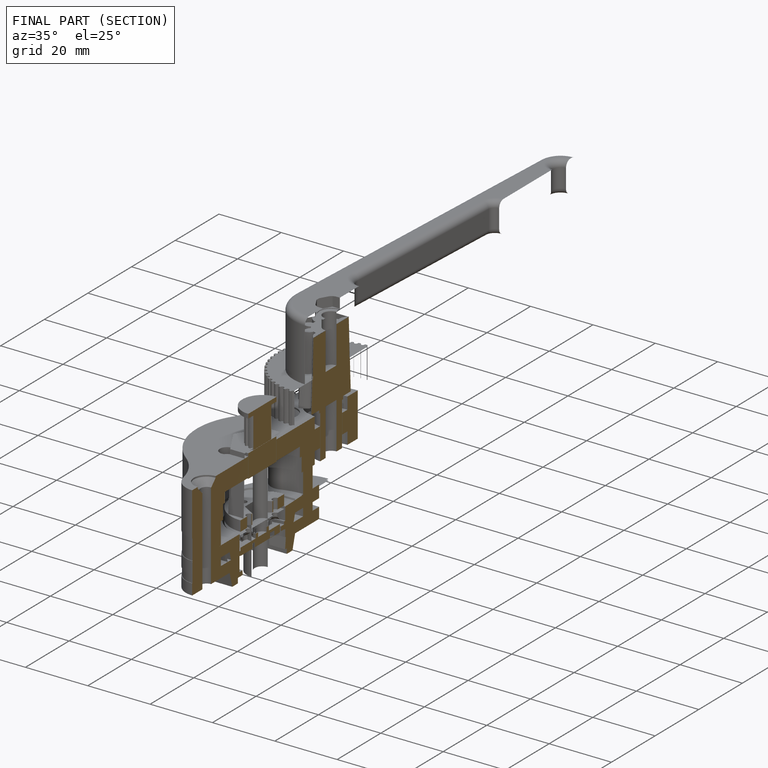
[diagram: finished part — half-section view (interior)]
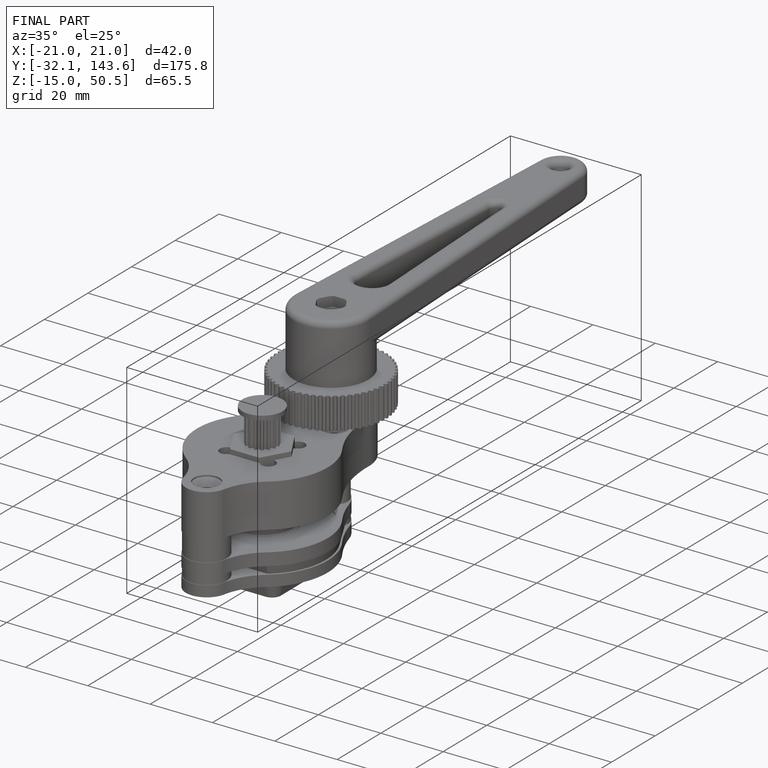
[diagram: finished part — iso view with bounding-box wireframe]
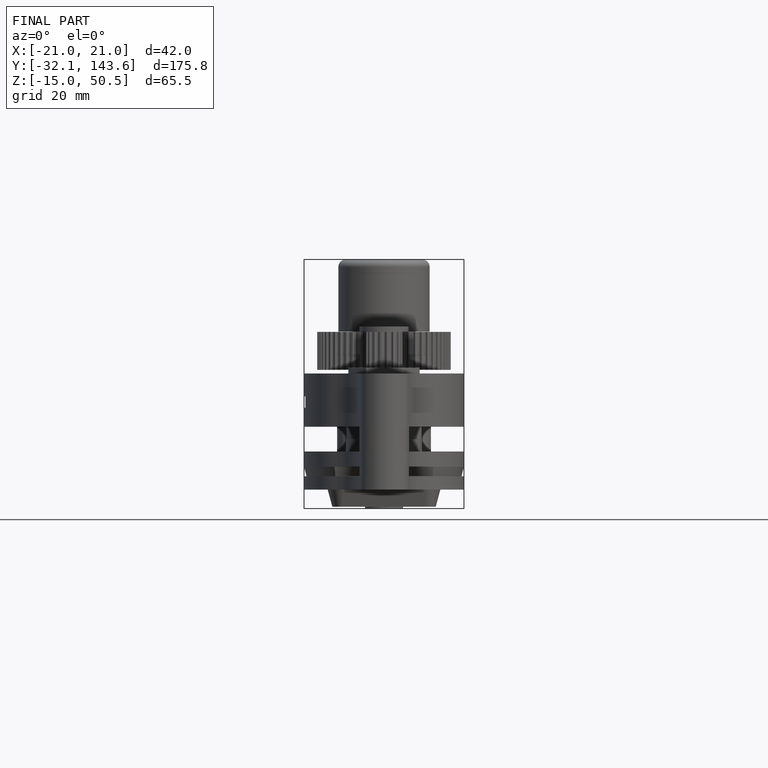
[diagram: finished part — front view with bounding-box wireframe]
